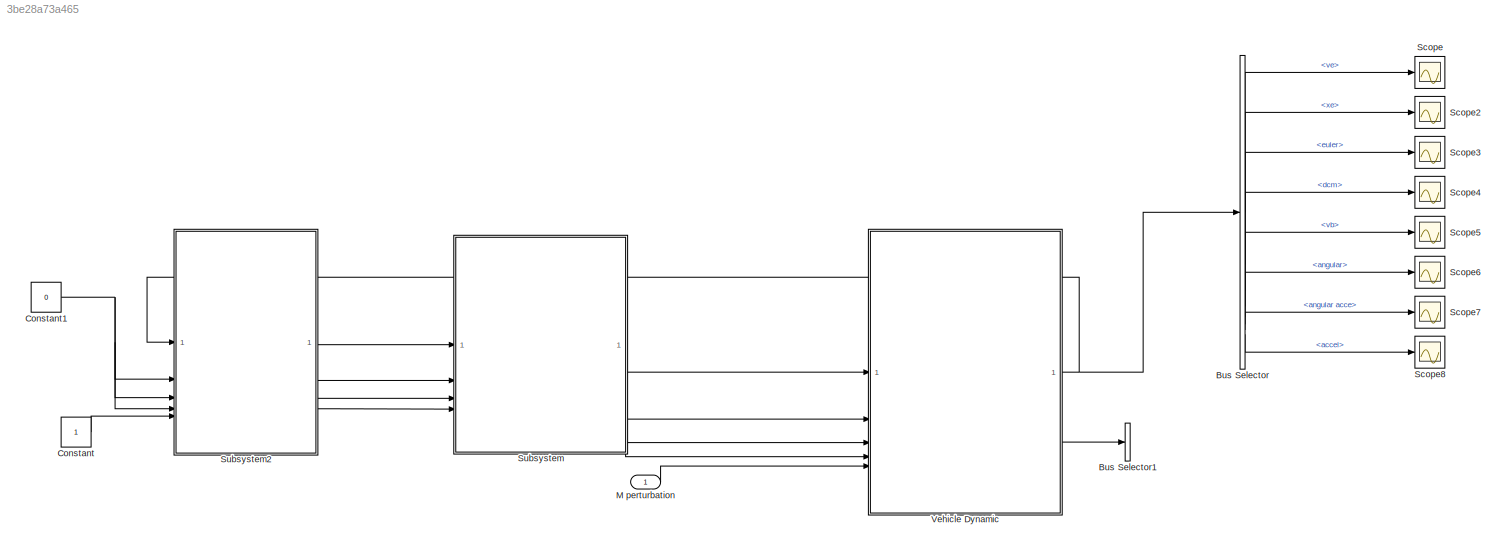
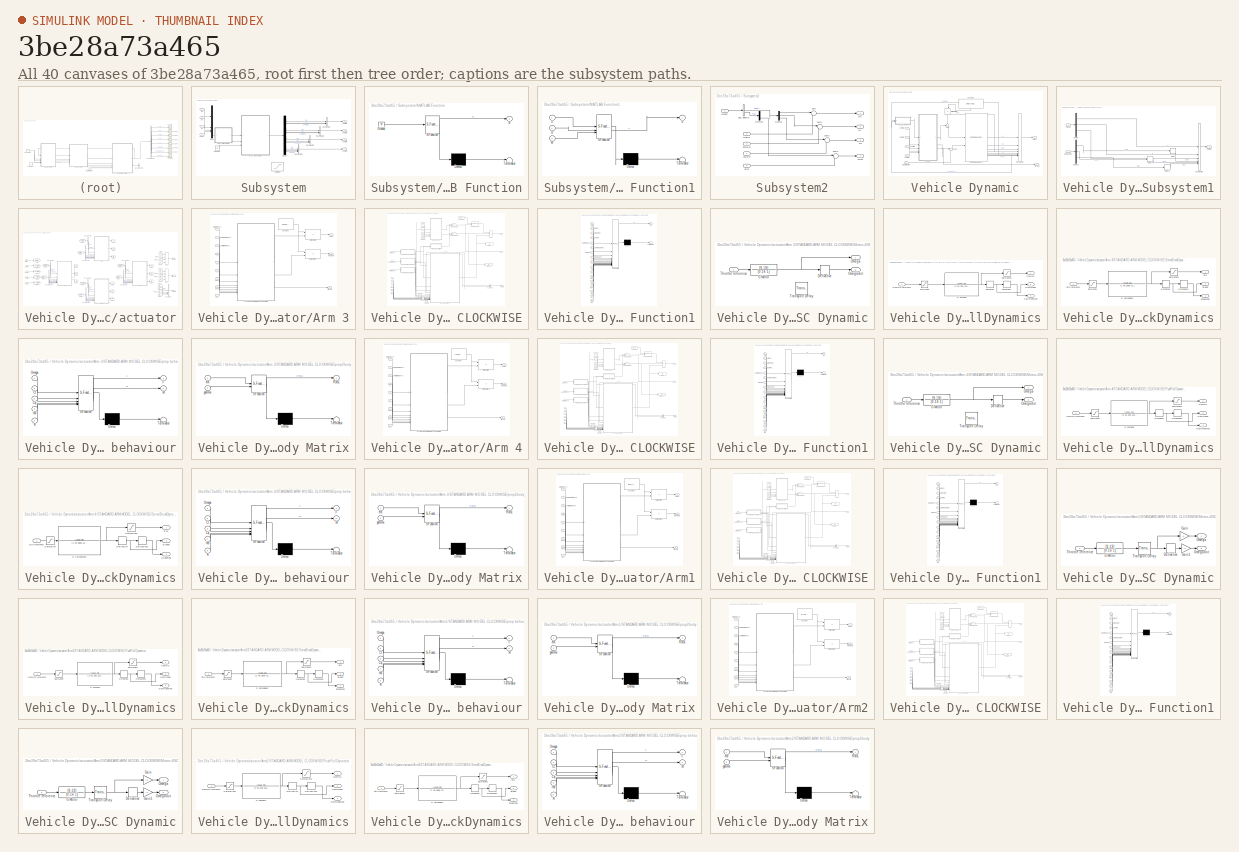
[diagram: thumbnail index - all 40 canvases of the model, root first then tree order]
MODEL slx_3be28a73a465
KIND model
CONFIG AbsTol = auto
CONFIG EnableMultiTasking = off
CONFIG FixedStep = auto
CONFIG MaxStep = auto
CONFIG MinStep = auto
CONFIG RelTol = 1e-4
CONFIG SampleTimeConstraint = Unconstrained
CONFIG SolverName = ode15s
CONFIG StartTime = 0.0
CONFIG StopTime = 10
BLOCK [BusSelector] Bus Selector
  OutputSignals = ve,xe,euler,dcm,vb,angular,angular acce,accel
BLOCK [BusSelector] Bus Selector1
  OutputSignals = signal1,signal2
BLOCK [Constant] Constant
BLOCK [Constant] Constant1
  Value = 0
BLOCK [Inport] M perturbation
BLOCK [Scope] Scope
  ActiveDisplayYMaximum = 158.14211469770717
  ActiveDisplayYMinimum = -12.600361564793616
  Floating = off
  GraphicalSettings = {"AxesScalingProperties":{"AlignXAxis":"Center","AlignYAxis":"Center","AutoScaleXAxisLimits":false,"AxesScaling":"Manual","AxesScalingNumUpdates":10,"ExpandOnly":true,"ScaleAxesLimitsAtStop":false,"XAxisDataRange":100,"YAxisDataRange":80},"DisplayProperties":{"ColorOrder":["auto","auto","auto","auto","auto","auto","auto","auto","auto","auto","auto","auto","auto","auto","auto","auto","auto","auto",...<+2136ch>
  MultipleDisplayCache = [{"MaxYLimMag":202.34980101644618,"MaxYLimReal":158.14211469770717,"MinYLimMag":0,"MinYLimReal":-12.600361564793616,"PlotAsMagnitudePhase":false,"ShowGrid":true,"ShowLegend":false,"Title":"%<SignalLabel>","YLabel":""}]
  NumInputPorts = 1
  ScopeFrameLocation = window
  WasSavedAsWebScope = on
  WindowPosition = [680.000000,330.000000,560.000000,420.000000,]
BLOCK [Scope] Scope2
  ActiveDisplayYMaximum = 2044.3378889341363
  ActiveDisplayYMinimum = -253.65470239682742
  DataLoggingVariableName = ScopeData2
  Floating = off
  GraphicalSettings = {"Style":{"BackgroundColor":[0.12941176470588237,0.12941176470588237,0.12941176470588237],"AxesColor":[0.07058823529411765,0.07058823529411765,0.07058823529411765],"LabelsColor":[0.8509803921568627,0.8509803921568627,0.8509803921568627],"PreserveColors":false,"Visible":[true,true,true],"LineStyle":["-","-","-"],"LineWidth":[1.5,1.5,1.5],"BarWidth":[0.9,0.9,0.9],"LineColor":["auto","auto","auto"],"...<+2125ch>
  MultipleDisplayCache = [{"MaxYLimMag":2044.3378889341363,"MaxYLimReal":2044.3378889341363,"MinYLimMag":0,"MinYLimReal":-253.65470239682742,"PlotAsMagnitudePhase":false,"ShowGrid":true,"ShowLegend":false,"Title":"%<SignalLabel>","YLabel":""}]
  NumInputPorts = 1
  ScopeFrameLocation = window
  WasSavedAsWebScope = on
  WindowPosition = [680.000000,330.000000,560.000000,420.000000,]
BLOCK [Scope] Scope3
  ActiveDisplayYMaximum = 3.6702175311661223
  ActiveDisplayYMinimum = -3.8093227520417652
  DataLoggingVariableName = ScopeData3
  Floating = off
  GraphicalSettings = {"Style":{"BackgroundColor":[0.12941176470588237,0.12941176470588237,0.12941176470588237],"AxesColor":[0.07058823529411765,0.07058823529411765,0.07058823529411765],"LabelsColor":[0.8509803921568627,0.8509803921568627,0.8509803921568627],"PreserveColors":false,"Visible":[true,true,true],"LineStyle":["-","-","-"],"LineWidth":[1.5,1.5,1.5],"BarWidth":[0.9,0.9,0.9],"LineColor":["auto","auto","auto"],"...<+2898ch>
  LayoutDimensionsString = [3,1]
  MultipleDisplayCache = [{"MaxYLimMag":3.9268151152617832,"MaxYLimReal":3.6702175311661223,"MinYLimMag":0,"MinYLimReal":-3.8093227520417652,"PlotAsMagnitudePhase":false,"ShowGrid":true,"ShowLegend":false,"Title":"%<SignalLabel>","YLabel":""},{"MaxYLimMag":3.9268151152617832,"MaxYLimReal":4.1551881420035155,"MinYLimMag":0,"MinYLimReal":-6.8954993664615714,"PlotAsMagnitudePhase":false,"ShowGrid":true,"ShowLegend":false,"Ti...<+252ch>
  NumInputPorts = 1
  ScopeFrameLocation = window
  WasSavedAsWebScope = on
  WindowPosition = [679.000000,368.000000,560.000000,420.000000,]
BLOCK [Scope] Scope4
  ActiveDisplayYMaximum = 1.3036985575111188
  ActiveDisplayYMinimum = -1.6887966568785009
  DataLoggingVariableName = ScopeData4
  Floating = off
  GraphicalSettings = {"AxesScalingProperties":{"AlignXAxis":"Center","AlignYAxis":"Center","AutoScaleXAxisLimits":false,"AxesScaling":"Manual","AxesScalingNumUpdates":10,"ExpandOnly":true,"ScaleAxesLimitsAtStop":false,"XAxisDataRange":100,"YAxisDataRange":80},"DisplayProperties":{"ColorOrder":["auto","auto","auto","auto","auto","auto","auto","auto","auto","auto","auto","auto","auto","auto","auto","auto","auto","auto",...<+2802ch>
  MultipleDisplayCache = [{"MaxYLimMag":1.2499994652867144,"MaxYLimReal":1.3036985575111188,"MinYLimMag":0,"MinYLimReal":-1.6887966568785009,"PlotAsMagnitudePhase":false,"ShowGrid":true,"ShowLegend":false,"Title":"%<SignalLabel>","YLabel":""}]
  NumInputPorts = 1
  ScopeFrameLocation = window
  WasSavedAsWebScope = on
  WindowPosition = [680.000000,330.000000,560.000000,420.000000,]
BLOCK [Scope] Scope5
  ActiveDisplayYMaximum = 175.32388672860668
  ActiveDisplayYMinimum = -51.9670542151825
  DataLoggingVariableName = ScopeData5
  Floating = off
  GraphicalSettings = {"AxesScalingProperties":{"AlignXAxis":"Center","AlignYAxis":"Center","AutoScaleXAxisLimits":false,"AxesScaling":"Manual","AxesScalingNumUpdates":10,"ExpandOnly":true,"ScaleAxesLimitsAtStop":false,"XAxisDataRange":100,"YAxisDataRange":80},"DisplayProperties":{"ColorOrder":["auto","auto","auto","auto","auto","auto","auto","auto","auto","auto","auto","auto","auto","auto","auto","auto","auto","auto",...<+2136ch>
  MultipleDisplayCache = [{"MaxYLimMag":201.99280584973,"MaxYLimReal":175.32388672860668,"MinYLimMag":0,"MinYLimReal":-51.9670542151825,"PlotAsMagnitudePhase":false,"ShowGrid":true,"ShowLegend":false,"Title":"%<SignalLabel>","YLabel":""}]
  NumInputPorts = 1
  ScopeFrameLocation = window
  WasSavedAsWebScope = on
  WindowPosition = [680.000000,330.000000,560.000000,420.000000,]
BLOCK [Scope] Scope6
  ActiveDisplayYMaximum = 1
  ActiveDisplayYMinimum = -1
  DataLoggingVariableName = ScopeData6
  Floating = off
  GraphicalSettings = {"Style":{"BackgroundColor":[0.12941176470588237,0.12941176470588237,0.12941176470588237],"AxesColor":[0.07058823529411765,0.07058823529411765,0.07058823529411765],"LabelsColor":[0.8509803921568627,0.8509803921568627,0.8509803921568627],"PreserveColors":false,"Visible":[true,true,true],"LineStyle":["-","-","-"],"LineWidth":[1.5,1.5,1.5],"BarWidth":[0.9,0.9,0.9],"LineColor":["auto","auto","auto"],"...<+2247ch>
  MultipleDisplayCache = [{"MaxYLimMag":1,"MaxYLimReal":1,"MinYLimMag":0,"MinYLimReal":-1,"PlotAsMagnitudePhase":false,"ShowGrid":true,"ShowLegend":false,"Title":"%<SignalLabel>","YLabel":""}]
  NumInputPorts = 1
  ScopeFrameLocation = window
  WasSavedAsWebScope = on
  WindowPosition = [680.000000,330.000000,560.000000,420.000000,]
BLOCK [Scope] Scope7
  DataLoggingVariableName = ScopeData7
  Floating = off
  GraphicalSettings = {"GraphicalSettings":{"LegacySettings":true,"Style":{"Style":{"PlotType":"Auto"}}}}
  NumInputPorts = 1
  WasSavedAsWebScope = on
BLOCK [Scope] Scope8
  DataLoggingVariableName = ScopeData8
  Floating = off
  GraphicalSettings = {"GraphicalSettings":{"LegacySettings":true,"Style":{"Style":{"PlotType":"Auto"}}}}
  NumInputPorts = 1
  WasSavedAsWebScope = on
BLOCK [SubSystem] Subsystem
BLOCK [BusCreator] Subsystem/Bus Creator
  DisplayOption = bar
  InheritFromInputs = on
  Inputs = 3
BLOCK [BusCreator] Subsystem/Bus Creator1
  DisplayOption = bar
  InheritFromInputs = on
  Inputs = 3
BLOCK [BusCreator] Subsystem/Bus Creator2
  DisplayOption = bar
  InheritFromInputs = on
  Inputs = 3
BLOCK [BusCreator] Subsystem/Bus Creator3
  DisplayOption = bar
  InheritFromInputs = on
  Inputs = 3
BLOCK [Constant] Subsystem/Constant
  Value = W
BLOCK [Demux] Subsystem/Demux
  Outputs = 12
BLOCK [SubSystem] Subsystem/MATLAB Function
  ErrorFcn = Stateflow.Translate.translate
  PermitHierarchicalResolution = ExplicitOnly
  SFBlockType = MATLAB Function
  TreatAsAtomicUnit = on
BLOCK [Demux] Subsystem/MATLAB Function/ Demux 
  Outputs = 1
BLOCK [Ground] Subsystem/MATLAB Function/ Ground 
BLOCK [S-Function] Subsystem/MATLAB Function/ SFunction 
  EnableBusSupport = off
  FunctionName = sf_sfun
  PortCounts = [1 2]
  SFcnIsStateOwnerBlock = off
  SFunctionDeploymentMode = off
  Tag = Stateflow S-Function 13
BLOCK [Terminator] Subsystem/MATLAB Function/ Terminator 
BLOCK [Outport] Subsystem/MATLAB Function/B
BLOCK [SubSystem] Subsystem/MATLAB Function1
  ErrorFcn = Stateflow.Translate.translate
  PermitHierarchicalResolution = ExplicitOnly
  SFBlockType = MATLAB Function
  TreatAsAtomicUnit = on
BLOCK [Demux] Subsystem/MATLAB Function1/ Demux 
  Outputs = 1
BLOCK [S-Function] Subsystem/MATLAB Function1/ SFunction 
  EnableBusSupport = off
  FunctionName = sf_sfun
  PortCounts = [3 2]
  SFcnIsStateOwnerBlock = off
  SFunctionDeploymentMode = off
  Tag = Stateflow S-Function 14
BLOCK [Terminator] Subsystem/MATLAB Function1/ Terminator 
BLOCK [Inport] Subsystem/MATLAB Function1/B
  Port = 2
BLOCK [Inport] Subsystem/MATLAB Function1/W
  Port = 3
BLOCK [Outport] Subsystem/MATLAB Function1/u
BLOCK [Inport] Subsystem/MATLAB Function1/v
BLOCK [Mux] Subsystem/Mux4
  DisplayOption = bar
BLOCK [Inport] Subsystem/Mx
BLOCK [Inport] Subsystem/My
  Port = 2
BLOCK [Inport] Subsystem/Mz
  Port = 3
BLOCK [Saturate] Subsystem/Saturation
  LowerLimit = [0 -30*pi/180 -0.2  0 -30*pi/180 -0.2  0 -30*pi/180 -0.2  0 -30*pi/180 -0.2]
  UpperLimit = [1  30*pi/180  0.2  1  30*pi/180  0.2  1  30*pi/180  0.2  1  30*pi/180  0.2]
BLOCK [Inport] Subsystem/Thrust
  Port = 4
BLOCK [Outport] Subsystem/control1
BLOCK [Outport] Subsystem/control2
  Port = 2
BLOCK [Outport] Subsystem/control3
  Port = 3
BLOCK [Outport] Subsystem/control4
  Port = 4
BLOCK [SubSystem] Subsystem2
BLOCK [BusSelector] Subsystem2/Bus Selector
  OutputSignals = euler,xe
BLOCK [Demux] Subsystem2/Demux
  Outputs = 3
BLOCK [Demux] Subsystem2/Demux1
  Outputs = 3
BLOCK [Inport] Subsystem2/Motion
BLOCK [Outport] Subsystem2/Mx
BLOCK [Outport] Subsystem2/My
  Port = 2
BLOCK [Outport] Subsystem2/Mz
  Port = 3
BLOCK [Inport] Subsystem2/PitchRef
  Port = 3
BLOCK [Inport] Subsystem2/RollRef
  Port = 2
BLOCK [Sum] Subsystem2/Sum
  Inputs = |-+
BLOCK [Sum] Subsystem2/Sum1
  Inputs = |-+
BLOCK [Sum] Subsystem2/Sum2
  Inputs = |-+
BLOCK [Sum] Subsystem2/Sum3
  Inputs = |-+
BLOCK [Outport] Subsystem2/Thrust
  Port = 4
BLOCK [Inport] Subsystem2/YawRef
  Port = 4
BLOCK [Inport] Subsystem2/ZRef
  Port = 5
BLOCK [SubSystem] Vehicle Dynamic
BLOCK [Reference] Vehicle Dynamic/6DOF (Euler Angles)  REF=aerolibobsolete/6DOF (Euler Angles)
  SourceBlock = aerolibobsolete/6DOF (Euler Angles)
  SourceType = 6DOF EoM (Body Axis)
BLOCK [BusCreator] Vehicle Dynamic/Bus Creator
  DisplayOption = bar
  InheritFromInputs = on
  Inputs = 8
BLOCK [Constant] Vehicle Dynamic/Constant
  NameLocation = left
  Value = [0 0 g*AUM]'
BLOCK [Inport] Vehicle Dynamic/M perturbation
  Port = 5
BLOCK [Product] Vehicle Dynamic/Matrix Multiply
  Multiplication = Matrix(*)
  NameLocation = left
BLOCK [Outport] Vehicle Dynamic/Motion
BLOCK [SubSystem] Vehicle Dynamic/Subsystem1
BLOCK [BusCreator] Vehicle Dynamic/Subsystem1/Bus Creator
  DisplayOption = bar
  InheritFromInputs = on
  Inputs = 6
BLOCK [Delay] Vehicle Dynamic/Subsystem1/Delay
  InputPortMap = u0
BLOCK [Delay] Vehicle Dynamic/Subsystem1/Delay1
  InputPortMap = u0
BLOCK [Delay] Vehicle Dynamic/Subsystem1/Delay2
  InputPortMap = u0
BLOCK [Demux] Vehicle Dynamic/Subsystem1/Demux
  Outputs = 3
BLOCK [Demux] Vehicle Dynamic/Subsystem1/Demux1
  Outputs = 3
BLOCK [Outport] Vehicle Dynamic/Subsystem1/Rotation
BLOCK [Inport] Vehicle Dynamic/Subsystem1/omega
BLOCK [Inport] Vehicle Dynamic/Subsystem1/omegadot
  Port = 2
BLOCK [Sum] Vehicle Dynamic/Sum
  Inputs = ++|
BLOCK [Sum] Vehicle Dynamic/Sum1
  Inputs = |++
BLOCK [Outport] Vehicle Dynamic/TiltAngle
  Port = 2
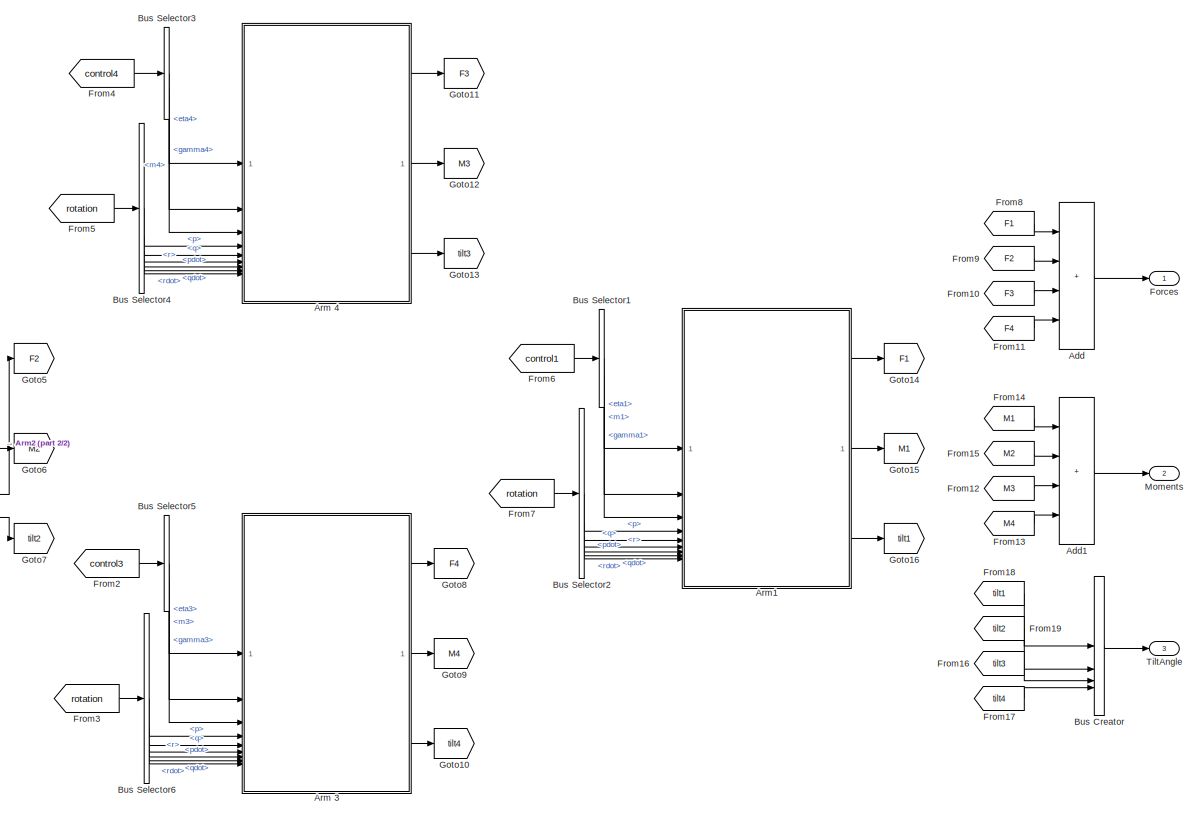
[diagram: Vehicle Dynamic/actuator - part 1/2, center side, full height]
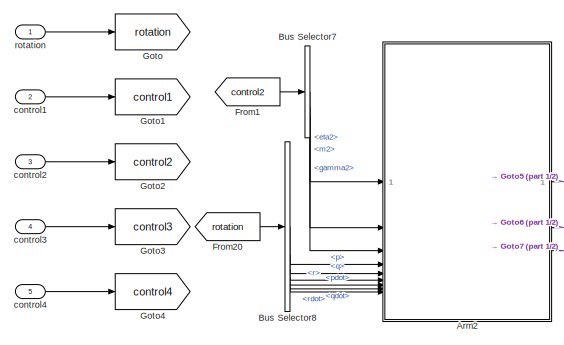
[diagram: Vehicle Dynamic/actuator - part 2/2, middle left region]
BLOCK [SubSystem] Vehicle Dynamic/actuator
BLOCK [Sum] Vehicle Dynamic/actuator/Add
  IconShape = rectangular
  Inputs = ++++
BLOCK [Sum] Vehicle Dynamic/actuator/Add1
  IconShape = rectangular
  Inputs = ++++
BLOCK [SubSystem] Vehicle Dynamic/actuator/Arm 3
BLOCK [Constant] Vehicle Dynamic/actuator/Arm 3/Constant
  Value = [1 0 0; 0 1 0; 0 0 1]
BLOCK [Inport] Vehicle Dynamic/actuator/Arm 3/Eta reference
BLOCK [Outport] Vehicle Dynamic/actuator/Arm 3/Force
BLOCK [Inport] Vehicle Dynamic/actuator/Arm 3/Gamma reference
  Port = 2
BLOCK [Product] Vehicle Dynamic/actuator/Arm 3/Matrix Multiply
  Multiplication = Matrix(*)
BLOCK [Product] Vehicle Dynamic/actuator/Arm 3/Matrix Multiply1
  Multiplication = Matrix(*)
BLOCK [Outport] Vehicle Dynamic/actuator/Arm 3/Moments
  Port = 2
BLOCK [SubSystem] Vehicle Dynamic/actuator/Arm 3/STANDARD ARM MODEL CLOCKWISE
BLOCK [Reference] Vehicle Dynamic/actuator/Arm 3/STANDARD ARM MODEL CLOCKWISE/3x3 Cross Product  REF=sharedutil/3x3 Cross Product
  LibrarySourceBlock = aerolibutil/3x3 Cross Product
  SourceBlock = sharedutil/3x3 Cross Product
  SourceType = CrossProduct
BLOCK [Sum] Vehicle Dynamic/actuator/Arm 3/STANDARD ARM MODEL CLOCKWISE/Add
  IconShape = rectangular
  Inputs = +++
BLOCK [BusCreator] Vehicle Dynamic/actuator/Arm 3/STANDARD ARM MODEL CLOCKWISE/Bus Creator
  DisplayOption = bar
  InheritFromInputs = on
  Inputs = 2
BLOCK [Constant] Vehicle Dynamic/actuator/Arm 3/STANDARD ARM MODEL CLOCKWISE/Constant
  Value = Ct
BLOCK [Constant] Vehicle Dynamic/actuator/Arm 3/STANDARD ARM MODEL CLOCKWISE/Constant1
  Value = Cq
BLOCK [Constant] Vehicle Dynamic/actuator/Arm 3/STANDARD ARM MODEL CLOCKWISE/Constant2
  Value = [0 L -H]
BLOCK [Constant] Vehicle Dynamic/actuator/Arm 3/STANDARD ARM MODEL CLOCKWISE/Constant3
  Value = Ixx
BLOCK [Constant] Vehicle Dynamic/actuator/Arm 3/STANDARD ARM MODEL CLOCKWISE/Constant4
  Value = Iyy
BLOCK [Constant] Vehicle Dynamic/actuator/Arm 3/STANDARD ARM MODEL CLOCKWISE/Constant5
  Value = Izz
BLOCK [Constant] Vehicle Dynamic/actuator/Arm 3/STANDARD ARM MODEL CLOCKWISE/Density
  Value = rho
BLOCK [Display] Vehicle Dynamic/actuator/Arm 3/STANDARD ARM MODEL CLOCKWISE/Display
  Decimation = 1
BLOCK [Display] Vehicle Dynamic/actuator/Arm 3/STANDARD ARM MODEL CLOCKWISE/Display1
  Decimation = 1
BLOCK [Inport] Vehicle Dynamic/actuator/Arm 3/STANDARD ARM MODEL CLOCKWISE/Eta reference
BLOCK [Outport] Vehicle Dynamic/actuator/Arm 3/STANDARD ARM MODEL CLOCKWISE/F
BLOCK [Product] Vehicle Dynamic/actuator/Arm 3/STANDARD ARM MODEL CLOCKWISE/Force Transform
  Multiplication = Matrix(*)
BLOCK [Inport] Vehicle Dynamic/actuator/Arm 3/STANDARD ARM MODEL CLOCKWISE/Gamma reference
  Port = 2
BLOCK [Outport] Vehicle Dynamic/actuator/Arm 3/STANDARD ARM MODEL CLOCKWISE/M
  Port = 2
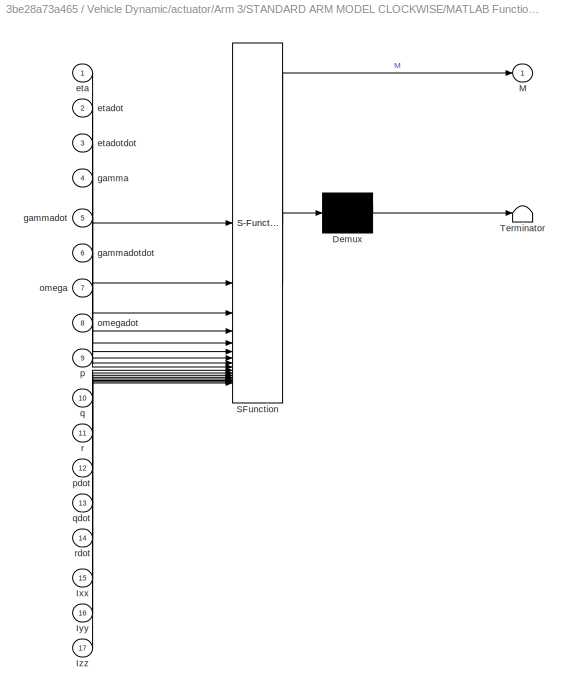
BLOCK [SubSystem] Vehicle Dynamic/actuator/Arm 3/STANDARD ARM MODEL CLOCKWISE/MATLAB Function1
  ErrorFcn = Stateflow.Translate.translate
  PermitHierarchicalResolution = ExplicitOnly
  SFBlockType = MATLAB Function
  TreatAsAtomicUnit = on
BLOCK [Demux] Vehicle Dynamic/actuator/Arm 3/STANDARD ARM MODEL CLOCKWISE/MATLAB Function1/ Demux 
  Outputs = 1
BLOCK [S-Function] Vehicle Dynamic/actuator/Arm 3/STANDARD ARM MODEL CLOCKWISE/MATLAB Function1/ SFunction 
  EnableBusSupport = off
  FunctionName = sf_sfun
  PortCounts = [17 2]
  SFcnIsStateOwnerBlock = off
  SFunctionDeploymentMode = off
  Tag = Stateflow S-Function 4
BLOCK [Terminator] Vehicle Dynamic/actuator/Arm 3/STANDARD ARM MODEL CLOCKWISE/MATLAB Function1/ Terminator 
BLOCK [Inport] Vehicle Dynamic/actuator/Arm 3/STANDARD ARM MODEL CLOCKWISE/MATLAB Function1/Ixx
  Port = 15
BLOCK [Inport] Vehicle Dynamic/actuator/Arm 3/STANDARD ARM MODEL CLOCKWISE/MATLAB Function1/Iyy
  Port = 16
BLOCK [Inport] Vehicle Dynamic/actuator/Arm 3/STANDARD ARM MODEL CLOCKWISE/MATLAB Function1/Izz
  Port = 17
BLOCK [Outport] Vehicle Dynamic/actuator/Arm 3/STANDARD ARM MODEL CLOCKWISE/MATLAB Function1/M
BLOCK [Inport] Vehicle Dynamic/actuator/Arm 3/STANDARD ARM MODEL CLOCKWISE/MATLAB Function1/eta
BLOCK [Inport] Vehicle Dynamic/actuator/Arm 3/STANDARD ARM MODEL CLOCKWISE/MATLAB Function1/etadot
  Port = 2
BLOCK [Inport] Vehicle Dynamic/actuator/Arm 3/STANDARD ARM MODEL CLOCKWISE/MATLAB Function1/etadotdot
  Port = 3
BLOCK [Inport] Vehicle Dynamic/actuator/Arm 3/STANDARD ARM MODEL CLOCKWISE/MATLAB Function1/gamma
  Port = 4
BLOCK [Inport] Vehicle Dynamic/actuator/Arm 3/STANDARD ARM MODEL CLOCKWISE/MATLAB Function1/gammadot
  Port = 5
BLOCK [Inport] Vehicle Dynamic/actuator/Arm 3/STANDARD ARM MODEL CLOCKWISE/MATLAB Function1/gammadotdot
  Port = 6
BLOCK [Inport] Vehicle Dynamic/actuator/Arm 3/STANDARD ARM MODEL CLOCKWISE/MATLAB Function1/omega
  Port = 7
BLOCK [Inport] Vehicle Dynamic/actuator/Arm 3/STANDARD ARM MODEL CLOCKWISE/MATLAB Function1/omegadot
  Port = 8
BLOCK [Inport] Vehicle Dynamic/actuator/Arm 3/STANDARD ARM MODEL CLOCKWISE/MATLAB Function1/p
  Port = 9
BLOCK [Inport] Vehicle Dynamic/actuator/Arm 3/STANDARD ARM MODEL CLOCKWISE/MATLAB Function1/pdot
  Port = 12
BLOCK [Inport] Vehicle Dynamic/actuator/Arm 3/STANDARD ARM MODEL CLOCKWISE/MATLAB Function1/q
  Port = 10
BLOCK [Inport] Vehicle Dynamic/actuator/Arm 3/STANDARD ARM MODEL CLOCKWISE/MATLAB Function1/qdot
  Port = 13
BLOCK [Inport] Vehicle Dynamic/actuator/Arm 3/STANDARD ARM MODEL CLOCKWISE/MATLAB Function1/r
  Port = 11
BLOCK [Inport] Vehicle Dynamic/actuator/Arm 3/STANDARD ARM MODEL CLOCKWISE/MATLAB Function1/rdot
  Port = 14
BLOCK [Product] Vehicle Dynamic/actuator/Arm 3/STANDARD ARM MODEL CLOCKWISE/Moment Transform
  Multiplication = Matrix(*)
BLOCK [SubSystem] Vehicle Dynamic/actuator/Arm 3/STANDARD ARM MODEL CLOCKWISE/Motor+ESC Dynamic
BLOCK [Derivative] Vehicle Dynamic/actuator/Arm 3/STANDARD ARM MODEL CLOCKWISE/Motor+ESC Dynamic/Derivative
BLOCK [TransferFcn] Vehicle Dynamic/actuator/Arm 3/STANDARD ARM MODEL CLOCKWISE/Motor+ESC Dynamic/G Motor
  Denominator = [0.16 1]
  Numerator = [9.19]
BLOCK [Outport] Vehicle Dynamic/actuator/Arm 3/STANDARD ARM MODEL CLOCKWISE/Motor+ESC Dynamic/Omega
BLOCK [Outport] Vehicle Dynamic/actuator/Arm 3/STANDARD ARM MODEL CLOCKWISE/Motor+ESC Dynamic/Omegadot
  Port = 2
BLOCK [Inport] Vehicle Dynamic/actuator/Arm 3/STANDARD ARM MODEL CLOCKWISE/Motor+ESC Dynamic/Throttle reference
BLOCK [TransportDelay] Vehicle Dynamic/actuator/Arm 3/STANDARD ARM MODEL CLOCKWISE/Motor+ESC Dynamic/Transport Delay
  DelayTime = 0.035
BLOCK [Constant] Vehicle Dynamic/actuator/Arm 3/STANDARD ARM MODEL CLOCKWISE/Prop radius
  Value = R_rad
BLOCK [SubSystem] Vehicle Dynamic/actuator/Arm 3/STANDARD ARM MODEL CLOCKWISE/PushPullDynamics
BLOCK [Derivative] Vehicle Dynamic/actuator/Arm 3/STANDARD ARM MODEL CLOCKWISE/PushPullDynamics/Derivative
BLOCK [Derivative] Vehicle Dynamic/actuator/Arm 3/STANDARD ARM MODEL CLOCKWISE/PushPullDynamics/Derivative1
BLOCK [TransferFcn] Vehicle Dynamic/actuator/Arm 3/STANDARD ARM MODEL CLOCKWISE/PushPullDynamics/G pushpull
  Denominator = [1 51.105 1212.73]
  Numerator = [1212.73]
BLOCK [Outport] Vehicle Dynamic/actuator/Arm 3/STANDARD ARM MODEL CLOCKWISE/PushPullDynamics/Gamma
BLOCK [Inport] Vehicle Dynamic/actuator/Arm 3/STANDARD ARM MODEL CLOCKWISE/PushPullDynamics/Gamma reference
BLOCK [Outport] Vehicle Dynamic/actuator/Arm 3/STANDARD ARM MODEL CLOCKWISE/PushPullDynamics/Gammadot
  Port = 2
BLOCK [Outport] Vehicle Dynamic/actuator/Arm 3/STANDARD ARM MODEL CLOCKWISE/PushPullDynamics/Gammadotdot
  Port = 3
BLOCK [Saturate] Vehicle Dynamic/actuator/Arm 3/STANDARD ARM MODEL CLOCKWISE/PushPullDynamics/Saturation
  LowerLimit = -pi/9
  UpperLimit = pi/9
BLOCK [Saturate] Vehicle Dynamic/actuator/Arm 3/STANDARD ARM MODEL CLOCKWISE/PushPullDynamics/Saturation1
  LowerLimit = -pi/9
  UpperLimit = pi/9
BLOCK [SubSystem] Vehicle Dynamic/actuator/Arm 3/STANDARD ARM MODEL CLOCKWISE/ServoBlockDynamics
BLOCK [Derivative] Vehicle Dynamic/actuator/Arm 3/STANDARD ARM MODEL CLOCKWISE/ServoBlockDynamics/Derivative
BLOCK [Derivative] Vehicle Dynamic/actuator/Arm 3/STANDARD ARM MODEL CLOCKWISE/ServoBlockDynamics/Derivative1
BLOCK [Outport] Vehicle Dynamic/actuator/Arm 3/STANDARD ARM MODEL CLOCKWISE/ServoBlockDynamics/Eta
BLOCK [Inport] Vehicle Dynamic/actuator/Arm 3/STANDARD ARM MODEL CLOCKWISE/ServoBlockDynamics/Eta reference
BLOCK [Outport] Vehicle Dynamic/actuator/Arm 3/STANDARD ARM MODEL CLOCKWISE/ServoBlockDynamics/Etadot
  Port = 2
BLOCK [Outport] Vehicle Dynamic/actuator/Arm 3/STANDARD ARM MODEL CLOCKWISE/ServoBlockDynamics/Etadotdot
  Port = 3
BLOCK [TransferFcn] Vehicle Dynamic/actuator/Arm 3/STANDARD ARM MODEL CLOCKWISE/ServoBlockDynamics/G Servoblock
  Denominator = [1 49.1806 1228.05]
  Numerator = [1228.05]
BLOCK [Saturate] Vehicle Dynamic/actuator/Arm 3/STANDARD ARM MODEL CLOCKWISE/ServoBlockDynamics/Saturation
  LowerLimit = -pi/9
  UpperLimit = pi/9
BLOCK [Saturate] Vehicle Dynamic/actuator/Arm 3/STANDARD ARM MODEL CLOCKWISE/ServoBlockDynamics/Saturation1
  LowerLimit = -pi/9
  UpperLimit = pi/9
BLOCK [Inport] Vehicle Dynamic/actuator/Arm 3/STANDARD ARM MODEL CLOCKWISE/Throttle reference
  Port = 3
BLOCK [Outport] Vehicle Dynamic/actuator/Arm 3/STANDARD ARM MODEL CLOCKWISE/TiltAngle
  Port = 3
BLOCK [Inport] Vehicle Dynamic/actuator/Arm 3/STANDARD ARM MODEL CLOCKWISE/p
  Port = 4
BLOCK [Inport] Vehicle Dynamic/actuator/Arm 3/STANDARD ARM MODEL CLOCKWISE/pdot
  Port = 7
BLOCK [SubSystem] Vehicle Dynamic/actuator/Arm 3/STANDARD ARM MODEL CLOCKWISE/prop behaviour
  ErrorFcn = Stateflow.Translate.translate
  PermitHierarchicalResolution = ExplicitOnly
  SFBlockType = MATLAB Function
  TreatAsAtomicUnit = on
BLOCK [Demux] Vehicle Dynamic/actuator/Arm 3/STANDARD ARM MODEL CLOCKWISE/prop behaviour/ Demux 
  Outputs = 1
BLOCK [S-Function] Vehicle Dynamic/actuator/Arm 3/STANDARD ARM MODEL CLOCKWISE/prop behaviour/ SFunction 
  EnableBusSupport = off
  FunctionName = sf_sfun
  PortCounts = [5 3]
  SFcnIsStateOwnerBlock = off
  SFunctionDeploymentMode = off
  Tag = Stateflow S-Function 5
BLOCK [Terminator] Vehicle Dynamic/actuator/Arm 3/STANDARD ARM MODEL CLOCKWISE/prop behaviour/ Terminator 
BLOCK [Inport] Vehicle Dynamic/actuator/Arm 3/STANDARD ARM MODEL CLOCKWISE/prop behaviour/Cq
  Port = 3
BLOCK [Inport] Vehicle Dynamic/actuator/Arm 3/STANDARD ARM MODEL CLOCKWISE/prop behaviour/Ct
  Port = 2
BLOCK [Outport] Vehicle Dynamic/actuator/Arm 3/STANDARD ARM MODEL CLOCKWISE/prop behaviour/F
BLOCK [Outport] Vehicle Dynamic/actuator/Arm 3/STANDARD ARM MODEL CLOCKWISE/prop behaviour/M
  Port = 2
BLOCK [Inport] Vehicle Dynamic/actuator/Arm 3/STANDARD ARM MODEL CLOCKWISE/prop behaviour/Omega
BLOCK [Inport] Vehicle Dynamic/actuator/Arm 3/STANDARD ARM MODEL CLOCKWISE/prop behaviour/R
  Port = 5
BLOCK [Inport] Vehicle Dynamic/actuator/Arm 3/STANDARD ARM MODEL CLOCKWISE/prop behaviour/rho
  Port = 4
BLOCK [SubSystem] Vehicle Dynamic/actuator/Arm 3/STANDARD ARM MODEL CLOCKWISE/prop2body Matrix
  ErrorFcn = Stateflow.Translate.translate
  PermitHierarchicalResolution = ExplicitOnly
  SFBlockType = MATLAB Function
  TreatAsAtomicUnit = on
BLOCK [Demux] Vehicle Dynamic/actuator/Arm 3/STANDARD ARM MODEL CLOCKWISE/prop2body Matrix/ Demux 
  Outputs = 1
BLOCK [S-Function] Vehicle Dynamic/actuator/Arm 3/STANDARD ARM MODEL CLOCKWISE/prop2body Matrix/ SFunction 
  EnableBusSupport = off
  FunctionName = sf_sfun
  PortCounts = [2 2]
  SFcnIsStateOwnerBlock = off
  SFunctionDeploymentMode = off
  Tag = Stateflow S-Function 6
BLOCK [Terminator] Vehicle Dynamic/actuator/Arm 3/STANDARD ARM MODEL CLOCKWISE/prop2body Matrix/ Terminator 
BLOCK [Outport] Vehicle Dynamic/actuator/Arm 3/STANDARD ARM MODEL CLOCKWISE/prop2body Matrix/R3to1
BLOCK [Inport] Vehicle Dynamic/actuator/Arm 3/STANDARD ARM MODEL CLOCKWISE/prop2body Matrix/eta
BLOCK [Inport] Vehicle Dynamic/actuator/Arm 3/STANDARD ARM MODEL CLOCKWISE/prop2body Matrix/gamma
  Port = 2
BLOCK [Inport] Vehicle Dynamic/actuator/Arm 3/STANDARD ARM MODEL CLOCKWISE/q
  Port = 5
BLOCK [Inport] Vehicle Dynamic/actuator/Arm 3/STANDARD ARM MODEL CLOCKWISE/qdot
  Port = 8
BLOCK [Inport] Vehicle Dynamic/actuator/Arm 3/STANDARD ARM MODEL CLOCKWISE/r
  Port = 6
BLOCK [Inport] Vehicle Dynamic/actuator/Arm 3/STANDARD ARM MODEL CLOCKWISE/rdot
  Port = 9
BLOCK [Inport] Vehicle Dynamic/actuator/Arm 3/Throttle reference
  Port = 3
BLOCK [Outport] Vehicle Dynamic/actuator/Arm 3/TiltAngle
  Port = 3
BLOCK [Inport] Vehicle Dynamic/actuator/Arm 3/p
  Port = 4
BLOCK [Inport] Vehicle Dynamic/actuator/Arm 3/pdot
  Port = 7
BLOCK [Inport] Vehicle Dynamic/actuator/Arm 3/q
  Port = 5
BLOCK [Inport] Vehicle Dynamic/actuator/Arm 3/qdot
  Port = 8
BLOCK [Inport] Vehicle Dynamic/actuator/Arm 3/r
  Port = 6
BLOCK [Inport] Vehicle Dynamic/actuator/Arm 3/rdot
  Port = 9
BLOCK [SubSystem] Vehicle Dynamic/actuator/Arm 4
BLOCK [Constant] Vehicle Dynamic/actuator/Arm 4/Constant
  Value = [-1 0 0;0 -1 0; 0 0 1]
BLOCK [Inport] Vehicle Dynamic/actuator/Arm 4/Eta reference
BLOCK [Outport] Vehicle Dynamic/actuator/Arm 4/Force
BLOCK [Inport] Vehicle Dynamic/actuator/Arm 4/Gamma reference
  Port = 2
BLOCK [Product] Vehicle Dynamic/actuator/Arm 4/Matrix Multiply
  Multiplication = Matrix(*)
BLOCK [Product] Vehicle Dynamic/actuator/Arm 4/Matrix Multiply1
  Multiplication = Matrix(*)
BLOCK [Outport] Vehicle Dynamic/actuator/Arm 4/Moments
  Port = 2
BLOCK [SubSystem] Vehicle Dynamic/actuator/Arm 4/STANDARD ARM MODEL CLOCKWISE
BLOCK [Reference] Vehicle Dynamic/actuator/Arm 4/STANDARD ARM MODEL CLOCKWISE/3x3 Cross Product  REF=sharedutil/3x3 Cross Product
  LibrarySourceBlock = aerolibutil/3x3 Cross Product
  SourceBlock = sharedutil/3x3 Cross Product
  SourceType = CrossProduct
BLOCK [Sum] Vehicle Dynamic/actuator/Arm 4/STANDARD ARM MODEL CLOCKWISE/Add
  IconShape = rectangular
  Inputs = +++
BLOCK [BusCreator] Vehicle Dynamic/actuator/Arm 4/STANDARD ARM MODEL CLOCKWISE/Bus Creator
  DisplayOption = bar
  InheritFromInputs = on
  Inputs = 2
BLOCK [Constant] Vehicle Dynamic/actuator/Arm 4/STANDARD ARM MODEL CLOCKWISE/Constant
  Value = Ct
BLOCK [Constant] Vehicle Dynamic/actuator/Arm 4/STANDARD ARM MODEL CLOCKWISE/Constant1
  Value = Cq
BLOCK [Constant] Vehicle Dynamic/actuator/Arm 4/STANDARD ARM MODEL CLOCKWISE/Constant2
  Value = [0 L -H]'
BLOCK [Constant] Vehicle Dynamic/actuator/Arm 4/STANDARD ARM MODEL CLOCKWISE/Constant3
  Value = Ixx
BLOCK [Constant] Vehicle Dynamic/actuator/Arm 4/STANDARD ARM MODEL CLOCKWISE/Constant4
  Value = Iyy
BLOCK [Constant] Vehicle Dynamic/actuator/Arm 4/STANDARD ARM MODEL CLOCKWISE/Constant5
  Value = Izz
BLOCK [Constant] Vehicle Dynamic/actuator/Arm 4/STANDARD ARM MODEL CLOCKWISE/Density
  Value = rho
BLOCK [Display] Vehicle Dynamic/actuator/Arm 4/STANDARD ARM MODEL CLOCKWISE/Display
  Decimation = 1
BLOCK [Display] Vehicle Dynamic/actuator/Arm 4/STANDARD ARM MODEL CLOCKWISE/Display1
  Decimation = 1
BLOCK [Inport] Vehicle Dynamic/actuator/Arm 4/STANDARD ARM MODEL CLOCKWISE/Eta reference
BLOCK [Outport] Vehicle Dynamic/actuator/Arm 4/STANDARD ARM MODEL CLOCKWISE/F
BLOCK [Product] Vehicle Dynamic/actuator/Arm 4/STANDARD ARM MODEL CLOCKWISE/Force Transform
  Multiplication = Matrix(*)
BLOCK [Inport] Vehicle Dynamic/actuator/Arm 4/STANDARD ARM MODEL CLOCKWISE/Gamma reference
  Port = 2
BLOCK [Outport] Vehicle Dynamic/actuator/Arm 4/STANDARD ARM MODEL CLOCKWISE/M
  Port = 2
BLOCK [SubSystem] Vehicle Dynamic/actuator/Arm 4/STANDARD ARM MODEL CLOCKWISE/MATLAB Function1
  ErrorFcn = Stateflow.Translate.translate
  PermitHierarchicalResolution = ExplicitOnly
  SFBlockType = MATLAB Function
  TreatAsAtomicUnit = on
BLOCK [Demux] Vehicle Dynamic/actuator/Arm 4/STANDARD ARM MODEL CLOCKWISE/MATLAB Function1/ Demux 
  Outputs = 1
BLOCK [S-Function] Vehicle Dynamic/actuator/Arm 4/STANDARD ARM MODEL CLOCKWISE/MATLAB Function1/ SFunction 
  EnableBusSupport = off
  FunctionName = sf_sfun
  PortCounts = [17 2]
  SFcnIsStateOwnerBlock = off
  SFunctionDeploymentMode = off
  Tag = Stateflow S-Function 7
BLOCK [Terminator] Vehicle Dynamic/actuator/Arm 4/STANDARD ARM MODEL CLOCKWISE/MATLAB Function1/ Terminator 
BLOCK [Inport] Vehicle Dynamic/actuator/Arm 4/STANDARD ARM MODEL CLOCKWISE/MATLAB Function1/Ixx
  Port = 15
BLOCK [Inport] Vehicle Dynamic/actuator/Arm 4/STANDARD ARM MODEL CLOCKWISE/MATLAB Function1/Iyy
  Port = 16
BLOCK [Inport] Vehicle Dynamic/actuator/Arm 4/STANDARD ARM MODEL CLOCKWISE/MATLAB Function1/Izz
  Port = 17
BLOCK [Outport] Vehicle Dynamic/actuator/Arm 4/STANDARD ARM MODEL CLOCKWISE/MATLAB Function1/M
BLOCK [Inport] Vehicle Dynamic/actuator/Arm 4/STANDARD ARM MODEL CLOCKWISE/MATLAB Function1/eta
BLOCK [Inport] Vehicle Dynamic/actuator/Arm 4/STANDARD ARM MODEL CLOCKWISE/MATLAB Function1/etadot
  Port = 2
BLOCK [Inport] Vehicle Dynamic/actuator/Arm 4/STANDARD ARM MODEL CLOCKWISE/MATLAB Function1/etadotdot
  Port = 3
BLOCK [Inport] Vehicle Dynamic/actuator/Arm 4/STANDARD ARM MODEL CLOCKWISE/MATLAB Function1/gamma
  Port = 4
BLOCK [Inport] Vehicle Dynamic/actuator/Arm 4/STANDARD ARM MODEL CLOCKWISE/MATLAB Function1/gammadot
  Port = 5
BLOCK [Inport] Vehicle Dynamic/actuator/Arm 4/STANDARD ARM MODEL CLOCKWISE/MATLAB Function1/gammadotdot
  Port = 6
BLOCK [Inport] Vehicle Dynamic/actuator/Arm 4/STANDARD ARM MODEL CLOCKWISE/MATLAB Function1/omega
  Port = 7
BLOCK [Inport] Vehicle Dynamic/actuator/Arm 4/STANDARD ARM MODEL CLOCKWISE/MATLAB Function1/omegadot
  Port = 8
BLOCK [Inport] Vehicle Dynamic/actuator/Arm 4/STANDARD ARM MODEL CLOCKWISE/MATLAB Function1/p
  Port = 9
BLOCK [Inport] Vehicle Dynamic/actuator/Arm 4/STANDARD ARM MODEL CLOCKWISE/MATLAB Function1/pdot
  Port = 12
BLOCK [Inport] Vehicle Dynamic/actuator/Arm 4/STANDARD ARM MODEL CLOCKWISE/MATLAB Function1/q
  Port = 10
BLOCK [Inport] Vehicle Dynamic/actuator/Arm 4/STANDARD ARM MODEL CLOCKWISE/MATLAB Function1/qdot
  Port = 13
BLOCK [Inport] Vehicle Dynamic/actuator/Arm 4/STANDARD ARM MODEL CLOCKWISE/MATLAB Function1/r
  Port = 11
BLOCK [Inport] Vehicle Dynamic/actuator/Arm 4/STANDARD ARM MODEL CLOCKWISE/MATLAB Function1/rdot
  Port = 14
BLOCK [Product] Vehicle Dynamic/actuator/Arm 4/STANDARD ARM MODEL CLOCKWISE/Moment Transform
  Multiplication = Matrix(*)
BLOCK [SubSystem] Vehicle Dynamic/actuator/Arm 4/STANDARD ARM MODEL CLOCKWISE/Motor+ESC Dynamic
BLOCK [Derivative] Vehicle Dynamic/actuator/Arm 4/STANDARD ARM MODEL CLOCKWISE/Motor+ESC Dynamic/Derivative
BLOCK [TransferFcn] Vehicle Dynamic/actuator/Arm 4/STANDARD ARM MODEL CLOCKWISE/Motor+ESC Dynamic/G Motor
  Denominator = [0.16 1]
  Numerator = [9.19]
BLOCK [Outport] Vehicle Dynamic/actuator/Arm 4/STANDARD ARM MODEL CLOCKWISE/Motor+ESC Dynamic/Omega
BLOCK [Outport] Vehicle Dynamic/actuator/Arm 4/STANDARD ARM MODEL CLOCKWISE/Motor+ESC Dynamic/Omegadot
  Port = 2
BLOCK [Inport] Vehicle Dynamic/actuator/Arm 4/STANDARD ARM MODEL CLOCKWISE/Motor+ESC Dynamic/Throttle reference
BLOCK [TransportDelay] Vehicle Dynamic/actuator/Arm 4/STANDARD ARM MODEL CLOCKWISE/Motor+ESC Dynamic/Transport Delay
  DelayTime = 0.035
BLOCK [Constant] Vehicle Dynamic/actuator/Arm 4/STANDARD ARM MODEL CLOCKWISE/Prop radius
  Value = R_rad
BLOCK [SubSystem] Vehicle Dynamic/actuator/Arm 4/STANDARD ARM MODEL CLOCKWISE/PushPullDynamics
BLOCK [Derivative] Vehicle Dynamic/actuator/Arm 4/STANDARD ARM MODEL CLOCKWISE/PushPullDynamics/Derivative
BLOCK [Derivative] Vehicle Dynamic/actuator/Arm 4/STANDARD ARM MODEL CLOCKWISE/PushPullDynamics/Derivative1
BLOCK [TransferFcn] Vehicle Dynamic/actuator/Arm 4/STANDARD ARM MODEL CLOCKWISE/PushPullDynamics/G pushpull
  Denominator = [1 51.105 1212.73]
  Numerator = [1212.73]
BLOCK [Outport] Vehicle Dynamic/actuator/Arm 4/STANDARD ARM MODEL CLOCKWISE/PushPullDynamics/Gamma
BLOCK [Inport] Vehicle Dynamic/actuator/Arm 4/STANDARD ARM MODEL CLOCKWISE/PushPullDynamics/Gamma reference
BLOCK [Outport] Vehicle Dynamic/actuator/Arm 4/STANDARD ARM MODEL CLOCKWISE/PushPullDynamics/Gammadot
  Port = 2
BLOCK [Outport] Vehicle Dynamic/actuator/Arm 4/STANDARD ARM MODEL CLOCKWISE/PushPullDynamics/Gammadotdot
  Port = 3
BLOCK [Saturate] Vehicle Dynamic/actuator/Arm 4/STANDARD ARM MODEL CLOCKWISE/PushPullDynamics/Saturation
  LowerLimit = -pi/9
  UpperLimit = pi/9
BLOCK [Saturate] Vehicle Dynamic/actuator/Arm 4/STANDARD ARM MODEL CLOCKWISE/PushPullDynamics/Saturation1
  LowerLimit = -pi/9
  UpperLimit = pi/9
BLOCK [SubSystem] Vehicle Dynamic/actuator/Arm 4/STANDARD ARM MODEL CLOCKWISE/ServoBlockDynamics
BLOCK [Derivative] Vehicle Dynamic/actuator/Arm 4/STANDARD ARM MODEL CLOCKWISE/ServoBlockDynamics/Derivative
BLOCK [Derivative] Vehicle Dynamic/actuator/Arm 4/STANDARD ARM MODEL CLOCKWISE/ServoBlockDynamics/Derivative1
BLOCK [Outport] Vehicle Dynamic/actuator/Arm 4/STANDARD ARM MODEL CLOCKWISE/ServoBlockDynamics/Eta
BLOCK [Inport] Vehicle Dynamic/actuator/Arm 4/STANDARD ARM MODEL CLOCKWISE/ServoBlockDynamics/Eta reference
BLOCK [Outport] Vehicle Dynamic/actuator/Arm 4/STANDARD ARM MODEL CLOCKWISE/ServoBlockDynamics/Etadot
  Port = 2
BLOCK [Outport] Vehicle Dynamic/actuator/Arm 4/STANDARD ARM MODEL CLOCKWISE/ServoBlockDynamics/Etadotdot
  Port = 3
BLOCK [TransferFcn] Vehicle Dynamic/actuator/Arm 4/STANDARD ARM MODEL CLOCKWISE/ServoBlockDynamics/G Servoblock
  Denominator = [1 49.1806 1228.05]
  Numerator = [1228.05]
BLOCK [Saturate] Vehicle Dynamic/actuator/Arm 4/STANDARD ARM MODEL CLOCKWISE/ServoBlockDynamics/Saturation
  LowerLimit = -pi/9
  UpperLimit = pi/9
BLOCK [Saturate] Vehicle Dynamic/actuator/Arm 4/STANDARD ARM MODEL CLOCKWISE/ServoBlockDynamics/Saturation1
  LowerLimit = -pi/9
  UpperLimit = pi/9
BLOCK [Inport] Vehicle Dynamic/actuator/Arm 4/STANDARD ARM MODEL CLOCKWISE/Throttle reference
  Port = 3
BLOCK [Outport] Vehicle Dynamic/actuator/Arm 4/STANDARD ARM MODEL CLOCKWISE/TiltAngle
  Port = 3
BLOCK [Inport] Vehicle Dynamic/actuator/Arm 4/STANDARD ARM MODEL CLOCKWISE/p
  Port = 4
BLOCK [Inport] Vehicle Dynamic/actuator/Arm 4/STANDARD ARM MODEL CLOCKWISE/pdot
  Port = 7
BLOCK [SubSystem] Vehicle Dynamic/actuator/Arm 4/STANDARD ARM MODEL CLOCKWISE/prop behaviour
  ErrorFcn = Stateflow.Translate.translate
  PermitHierarchicalResolution = ExplicitOnly
  SFBlockType = MATLAB Function
  TreatAsAtomicUnit = on
BLOCK [Demux] Vehicle Dynamic/actuator/Arm 4/STANDARD ARM MODEL CLOCKWISE/prop behaviour/ Demux 
  Outputs = 1
BLOCK [S-Function] Vehicle Dynamic/actuator/Arm 4/STANDARD ARM MODEL CLOCKWISE/prop behaviour/ SFunction 
  EnableBusSupport = off
  FunctionName = sf_sfun
  PortCounts = [5 3]
  SFcnIsStateOwnerBlock = off
  SFunctionDeploymentMode = off
  Tag = Stateflow S-Function 8
BLOCK [Terminator] Vehicle Dynamic/actuator/Arm 4/STANDARD ARM MODEL CLOCKWISE/prop behaviour/ Terminator 
BLOCK [Inport] Vehicle Dynamic/actuator/Arm 4/STANDARD ARM MODEL CLOCKWISE/prop behaviour/Cq
  Port = 3
BLOCK [Inport] Vehicle Dynamic/actuator/Arm 4/STANDARD ARM MODEL CLOCKWISE/prop behaviour/Ct
  Port = 2
BLOCK [Outport] Vehicle Dynamic/actuator/Arm 4/STANDARD ARM MODEL CLOCKWISE/prop behaviour/F
BLOCK [Outport] Vehicle Dynamic/actuator/Arm 4/STANDARD ARM MODEL CLOCKWISE/prop behaviour/M
  Port = 2
BLOCK [Inport] Vehicle Dynamic/actuator/Arm 4/STANDARD ARM MODEL CLOCKWISE/prop behaviour/Omega
BLOCK [Inport] Vehicle Dynamic/actuator/Arm 4/STANDARD ARM MODEL CLOCKWISE/prop behaviour/R
  Port = 5
BLOCK [Inport] Vehicle Dynamic/actuator/Arm 4/STANDARD ARM MODEL CLOCKWISE/prop behaviour/rho
  Port = 4
BLOCK [SubSystem] Vehicle Dynamic/actuator/Arm 4/STANDARD ARM MODEL CLOCKWISE/prop2body Matrix
  ErrorFcn = Stateflow.Translate.translate
  PermitHierarchicalResolution = ExplicitOnly
  SFBlockType = MATLAB Function
  TreatAsAtomicUnit = on
BLOCK [Demux] Vehicle Dynamic/actuator/Arm 4/STANDARD ARM MODEL CLOCKWISE/prop2body Matrix/ Demux 
  Outputs = 1
BLOCK [S-Function] Vehicle Dynamic/actuator/Arm 4/STANDARD ARM MODEL CLOCKWISE/prop2body Matrix/ SFunction 
  EnableBusSupport = off
  FunctionName = sf_sfun
  PortCounts = [2 2]
  SFcnIsStateOwnerBlock = off
  SFunctionDeploymentMode = off
  Tag = Stateflow S-Function 9
BLOCK [Terminator] Vehicle Dynamic/actuator/Arm 4/STANDARD ARM MODEL CLOCKWISE/prop2body Matrix/ Terminator 
BLOCK [Outport] Vehicle Dynamic/actuator/Arm 4/STANDARD ARM MODEL CLOCKWISE/prop2body Matrix/R3to1
BLOCK [Inport] Vehicle Dynamic/actuator/Arm 4/STANDARD ARM MODEL CLOCKWISE/prop2body Matrix/eta
BLOCK [Inport] Vehicle Dynamic/actuator/Arm 4/STANDARD ARM MODEL CLOCKWISE/prop2body Matrix/gamma
  Port = 2
BLOCK [Inport] Vehicle Dynamic/actuator/Arm 4/STANDARD ARM MODEL CLOCKWISE/q
  Port = 5
BLOCK [Inport] Vehicle Dynamic/actuator/Arm 4/STANDARD ARM MODEL CLOCKWISE/qdot
  Port = 8
BLOCK [Inport] Vehicle Dynamic/actuator/Arm 4/STANDARD ARM MODEL CLOCKWISE/r
  Port = 6
BLOCK [Inport] Vehicle Dynamic/actuator/Arm 4/STANDARD ARM MODEL CLOCKWISE/rdot
  Port = 9
BLOCK [Inport] Vehicle Dynamic/actuator/Arm 4/Throttle reference
  Port = 3
BLOCK [Outport] Vehicle Dynamic/actuator/Arm 4/TiltAngle
  Port = 3
BLOCK [Inport] Vehicle Dynamic/actuator/Arm 4/p
  Port = 4
BLOCK [Inport] Vehicle Dynamic/actuator/Arm 4/pdot
  Port = 7
BLOCK [Inport] Vehicle Dynamic/actuator/Arm 4/q
  Port = 5
BLOCK [Inport] Vehicle Dynamic/actuator/Arm 4/qdot
  Port = 8
BLOCK [Inport] Vehicle Dynamic/actuator/Arm 4/r
  Port = 6
BLOCK [Inport] Vehicle Dynamic/actuator/Arm 4/rdot
  Port = 9
BLOCK [SubSystem] Vehicle Dynamic/actuator/Arm1
BLOCK [Constant] Vehicle Dynamic/actuator/Arm1/Constant
  Value = [0 1 0; -1 0 0; 0 0 1]
BLOCK [Inport] Vehicle Dynamic/actuator/Arm1/Eta reference
BLOCK [Outport] Vehicle Dynamic/actuator/Arm1/Force
BLOCK [Inport] Vehicle Dynamic/actuator/Arm1/Gamma reference
  Port = 2
BLOCK [Product] Vehicle Dynamic/actuator/Arm1/Matrix Multiply
  Multiplication = Matrix(*)
BLOCK [Product] Vehicle Dynamic/actuator/Arm1/Matrix Multiply1
  Multiplication = Matrix(*)
BLOCK [Outport] Vehicle Dynamic/actuator/Arm1/Moments
  Port = 2
BLOCK [SubSystem] Vehicle Dynamic/actuator/Arm1/STANDARD ARM MODEL CLOCKWISE
BLOCK [Reference] Vehicle Dynamic/actuator/Arm1/STANDARD ARM MODEL CLOCKWISE/3x3 Cross Product  REF=sharedutil/3x3 Cross Product
  LibrarySourceBlock = aerolibutil/3x3 Cross Product
  SourceBlock = sharedutil/3x3 Cross Product
  SourceType = CrossProduct
BLOCK [Sum] Vehicle Dynamic/actuator/Arm1/STANDARD ARM MODEL CLOCKWISE/Add
  IconShape = rectangular
  Inputs = +++
BLOCK [BusCreator] Vehicle Dynamic/actuator/Arm1/STANDARD ARM MODEL CLOCKWISE/Bus Creator
  DisplayOption = bar
  InheritFromInputs = on
  Inputs = 2
BLOCK [Constant] Vehicle Dynamic/actuator/Arm1/STANDARD ARM MODEL CLOCKWISE/Constant
  Value = Ct
BLOCK [Constant] Vehicle Dynamic/actuator/Arm1/STANDARD ARM MODEL CLOCKWISE/Constant1
  Value = Cq
BLOCK [Constant] Vehicle Dynamic/actuator/Arm1/STANDARD ARM MODEL CLOCKWISE/Constant2
  Value = [0 L -H]
BLOCK [Constant] Vehicle Dynamic/actuator/Arm1/STANDARD ARM MODEL CLOCKWISE/Constant3
  Value = Ixx
BLOCK [Constant] Vehicle Dynamic/actuator/Arm1/STANDARD ARM MODEL CLOCKWISE/Constant4
  Value = Iyy
BLOCK [Constant] Vehicle Dynamic/actuator/Arm1/STANDARD ARM MODEL CLOCKWISE/Constant5
  Value = Izz
BLOCK [Constant] Vehicle Dynamic/actuator/Arm1/STANDARD ARM MODEL CLOCKWISE/Density
  Value = rho
BLOCK [Display] Vehicle Dynamic/actuator/Arm1/STANDARD ARM MODEL CLOCKWISE/Display
  Decimation = 1
BLOCK [Display] Vehicle Dynamic/actuator/Arm1/STANDARD ARM MODEL CLOCKWISE/Display1
  Decimation = 1
BLOCK [Inport] Vehicle Dynamic/actuator/Arm1/STANDARD ARM MODEL CLOCKWISE/Eta reference
BLOCK [Outport] Vehicle Dynamic/actuator/Arm1/STANDARD ARM MODEL CLOCKWISE/F
BLOCK [Product] Vehicle Dynamic/actuator/Arm1/STANDARD ARM MODEL CLOCKWISE/Force Transform
  Multiplication = Matrix(*)
BLOCK [Inport] Vehicle Dynamic/actuator/Arm1/STANDARD ARM MODEL CLOCKWISE/Gamma reference
  Port = 2
BLOCK [Outport] Vehicle Dynamic/actuator/Arm1/STANDARD ARM MODEL CLOCKWISE/M
  Port = 2
BLOCK [SubSystem] Vehicle Dynamic/actuator/Arm1/STANDARD ARM MODEL CLOCKWISE/MATLAB Function1
  ErrorFcn = Stateflow.Translate.translate
  PermitHierarchicalResolution = ExplicitOnly
  SFBlockType = MATLAB Function
  TreatAsAtomicUnit = on
BLOCK [Demux] Vehicle Dynamic/actuator/Arm1/STANDARD ARM MODEL CLOCKWISE/MATLAB Function1/ Demux 
  Outputs = 1
BLOCK [S-Function] Vehicle Dynamic/actuator/Arm1/STANDARD ARM MODEL CLOCKWISE/MATLAB Function1/ SFunction 
  EnableBusSupport = off
  FunctionName = sf_sfun
  PortCounts = [17 2]
  SFcnIsStateOwnerBlock = off
  SFunctionDeploymentMode = off
  Tag = Stateflow S-Function 10
BLOCK [Terminator] Vehicle Dynamic/actuator/Arm1/STANDARD ARM MODEL CLOCKWISE/MATLAB Function1/ Terminator 
BLOCK [Inport] Vehicle Dynamic/actuator/Arm1/STANDARD ARM MODEL CLOCKWISE/MATLAB Function1/Ixx
  Port = 15
BLOCK [Inport] Vehicle Dynamic/actuator/Arm1/STANDARD ARM MODEL CLOCKWISE/MATLAB Function1/Iyy
  Port = 16
BLOCK [Inport] Vehicle Dynamic/actuator/Arm1/STANDARD ARM MODEL CLOCKWISE/MATLAB Function1/Izz
  Port = 17
BLOCK [Outport] Vehicle Dynamic/actuator/Arm1/STANDARD ARM MODEL CLOCKWISE/MATLAB Function1/M
BLOCK [Inport] Vehicle Dynamic/actuator/Arm1/STANDARD ARM MODEL CLOCKWISE/MATLAB Function1/eta
BLOCK [Inport] Vehicle Dynamic/actuator/Arm1/STANDARD ARM MODEL CLOCKWISE/MATLAB Function1/etadot
  Port = 2
BLOCK [Inport] Vehicle Dynamic/actuator/Arm1/STANDARD ARM MODEL CLOCKWISE/MATLAB Function1/etadotdot
  Port = 3
BLOCK [Inport] Vehicle Dynamic/actuator/Arm1/STANDARD ARM MODEL CLOCKWISE/MATLAB Function1/gamma
  Port = 4
BLOCK [Inport] Vehicle Dynamic/actuator/Arm1/STANDARD ARM MODEL CLOCKWISE/MATLAB Function1/gammadot
  Port = 5
BLOCK [Inport] Vehicle Dynamic/actuator/Arm1/STANDARD ARM MODEL CLOCKWISE/MATLAB Function1/gammadotdot
  Port = 6
BLOCK [Inport] Vehicle Dynamic/actuator/Arm1/STANDARD ARM MODEL CLOCKWISE/MATLAB Function1/omega
  Port = 7
BLOCK [Inport] Vehicle Dynamic/actuator/Arm1/STANDARD ARM MODEL CLOCKWISE/MATLAB Function1/omegadot
  Port = 8
BLOCK [Inport] Vehicle Dynamic/actuator/Arm1/STANDARD ARM MODEL CLOCKWISE/MATLAB Function1/p
  Port = 9
BLOCK [Inport] Vehicle Dynamic/actuator/Arm1/STANDARD ARM MODEL CLOCKWISE/MATLAB Function1/pdot
  Port = 12
BLOCK [Inport] Vehicle Dynamic/actuator/Arm1/STANDARD ARM MODEL CLOCKWISE/MATLAB Function1/q
  Port = 10
BLOCK [Inport] Vehicle Dynamic/actuator/Arm1/STANDARD ARM MODEL CLOCKWISE/MATLAB Function1/qdot
  Port = 13
BLOCK [Inport] Vehicle Dynamic/actuator/Arm1/STANDARD ARM MODEL CLOCKWISE/MATLAB Function1/r
  Port = 11
BLOCK [Inport] Vehicle Dynamic/actuator/Arm1/STANDARD ARM MODEL CLOCKWISE/MATLAB Function1/rdot
  Port = 14
BLOCK [Product] Vehicle Dynamic/actuator/Arm1/STANDARD ARM MODEL CLOCKWISE/Moment Transform
  Multiplication = Matrix(*)
BLOCK [SubSystem] Vehicle Dynamic/actuator/Arm1/STANDARD ARM MODEL CLOCKWISE/Motor+ESC Dynamic
BLOCK [Derivative] Vehicle Dynamic/actuator/Arm1/STANDARD ARM MODEL CLOCKWISE/Motor+ESC Dynamic/Derivative
BLOCK [TransferFcn] Vehicle Dynamic/actuator/Arm1/STANDARD ARM MODEL CLOCKWISE/Motor+ESC Dynamic/G Motor
  Denominator = [0.16 1]
  Numerator = [9.19]
BLOCK [Gain] Vehicle Dynamic/actuator/Arm1/STANDARD ARM MODEL CLOCKWISE/Motor+ESC Dynamic/Gain
  Gain = -1
BLOCK [Gain] Vehicle Dynamic/actuator/Arm1/STANDARD ARM MODEL CLOCKWISE/Motor+ESC Dynamic/Gain1
  Gain = -1
BLOCK [Outport] Vehicle Dynamic/actuator/Arm1/STANDARD ARM MODEL CLOCKWISE/Motor+ESC Dynamic/Omega
BLOCK [Outport] Vehicle Dynamic/actuator/Arm1/STANDARD ARM MODEL CLOCKWISE/Motor+ESC Dynamic/Omegadot
  Port = 2
BLOCK [Inport] Vehicle Dynamic/actuator/Arm1/STANDARD ARM MODEL CLOCKWISE/Motor+ESC Dynamic/Throttle reference
BLOCK [TransportDelay] Vehicle Dynamic/actuator/Arm1/STANDARD ARM MODEL CLOCKWISE/Motor+ESC Dynamic/Transport Delay
  DelayTime = 0.035
BLOCK [Constant] Vehicle Dynamic/actuator/Arm1/STANDARD ARM MODEL CLOCKWISE/Prop radius
  Value = R_rad
BLOCK [SubSystem] Vehicle Dynamic/actuator/Arm1/STANDARD ARM MODEL CLOCKWISE/PushPullDynamics
BLOCK [Derivative] Vehicle Dynamic/actuator/Arm1/STANDARD ARM MODEL CLOCKWISE/PushPullDynamics/Derivative
BLOCK [Derivative] Vehicle Dynamic/actuator/Arm1/STANDARD ARM MODEL CLOCKWISE/PushPullDynamics/Derivative1
BLOCK [TransferFcn] Vehicle Dynamic/actuator/Arm1/STANDARD ARM MODEL CLOCKWISE/PushPullDynamics/G pushpull
  Denominator = [1 51.105 1212.73]
  Numerator = [1212.73]
BLOCK [Outport] Vehicle Dynamic/actuator/Arm1/STANDARD ARM MODEL CLOCKWISE/PushPullDynamics/Gamma
BLOCK [Inport] Vehicle Dynamic/actuator/Arm1/STANDARD ARM MODEL CLOCKWISE/PushPullDynamics/Gamma reference
BLOCK [Outport] Vehicle Dynamic/actuator/Arm1/STANDARD ARM MODEL CLOCKWISE/PushPullDynamics/Gammadot
  Port = 2
BLOCK [Outport] Vehicle Dynamic/actuator/Arm1/STANDARD ARM MODEL CLOCKWISE/PushPullDynamics/Gammadotdot
  Port = 3
BLOCK [Saturate] Vehicle Dynamic/actuator/Arm1/STANDARD ARM MODEL CLOCKWISE/PushPullDynamics/Saturation
  LowerLimit = -pi/9
  UpperLimit = pi/9
BLOCK [Saturate] Vehicle Dynamic/actuator/Arm1/STANDARD ARM MODEL CLOCKWISE/PushPullDynamics/Saturation1
  LowerLimit = -pi/9
  UpperLimit = pi/9
BLOCK [SubSystem] Vehicle Dynamic/actuator/Arm1/STANDARD ARM MODEL CLOCKWISE/ServoBlockDynamics
BLOCK [Derivative] Vehicle Dynamic/actuator/Arm1/STANDARD ARM MODEL CLOCKWISE/ServoBlockDynamics/Derivative
BLOCK [Derivative] Vehicle Dynamic/actuator/Arm1/STANDARD ARM MODEL CLOCKWISE/ServoBlockDynamics/Derivative1
BLOCK [Outport] Vehicle Dynamic/actuator/Arm1/STANDARD ARM MODEL CLOCKWISE/ServoBlockDynamics/Eta
BLOCK [Inport] Vehicle Dynamic/actuator/Arm1/STANDARD ARM MODEL CLOCKWISE/ServoBlockDynamics/Eta reference
BLOCK [Outport] Vehicle Dynamic/actuator/Arm1/STANDARD ARM MODEL CLOCKWISE/ServoBlockDynamics/Etadot
  Port = 2
BLOCK [Outport] Vehicle Dynamic/actuator/Arm1/STANDARD ARM MODEL CLOCKWISE/ServoBlockDynamics/Etadotdot
  Port = 3
BLOCK [TransferFcn] Vehicle Dynamic/actuator/Arm1/STANDARD ARM MODEL CLOCKWISE/ServoBlockDynamics/G Servoblock
  Denominator = [1 49.1806 1228.05]
  Numerator = [1228.05]
BLOCK [Saturate] Vehicle Dynamic/actuator/Arm1/STANDARD ARM MODEL CLOCKWISE/ServoBlockDynamics/Saturation
  LowerLimit = -pi/9
  UpperLimit = pi/9
BLOCK [Saturate] Vehicle Dynamic/actuator/Arm1/STANDARD ARM MODEL CLOCKWISE/ServoBlockDynamics/Saturation1
  LowerLimit = -pi/9
  UpperLimit = pi/9
BLOCK [Inport] Vehicle Dynamic/actuator/Arm1/STANDARD ARM MODEL CLOCKWISE/Throttle reference
  Port = 3
BLOCK [Outport] Vehicle Dynamic/actuator/Arm1/STANDARD ARM MODEL CLOCKWISE/TiltAngle
  Port = 3
BLOCK [Inport] Vehicle Dynamic/actuator/Arm1/STANDARD ARM MODEL CLOCKWISE/p
  Port = 4
BLOCK [Inport] Vehicle Dynamic/actuator/Arm1/STANDARD ARM MODEL CLOCKWISE/pdot
  Port = 7
BLOCK [SubSystem] Vehicle Dynamic/actuator/Arm1/STANDARD ARM MODEL CLOCKWISE/prop behaviour
  ErrorFcn = Stateflow.Translate.translate
  PermitHierarchicalResolution = ExplicitOnly
  SFBlockType = MATLAB Function
  TreatAsAtomicUnit = on
BLOCK [Demux] Vehicle Dynamic/actuator/Arm1/STANDARD ARM MODEL CLOCKWISE/prop behaviour/ Demux 
  Outputs = 1
BLOCK [S-Function] Vehicle Dynamic/actuator/Arm1/STANDARD ARM MODEL CLOCKWISE/prop behaviour/ SFunction 
  EnableBusSupport = off
  FunctionName = sf_sfun
  PortCounts = [5 3]
  SFcnIsStateOwnerBlock = off
  SFunctionDeploymentMode = off
  Tag = Stateflow S-Function 11
BLOCK [Terminator] Vehicle Dynamic/actuator/Arm1/STANDARD ARM MODEL CLOCKWISE/prop behaviour/ Terminator 
BLOCK [Inport] Vehicle Dynamic/actuator/Arm1/STANDARD ARM MODEL CLOCKWISE/prop behaviour/Cq
  Port = 3
BLOCK [Inport] Vehicle Dynamic/actuator/Arm1/STANDARD ARM MODEL CLOCKWISE/prop behaviour/Ct
  Port = 2
BLOCK [Outport] Vehicle Dynamic/actuator/Arm1/STANDARD ARM MODEL CLOCKWISE/prop behaviour/F
BLOCK [Outport] Vehicle Dynamic/actuator/Arm1/STANDARD ARM MODEL CLOCKWISE/prop behaviour/M
  Port = 2
BLOCK [Inport] Vehicle Dynamic/actuator/Arm1/STANDARD ARM MODEL CLOCKWISE/prop behaviour/Omega
BLOCK [Inport] Vehicle Dynamic/actuator/Arm1/STANDARD ARM MODEL CLOCKWISE/prop behaviour/R
  Port = 5
BLOCK [Inport] Vehicle Dynamic/actuator/Arm1/STANDARD ARM MODEL CLOCKWISE/prop behaviour/rho
  Port = 4
BLOCK [SubSystem] Vehicle Dynamic/actuator/Arm1/STANDARD ARM MODEL CLOCKWISE/prop2body Matrix
  ErrorFcn = Stateflow.Translate.translate
  PermitHierarchicalResolution = ExplicitOnly
  SFBlockType = MATLAB Function
  TreatAsAtomicUnit = on
BLOCK [Demux] Vehicle Dynamic/actuator/Arm1/STANDARD ARM MODEL CLOCKWISE/prop2body Matrix/ Demux 
  Outputs = 1
BLOCK [S-Function] Vehicle Dynamic/actuator/Arm1/STANDARD ARM MODEL CLOCKWISE/prop2body Matrix/ SFunction 
  EnableBusSupport = off
  FunctionName = sf_sfun
  PortCounts = [2 2]
  SFcnIsStateOwnerBlock = off
  SFunctionDeploymentMode = off
  Tag = Stateflow S-Function 12
BLOCK [Terminator] Vehicle Dynamic/actuator/Arm1/STANDARD ARM MODEL CLOCKWISE/prop2body Matrix/ Terminator 
BLOCK [Outport] Vehicle Dynamic/actuator/Arm1/STANDARD ARM MODEL CLOCKWISE/prop2body Matrix/R3to1
BLOCK [Inport] Vehicle Dynamic/actuator/Arm1/STANDARD ARM MODEL CLOCKWISE/prop2body Matrix/eta
BLOCK [Inport] Vehicle Dynamic/actuator/Arm1/STANDARD ARM MODEL CLOCKWISE/prop2body Matrix/gamma
  Port = 2
BLOCK [Inport] Vehicle Dynamic/actuator/Arm1/STANDARD ARM MODEL CLOCKWISE/q
  Port = 5
BLOCK [Inport] Vehicle Dynamic/actuator/Arm1/STANDARD ARM MODEL CLOCKWISE/qdot
  Port = 8
BLOCK [Inport] Vehicle Dynamic/actuator/Arm1/STANDARD ARM MODEL CLOCKWISE/r
  Port = 6
BLOCK [Inport] Vehicle Dynamic/actuator/Arm1/STANDARD ARM MODEL CLOCKWISE/rdot
  Port = 9
BLOCK [Inport] Vehicle Dynamic/actuator/Arm1/Throttle reference
  Port = 3
BLOCK [Outport] Vehicle Dynamic/actuator/Arm1/TiltAngle
  Port = 3
BLOCK [Inport] Vehicle Dynamic/actuator/Arm1/p
  Port = 4
BLOCK [Inport] Vehicle Dynamic/actuator/Arm1/pdot
  Port = 7
BLOCK [Inport] Vehicle Dynamic/actuator/Arm1/q
  Port = 5
BLOCK [Inport] Vehicle Dynamic/actuator/Arm1/qdot
  Port = 8
BLOCK [Inport] Vehicle Dynamic/actuator/Arm1/r
  Port = 6
BLOCK [Inport] Vehicle Dynamic/actuator/Arm1/rdot
  Port = 9
BLOCK [SubSystem] Vehicle Dynamic/actuator/Arm2
BLOCK [Constant] Vehicle Dynamic/actuator/Arm2/Constant
  Value = [0 -1 0; 1 0 0; 0 0 1]
BLOCK [Inport] Vehicle Dynamic/actuator/Arm2/Eta reference
BLOCK [Outport] Vehicle Dynamic/actuator/Arm2/Force
BLOCK [Inport] Vehicle Dynamic/actuator/Arm2/Gamma reference
  Port = 2
BLOCK [Product] Vehicle Dynamic/actuator/Arm2/Matrix Multiply
  Multiplication = Matrix(*)
BLOCK [Product] Vehicle Dynamic/actuator/Arm2/Matrix Multiply1
  Multiplication = Matrix(*)
BLOCK [Outport] Vehicle Dynamic/actuator/Arm2/Moments
  Port = 2
BLOCK [SubSystem] Vehicle Dynamic/actuator/Arm2/STANDARD ARM MODEL CLOCKWISE
BLOCK [Reference] Vehicle Dynamic/actuator/Arm2/STANDARD ARM MODEL CLOCKWISE/3x3 Cross Product  REF=sharedutil/3x3 Cross Product
  LibrarySourceBlock = aerolibutil/3x3 Cross Product
  SourceBlock = sharedutil/3x3 Cross Product
  SourceType = CrossProduct
BLOCK [Sum] Vehicle Dynamic/actuator/Arm2/STANDARD ARM MODEL CLOCKWISE/Add
  IconShape = rectangular
  Inputs = +++
BLOCK [BusCreator] Vehicle Dynamic/actuator/Arm2/STANDARD ARM MODEL CLOCKWISE/Bus Creator
  DisplayOption = bar
  InheritFromInputs = on
  Inputs = 2
BLOCK [Constant] Vehicle Dynamic/actuator/Arm2/STANDARD ARM MODEL CLOCKWISE/Constant
  Value = Ct
BLOCK [Constant] Vehicle Dynamic/actuator/Arm2/STANDARD ARM MODEL CLOCKWISE/Constant1
  Value = Cq
BLOCK [Constant] Vehicle Dynamic/actuator/Arm2/STANDARD ARM MODEL CLOCKWISE/Constant2
  Value = [0 L -H]
BLOCK [Constant] Vehicle Dynamic/actuator/Arm2/STANDARD ARM MODEL CLOCKWISE/Constant3
  Value = Ixx
BLOCK [Constant] Vehicle Dynamic/actuator/Arm2/STANDARD ARM MODEL CLOCKWISE/Constant4
  Value = Iyy
BLOCK [Constant] Vehicle Dynamic/actuator/Arm2/STANDARD ARM MODEL CLOCKWISE/Constant5
  Value = Izz
BLOCK [Constant] Vehicle Dynamic/actuator/Arm2/STANDARD ARM MODEL CLOCKWISE/Density
  Value = rho
BLOCK [Display] Vehicle Dynamic/actuator/Arm2/STANDARD ARM MODEL CLOCKWISE/Display
  Decimation = 1
BLOCK [Display] Vehicle Dynamic/actuator/Arm2/STANDARD ARM MODEL CLOCKWISE/Display1
  Decimation = 1
BLOCK [Inport] Vehicle Dynamic/actuator/Arm2/STANDARD ARM MODEL CLOCKWISE/Eta reference
BLOCK [Outport] Vehicle Dynamic/actuator/Arm2/STANDARD ARM MODEL CLOCKWISE/F
BLOCK [Product] Vehicle Dynamic/actuator/Arm2/STANDARD ARM MODEL CLOCKWISE/Force Transform
  Multiplication = Matrix(*)
BLOCK [Inport] Vehicle Dynamic/actuator/Arm2/STANDARD ARM MODEL CLOCKWISE/Gamma reference
  Port = 2
BLOCK [Outport] Vehicle Dynamic/actuator/Arm2/STANDARD ARM MODEL CLOCKWISE/M
  Port = 2
BLOCK [SubSystem] Vehicle Dynamic/actuator/Arm2/STANDARD ARM MODEL CLOCKWISE/MATLAB Function1
  ErrorFcn = Stateflow.Translate.translate
  PermitHierarchicalResolution = ExplicitOnly
  SFBlockType = MATLAB Function
  TreatAsAtomicUnit = on
BLOCK [Demux] Vehicle Dynamic/actuator/Arm2/STANDARD ARM MODEL CLOCKWISE/MATLAB Function1/ Demux 
  Outputs = 1
BLOCK [S-Function] Vehicle Dynamic/actuator/Arm2/STANDARD ARM MODEL CLOCKWISE/MATLAB Function1/ SFunction 
  EnableBusSupport = off
  FunctionName = sf_sfun
  PortCounts = [17 2]
  SFcnIsStateOwnerBlock = off
  SFunctionDeploymentMode = off
  Tag = Stateflow S-Function 3
BLOCK [Terminator] Vehicle Dynamic/actuator/Arm2/STANDARD ARM MODEL CLOCKWISE/MATLAB Function1/ Terminator 
BLOCK [Inport] Vehicle Dynamic/actuator/Arm2/STANDARD ARM MODEL CLOCKWISE/MATLAB Function1/Ixx
  Port = 15
BLOCK [Inport] Vehicle Dynamic/actuator/Arm2/STANDARD ARM MODEL CLOCKWISE/MATLAB Function1/Iyy
  Port = 16
BLOCK [Inport] Vehicle Dynamic/actuator/Arm2/STANDARD ARM MODEL CLOCKWISE/MATLAB Function1/Izz
  Port = 17
BLOCK [Outport] Vehicle Dynamic/actuator/Arm2/STANDARD ARM MODEL CLOCKWISE/MATLAB Function1/M
BLOCK [Inport] Vehicle Dynamic/actuator/Arm2/STANDARD ARM MODEL CLOCKWISE/MATLAB Function1/eta
BLOCK [Inport] Vehicle Dynamic/actuator/Arm2/STANDARD ARM MODEL CLOCKWISE/MATLAB Function1/etadot
  Port = 2
BLOCK [Inport] Vehicle Dynamic/actuator/Arm2/STANDARD ARM MODEL CLOCKWISE/MATLAB Function1/etadotdot
  Port = 3
BLOCK [Inport] Vehicle Dynamic/actuator/Arm2/STANDARD ARM MODEL CLOCKWISE/MATLAB Function1/gamma
  Port = 4
BLOCK [Inport] Vehicle Dynamic/actuator/Arm2/STANDARD ARM MODEL CLOCKWISE/MATLAB Function1/gammadot
  Port = 5
BLOCK [Inport] Vehicle Dynamic/actuator/Arm2/STANDARD ARM MODEL CLOCKWISE/MATLAB Function1/gammadotdot
  Port = 6
BLOCK [Inport] Vehicle Dynamic/actuator/Arm2/STANDARD ARM MODEL CLOCKWISE/MATLAB Function1/omega
  Port = 7
BLOCK [Inport] Vehicle Dynamic/actuator/Arm2/STANDARD ARM MODEL CLOCKWISE/MATLAB Function1/omegadot
  Port = 8
BLOCK [Inport] Vehicle Dynamic/actuator/Arm2/STANDARD ARM MODEL CLOCKWISE/MATLAB Function1/p
  Port = 9
BLOCK [Inport] Vehicle Dynamic/actuator/Arm2/STANDARD ARM MODEL CLOCKWISE/MATLAB Function1/pdot
  Port = 12
BLOCK [Inport] Vehicle Dynamic/actuator/Arm2/STANDARD ARM MODEL CLOCKWISE/MATLAB Function1/q
  Port = 10
BLOCK [Inport] Vehicle Dynamic/actuator/Arm2/STANDARD ARM MODEL CLOCKWISE/MATLAB Function1/qdot
  Port = 13
BLOCK [Inport] Vehicle Dynamic/actuator/Arm2/STANDARD ARM MODEL CLOCKWISE/MATLAB Function1/r
  Port = 11
BLOCK [Inport] Vehicle Dynamic/actuator/Arm2/STANDARD ARM MODEL CLOCKWISE/MATLAB Function1/rdot
  Port = 14
BLOCK [Product] Vehicle Dynamic/actuator/Arm2/STANDARD ARM MODEL CLOCKWISE/Moment Transform
  Multiplication = Matrix(*)
BLOCK [SubSystem] Vehicle Dynamic/actuator/Arm2/STANDARD ARM MODEL CLOCKWISE/Motor+ESC Dynamic
BLOCK [Derivative] Vehicle Dynamic/actuator/Arm2/STANDARD ARM MODEL CLOCKWISE/Motor+ESC Dynamic/Derivative
BLOCK [TransferFcn] Vehicle Dynamic/actuator/Arm2/STANDARD ARM MODEL CLOCKWISE/Motor+ESC Dynamic/G Motor
  Denominator = [0.16 1]
  Numerator = [9.19]
BLOCK [Gain] Vehicle Dynamic/actuator/Arm2/STANDARD ARM MODEL CLOCKWISE/Motor+ESC Dynamic/Gain
  Gain = -1
BLOCK [Gain] Vehicle Dynamic/actuator/Arm2/STANDARD ARM MODEL CLOCKWISE/Motor+ESC Dynamic/Gain1
  Gain = -1
BLOCK [Outport] Vehicle Dynamic/actuator/Arm2/STANDARD ARM MODEL CLOCKWISE/Motor+ESC Dynamic/Omega
BLOCK [Outport] Vehicle Dynamic/actuator/Arm2/STANDARD ARM MODEL CLOCKWISE/Motor+ESC Dynamic/Omegadot
  Port = 2
BLOCK [Inport] Vehicle Dynamic/actuator/Arm2/STANDARD ARM MODEL CLOCKWISE/Motor+ESC Dynamic/Throttle reference
BLOCK [TransportDelay] Vehicle Dynamic/actuator/Arm2/STANDARD ARM MODEL CLOCKWISE/Motor+ESC Dynamic/Transport Delay
  DelayTime = 0.035
BLOCK [Constant] Vehicle Dynamic/actuator/Arm2/STANDARD ARM MODEL CLOCKWISE/Prop radius
  Value = R_rad
BLOCK [SubSystem] Vehicle Dynamic/actuator/Arm2/STANDARD ARM MODEL CLOCKWISE/PushPullDynamics
BLOCK [Derivative] Vehicle Dynamic/actuator/Arm2/STANDARD ARM MODEL CLOCKWISE/PushPullDynamics/Derivative
BLOCK [Derivative] Vehicle Dynamic/actuator/Arm2/STANDARD ARM MODEL CLOCKWISE/PushPullDynamics/Derivative1
BLOCK [TransferFcn] Vehicle Dynamic/actuator/Arm2/STANDARD ARM MODEL CLOCKWISE/PushPullDynamics/G pushpull
  Denominator = [1 51.105 1212.73]
  Numerator = [1212.73]
BLOCK [Outport] Vehicle Dynamic/actuator/Arm2/STANDARD ARM MODEL CLOCKWISE/PushPullDynamics/Gamma
BLOCK [Inport] Vehicle Dynamic/actuator/Arm2/STANDARD ARM MODEL CLOCKWISE/PushPullDynamics/Gamma reference
BLOCK [Outport] Vehicle Dynamic/actuator/Arm2/STANDARD ARM MODEL CLOCKWISE/PushPullDynamics/Gammadot
  Port = 2
BLOCK [Outport] Vehicle Dynamic/actuator/Arm2/STANDARD ARM MODEL CLOCKWISE/PushPullDynamics/Gammadotdot
  Port = 3
BLOCK [Saturate] Vehicle Dynamic/actuator/Arm2/STANDARD ARM MODEL CLOCKWISE/PushPullDynamics/Saturation1
  LowerLimit = -pi/9
  UpperLimit = pi/9
BLOCK [Saturate] Vehicle Dynamic/actuator/Arm2/STANDARD ARM MODEL CLOCKWISE/PushPullDynamics/Saturation2
  LowerLimit = -pi/9
  UpperLimit = pi/9
BLOCK [SubSystem] Vehicle Dynamic/actuator/Arm2/STANDARD ARM MODEL CLOCKWISE/ServoBlockDynamics
BLOCK [Derivative] Vehicle Dynamic/actuator/Arm2/STANDARD ARM MODEL CLOCKWISE/ServoBlockDynamics/Derivative
BLOCK [Derivative] Vehicle Dynamic/actuator/Arm2/STANDARD ARM MODEL CLOCKWISE/ServoBlockDynamics/Derivative1
BLOCK [Outport] Vehicle Dynamic/actuator/Arm2/STANDARD ARM MODEL CLOCKWISE/ServoBlockDynamics/Eta
BLOCK [Inport] Vehicle Dynamic/actuator/Arm2/STANDARD ARM MODEL CLOCKWISE/ServoBlockDynamics/Eta reference
BLOCK [Outport] Vehicle Dynamic/actuator/Arm2/STANDARD ARM MODEL CLOCKWISE/ServoBlockDynamics/Etadot
  Port = 2
BLOCK [Outport] Vehicle Dynamic/actuator/Arm2/STANDARD ARM MODEL CLOCKWISE/ServoBlockDynamics/Etadotdot
  Port = 3
BLOCK [TransferFcn] Vehicle Dynamic/actuator/Arm2/STANDARD ARM MODEL CLOCKWISE/ServoBlockDynamics/G Servoblock
  Denominator = [1 49.1806 1228.05]
  Numerator = [1228.05]
BLOCK [Saturate] Vehicle Dynamic/actuator/Arm2/STANDARD ARM MODEL CLOCKWISE/ServoBlockDynamics/Saturation1
  LowerLimit = -pi/9
  UpperLimit = pi/9
BLOCK [Saturate] Vehicle Dynamic/actuator/Arm2/STANDARD ARM MODEL CLOCKWISE/ServoBlockDynamics/Saturation2
  LowerLimit = -pi/9
  UpperLimit = pi/9
BLOCK [Inport] Vehicle Dynamic/actuator/Arm2/STANDARD ARM MODEL CLOCKWISE/Throttle reference
  Port = 3
BLOCK [Outport] Vehicle Dynamic/actuator/Arm2/STANDARD ARM MODEL CLOCKWISE/TiltAngle
  Port = 3
BLOCK [Inport] Vehicle Dynamic/actuator/Arm2/STANDARD ARM MODEL CLOCKWISE/p
  Port = 4
BLOCK [Inport] Vehicle Dynamic/actuator/Arm2/STANDARD ARM MODEL CLOCKWISE/pdot
  Port = 7
BLOCK [SubSystem] Vehicle Dynamic/actuator/Arm2/STANDARD ARM MODEL CLOCKWISE/prop behaviour
  ErrorFcn = Stateflow.Translate.translate
  PermitHierarchicalResolution = ExplicitOnly
  SFBlockType = MATLAB Function
  TreatAsAtomicUnit = on
BLOCK [Demux] Vehicle Dynamic/actuator/Arm2/STANDARD ARM MODEL CLOCKWISE/prop behaviour/ Demux 
  Outputs = 1
BLOCK [S-Function] Vehicle Dynamic/actuator/Arm2/STANDARD ARM MODEL CLOCKWISE/prop behaviour/ SFunction 
  EnableBusSupport = off
  FunctionName = sf_sfun
  PortCounts = [5 3]
  SFcnIsStateOwnerBlock = off
  SFunctionDeploymentMode = off
  Tag = Stateflow S-Function 1
BLOCK [Terminator] Vehicle Dynamic/actuator/Arm2/STANDARD ARM MODEL CLOCKWISE/prop behaviour/ Terminator 
BLOCK [Inport] Vehicle Dynamic/actuator/Arm2/STANDARD ARM MODEL CLOCKWISE/prop behaviour/Cq
  Port = 3
BLOCK [Inport] Vehicle Dynamic/actuator/Arm2/STANDARD ARM MODEL CLOCKWISE/prop behaviour/Ct
  Port = 2
BLOCK [Outport] Vehicle Dynamic/actuator/Arm2/STANDARD ARM MODEL CLOCKWISE/prop behaviour/F
BLOCK [Outport] Vehicle Dynamic/actuator/Arm2/STANDARD ARM MODEL CLOCKWISE/prop behaviour/M
  Port = 2
BLOCK [Inport] Vehicle Dynamic/actuator/Arm2/STANDARD ARM MODEL CLOCKWISE/prop behaviour/Omega
BLOCK [Inport] Vehicle Dynamic/actuator/Arm2/STANDARD ARM MODEL CLOCKWISE/prop behaviour/R
  Port = 5
BLOCK [Inport] Vehicle Dynamic/actuator/Arm2/STANDARD ARM MODEL CLOCKWISE/prop behaviour/rho
  Port = 4
BLOCK [SubSystem] Vehicle Dynamic/actuator/Arm2/STANDARD ARM MODEL CLOCKWISE/prop2body Matrix
  ErrorFcn = Stateflow.Translate.translate
  PermitHierarchicalResolution = ExplicitOnly
  SFBlockType = MATLAB Function
  TreatAsAtomicUnit = on
BLOCK [Demux] Vehicle Dynamic/actuator/Arm2/STANDARD ARM MODEL CLOCKWISE/prop2body Matrix/ Demux 
  Outputs = 1
BLOCK [S-Function] Vehicle Dynamic/actuator/Arm2/STANDARD ARM MODEL CLOCKWISE/prop2body Matrix/ SFunction 
  EnableBusSupport = off
  FunctionName = sf_sfun
  PortCounts = [2 2]
  SFcnIsStateOwnerBlock = off
  SFunctionDeploymentMode = off
  Tag = Stateflow S-Function 2
BLOCK [Terminator] Vehicle Dynamic/actuator/Arm2/STANDARD ARM MODEL CLOCKWISE/prop2body Matrix/ Terminator 
BLOCK [Outport] Vehicle Dynamic/actuator/Arm2/STANDARD ARM MODEL CLOCKWISE/prop2body Matrix/R3to1
BLOCK [Inport] Vehicle Dynamic/actuator/Arm2/STANDARD ARM MODEL CLOCKWISE/prop2body Matrix/eta
BLOCK [Inport] Vehicle Dynamic/actuator/Arm2/STANDARD ARM MODEL CLOCKWISE/prop2body Matrix/gamma
  Port = 2
BLOCK [Inport] Vehicle Dynamic/actuator/Arm2/STANDARD ARM MODEL CLOCKWISE/q
  Port = 5
BLOCK [Inport] Vehicle Dynamic/actuator/Arm2/STANDARD ARM MODEL CLOCKWISE/qdot
  Port = 8
BLOCK [Inport] Vehicle Dynamic/actuator/Arm2/STANDARD ARM MODEL CLOCKWISE/r
  Port = 6
BLOCK [Inport] Vehicle Dynamic/actuator/Arm2/STANDARD ARM MODEL CLOCKWISE/rdot
  Port = 9
BLOCK [Inport] Vehicle Dynamic/actuator/Arm2/Throttle reference
  Port = 3
BLOCK [Outport] Vehicle Dynamic/actuator/Arm2/TiltAngle
  Port = 3
BLOCK [Inport] Vehicle Dynamic/actuator/Arm2/p
  Port = 4
BLOCK [Inport] Vehicle Dynamic/actuator/Arm2/pdot
  Port = 7
BLOCK [Inport] Vehicle Dynamic/actuator/Arm2/q
  Port = 5
BLOCK [Inport] Vehicle Dynamic/actuator/Arm2/qdot
  Port = 8
BLOCK [Inport] Vehicle Dynamic/actuator/Arm2/r
  Port = 6
BLOCK [Inport] Vehicle Dynamic/actuator/Arm2/rdot
  Port = 9
BLOCK [BusCreator] Vehicle Dynamic/actuator/Bus Creator
  DisplayOption = bar
  InheritFromInputs = on
  Inputs = 4
BLOCK [BusSelector] Vehicle Dynamic/actuator/Bus Selector1
  OutputSignals = eta1,gamma1,m1
BLOCK [BusSelector] Vehicle Dynamic/actuator/Bus Selector2
  OutputSignals = p,q,r,pdot,qdot,rdot
BLOCK [BusSelector] Vehicle Dynamic/actuator/Bus Selector3
  OutputSignals = eta4,gamma4,m4
BLOCK [BusSelector] Vehicle Dynamic/actuator/Bus Selector4
  OutputSignals = p,q,r,pdot,qdot,rdot
BLOCK [BusSelector] Vehicle Dynamic/actuator/Bus Selector5
  OutputSignals = eta3,gamma3,m3
BLOCK [BusSelector] Vehicle Dynamic/actuator/Bus Selector6
  OutputSignals = p,q,r,pdot,qdot,rdot
BLOCK [BusSelector] Vehicle Dynamic/actuator/Bus Selector7
  OutputSignals = eta2,gamma2,m2
BLOCK [BusSelector] Vehicle Dynamic/actuator/Bus Selector8
  OutputSignals = p,q,r,pdot,qdot,rdot
BLOCK [Outport] Vehicle Dynamic/actuator/Forces
BLOCK [From] Vehicle Dynamic/actuator/From1
  GotoTag = control2
BLOCK [From] Vehicle Dynamic/actuator/From10
  GotoTag = F3
BLOCK [From] Vehicle Dynamic/actuator/From11
  GotoTag = F4
BLOCK [From] Vehicle Dynamic/actuator/From12
  GotoTag = M3
BLOCK [From] Vehicle Dynamic/actuator/From13
  GotoTag = M4
BLOCK [From] Vehicle Dynamic/actuator/From14
  GotoTag = M1
BLOCK [From] Vehicle Dynamic/actuator/From15
  GotoTag = M2
BLOCK [From] Vehicle Dynamic/actuator/From16
  GotoTag = tilt3
BLOCK [From] Vehicle Dynamic/actuator/From17
  GotoTag = tilt4
BLOCK [From] Vehicle Dynamic/actuator/From18
  GotoTag = tilt1
BLOCK [From] Vehicle Dynamic/actuator/From19
  GotoTag = tilt2
BLOCK [From] Vehicle Dynamic/actuator/From2
  GotoTag = control3
BLOCK [From] Vehicle Dynamic/actuator/From20
  GotoTag = rotation
BLOCK [From] Vehicle Dynamic/actuator/From3
  GotoTag = rotation
BLOCK [From] Vehicle Dynamic/actuator/From4
  GotoTag = control4
BLOCK [From] Vehicle Dynamic/actuator/From5
  GotoTag = rotation
BLOCK [From] Vehicle Dynamic/actuator/From6
  GotoTag = control1
BLOCK [From] Vehicle Dynamic/actuator/From7
  GotoTag = rotation
BLOCK [From] Vehicle Dynamic/actuator/From8
  GotoTag = F1
BLOCK [From] Vehicle Dynamic/actuator/From9
  GotoTag = F2
BLOCK [Goto] Vehicle Dynamic/actuator/Goto
  GotoTag = rotation
BLOCK [Goto] Vehicle Dynamic/actuator/Goto1
  GotoTag = control1
BLOCK [Goto] Vehicle Dynamic/actuator/Goto10
  GotoTag = tilt4
BLOCK [Goto] Vehicle Dynamic/actuator/Goto11
  GotoTag = F3
BLOCK [Goto] Vehicle Dynamic/actuator/Goto12
  GotoTag = M3
BLOCK [Goto] Vehicle Dynamic/actuator/Goto13
  GotoTag = tilt3
BLOCK [Goto] Vehicle Dynamic/actuator/Goto14
  GotoTag = F1
BLOCK [Goto] Vehicle Dynamic/actuator/Goto15
  GotoTag = M1
BLOCK [Goto] Vehicle Dynamic/actuator/Goto16
  GotoTag = tilt1
BLOCK [Goto] Vehicle Dynamic/actuator/Goto2
  GotoTag = control2
  IconDisplay = Tag and signal name
BLOCK [Goto] Vehicle Dynamic/actuator/Goto3
  GotoTag = control3
BLOCK [Goto] Vehicle Dynamic/actuator/Goto4
  GotoTag = control4
BLOCK [Goto] Vehicle Dynamic/actuator/Goto5
  GotoTag = F2
BLOCK [Goto] Vehicle Dynamic/actuator/Goto6
  GotoTag = M2
BLOCK [Goto] Vehicle Dynamic/actuator/Goto7
  GotoTag = tilt2
BLOCK [Goto] Vehicle Dynamic/actuator/Goto8
  GotoTag = F4
BLOCK [Goto] Vehicle Dynamic/actuator/Goto9
  GotoTag = M4
BLOCK [Outport] Vehicle Dynamic/actuator/Moments
  Port = 2
BLOCK [Outport] Vehicle Dynamic/actuator/TiltAngle
  Port = 3
BLOCK [Inport] Vehicle Dynamic/actuator/control1
  Port = 2
BLOCK [Inport] Vehicle Dynamic/actuator/control2
  Port = 3
BLOCK [Inport] Vehicle Dynamic/actuator/control3
  Port = 4
BLOCK [Inport] Vehicle Dynamic/actuator/control4
  Port = 5
BLOCK [Inport] Vehicle Dynamic/actuator/rotation
BLOCK [Inport] Vehicle Dynamic/control1
BLOCK [Inport] Vehicle Dynamic/control2
  Port = 2
BLOCK [Inport] Vehicle Dynamic/control3
  Port = 3
BLOCK [Inport] Vehicle Dynamic/control4
  Port = 4
LINE Bus Selector:1 -> Scope:1
LINE Bus Selector:2 -> Scope2:1
LINE Bus Selector:3 -> Scope3:1
LINE Bus Selector:4 -> Scope4:1
LINE Bus Selector:5 -> Scope5:1
LINE Bus Selector:6 -> Scope6:1
LINE Bus Selector:7 -> Scope7:1
LINE Bus Selector:8 -> Scope8:1
NET Constant1:1 -> Subsystem2:2, Subsystem2:3, Subsystem2:4
LINE Constant:1 -> Subsystem2:5
LINE M perturbation:1 -> Vehicle Dynamic:5
LINE Subsystem/Bus Creator1:1 -> Subsystem/control2:1
LINE Subsystem/Bus Creator2:1 -> Subsystem/control3:1
LINE Subsystem/Bus Creator3:1 -> Subsystem/control4:1
LINE Subsystem/Bus Creator:1 -> Subsystem/control1:1
LINE Subsystem/Constant:1 -> Subsystem/MATLAB Function1:3
LINE Subsystem/Demux:1 -> Subsystem/Bus Creator:1
LINE Subsystem/Demux:10 -> Subsystem/Bus Creator3:1
LINE Subsystem/Demux:11 -> Subsystem/Bus Creator3:2
LINE Subsystem/Demux:12 -> Subsystem/Bus Creator3:3
LINE Subsystem/Demux:2 -> Subsystem/Bus Creator:2
LINE Subsystem/Demux:3 -> Subsystem/Bus Creator:3
LINE Subsystem/Demux:4 -> Subsystem/Bus Creator1:1
LINE Subsystem/Demux:5 -> Subsystem/Bus Creator1:2
LINE Subsystem/Demux:6 -> Subsystem/Bus Creator1:3
LINE Subsystem/Demux:7 -> Subsystem/Bus Creator2:1
LINE Subsystem/Demux:8 -> Subsystem/Bus Creator2:2
LINE Subsystem/Demux:9 -> Subsystem/Bus Creator2:3
LINE Subsystem/MATLAB Function1:1 -> Subsystem/Demux:1
LINE Subsystem/MATLAB Function:1 -> Subsystem/MATLAB Function1:2
LINE Subsystem/Mux4:1 -> Subsystem/MATLAB Function1:1
LINE Subsystem/Mx:1 -> Subsystem/Mux4:1
LINE Subsystem/My:1 -> Subsystem/Mux4:2
LINE Subsystem/Mz:1 -> Subsystem/Mux4:3
LINE Subsystem/Thrust:1 -> Subsystem/Mux4:4
LINE Subsystem2/Bus Selector:1 -> Subsystem2/Demux:1
LINE Subsystem2/Bus Selector:2 -> Subsystem2/Demux1:1
LINE Subsystem2/Demux1:3 -> Subsystem2/Sum3:1
LINE Subsystem2/Demux:1 -> Subsystem2/Sum:1
LINE Subsystem2/Demux:2 -> Subsystem2/Sum1:1
LINE Subsystem2/Demux:3 -> Subsystem2/Sum2:1
LINE Subsystem2/Motion:1 -> Subsystem2/Bus Selector:1
LINE Subsystem2/PitchRef:1 -> Subsystem2/Sum1:2
LINE Subsystem2/RollRef:1 -> Subsystem2/Sum:2
LINE Subsystem2/Sum1:1 -> Subsystem2/My:1
LINE Subsystem2/Sum2:1 -> Subsystem2/Mz:1
LINE Subsystem2/Sum3:1 -> Subsystem2/Thrust:1
LINE Subsystem2/Sum:1 -> Subsystem2/Mx:1
LINE Subsystem2/YawRef:1 -> Subsystem2/Sum2:2
LINE Subsystem2/ZRef:1 -> Subsystem2/Sum3:2
LINE Subsystem2:1 -> Subsystem:1
LINE Subsystem2:2 -> Subsystem:2
LINE Subsystem2:3 -> Subsystem:3
LINE Subsystem2:4 -> Subsystem:4
LINE Subsystem:1 -> Vehicle Dynamic:1
LINE Subsystem:2 -> Vehicle Dynamic:2
LINE Subsystem:3 -> Vehicle Dynamic:3
LINE Subsystem:4 -> Vehicle Dynamic:4
LINE Vehicle Dynamic/6DOF (Euler Angles):1 -> Vehicle Dynamic/Bus Creator:1
LINE Vehicle Dynamic/6DOF (Euler Angles):2 -> Vehicle Dynamic/Bus Creator:2
LINE Vehicle Dynamic/6DOF (Euler Angles):3 -> Vehicle Dynamic/Bus Creator:3
NET Vehicle Dynamic/6DOF (Euler Angles):4 -> Vehicle Dynamic/Bus Creator:4, Vehicle Dynamic/Matrix Multiply:1
LINE Vehicle Dynamic/6DOF (Euler Angles):5 -> Vehicle Dynamic/Bus Creator:5
NET Vehicle Dynamic/6DOF (Euler Angles):6 -> Vehicle Dynamic/Bus Creator:6, Vehicle Dynamic/Subsystem1:1
NET Vehicle Dynamic/6DOF (Euler Angles):7 -> Vehicle Dynamic/Bus Creator:7, Vehicle Dynamic/Subsystem1:2
LINE Vehicle Dynamic/6DOF (Euler Angles):8 -> Vehicle Dynamic/Bus Creator:8
LINE Vehicle Dynamic/Bus Creator:1 -> Vehicle Dynamic/Motion:1
LINE Vehicle Dynamic/Constant:1 -> Vehicle Dynamic/Matrix Multiply:2
LINE Vehicle Dynamic/M perturbation:1 -> Vehicle Dynamic/Sum1:2
LINE Vehicle Dynamic/Matrix Multiply:1 -> Vehicle Dynamic/Sum:1
LINE Vehicle Dynamic/Subsystem1/Bus Creator:1 -> Vehicle Dynamic/Subsystem1/Rotation:1
LINE Vehicle Dynamic/Subsystem1/Delay1:1 -> Vehicle Dynamic/Subsystem1/Bus Creator:5
LINE Vehicle Dynamic/Subsystem1/Delay2:1 -> Vehicle Dynamic/Subsystem1/Bus Creator:6
LINE Vehicle Dynamic/Subsystem1/Delay:1 -> Vehicle Dynamic/Subsystem1/Bus Creator:4
LINE Vehicle Dynamic/Subsystem1/Demux1:1 -> Vehicle Dynamic/Subsystem1/Delay:1
LINE Vehicle Dynamic/Subsystem1/Demux1:2 -> Vehicle Dynamic/Subsystem1/Delay1:1
LINE Vehicle Dynamic/Subsystem1/Demux1:3 -> Vehicle Dynamic/Subsystem1/Delay2:1
LINE Vehicle Dynamic/Subsystem1/Demux:1 -> Vehicle Dynamic/Subsystem1/Bus Creator:1
LINE Vehicle Dynamic/Subsystem1/Demux:2 -> Vehicle Dynamic/Subsystem1/Bus Creator:2
LINE Vehicle Dynamic/Subsystem1/Demux:3 -> Vehicle Dynamic/Subsystem1/Bus Creator:3
LINE Vehicle Dynamic/Subsystem1/omega:1 -> Vehicle Dynamic/Subsystem1/Demux:1
LINE Vehicle Dynamic/Subsystem1/omegadot:1 -> Vehicle Dynamic/Subsystem1/Demux1:1
LINE Vehicle Dynamic/Subsystem1:1 -> Vehicle Dynamic/actuator:1
LINE Vehicle Dynamic/Sum1:1 -> Vehicle Dynamic/6DOF (Euler Angles):2
LINE Vehicle Dynamic/Sum:1 -> Vehicle Dynamic/6DOF (Euler Angles):1
LINE Vehicle Dynamic/actuator/Add1:1 -> Vehicle Dynamic/actuator/Moments:1
LINE Vehicle Dynamic/actuator/Add:1 -> Vehicle Dynamic/actuator/Forces:1
NET Vehicle Dynamic/actuator/Arm 3/Constant:1 -> Vehicle Dynamic/actuator/Arm 3/Matrix Multiply1:1, Vehicle Dynamic/actuator/Arm 3/Matrix Multiply:1
LINE Vehicle Dynamic/actuator/Arm 3/Eta reference:1 -> Vehicle Dynamic/actuator/Arm 3/STANDARD ARM MODEL CLOCKWISE:1
LINE Vehicle Dynamic/actuator/Arm 3/Gamma reference:1 -> Vehicle Dynamic/actuator/Arm 3/STANDARD ARM MODEL CLOCKWISE:2
LINE Vehicle Dynamic/actuator/Arm 3/Matrix Multiply1:1 -> Vehicle Dynamic/actuator/Arm 3/Moments:1
LINE Vehicle Dynamic/actuator/Arm 3/Matrix Multiply:1 -> Vehicle Dynamic/actuator/Arm 3/Force:1
LINE Vehicle Dynamic/actuator/Arm 3/STANDARD ARM MODEL CLOCKWISE/3x3 Cross Product:1 -> Vehicle Dynamic/actuator/Arm 3/STANDARD ARM MODEL CLOCKWISE/Add:1
LINE Vehicle Dynamic/actuator/Arm 3/STANDARD ARM MODEL CLOCKWISE/Add:1 -> Vehicle Dynamic/actuator/Arm 3/STANDARD ARM MODEL CLOCKWISE/M:1
LINE Vehicle Dynamic/actuator/Arm 3/STANDARD ARM MODEL CLOCKWISE/Bus Creator:1 -> Vehicle Dynamic/actuator/Arm 3/STANDARD ARM MODEL CLOCKWISE/TiltAngle:1
LINE Vehicle Dynamic/actuator/Arm 3/STANDARD ARM MODEL CLOCKWISE/Constant1:1 -> Vehicle Dynamic/actuator/Arm 3/STANDARD ARM MODEL CLOCKWISE/prop behaviour:3
LINE Vehicle Dynamic/actuator/Arm 3/STANDARD ARM MODEL CLOCKWISE/Constant2:1 -> Vehicle Dynamic/actuator/Arm 3/STANDARD ARM MODEL CLOCKWISE/3x3 Cross Product:1
LINE Vehicle Dynamic/actuator/Arm 3/STANDARD ARM MODEL CLOCKWISE/Constant3:1 -> Vehicle Dynamic/actuator/Arm 3/STANDARD ARM MODEL CLOCKWISE/MATLAB Function1:15
LINE Vehicle Dynamic/actuator/Arm 3/STANDARD ARM MODEL CLOCKWISE/Constant4:1 -> Vehicle Dynamic/actuator/Arm 3/STANDARD ARM MODEL CLOCKWISE/MATLAB Function1:16
LINE Vehicle Dynamic/actuator/Arm 3/STANDARD ARM MODEL CLOCKWISE/Constant5:1 -> Vehicle Dynamic/actuator/Arm 3/STANDARD ARM MODEL CLOCKWISE/MATLAB Function1:17
LINE Vehicle Dynamic/actuator/Arm 3/STANDARD ARM MODEL CLOCKWISE/Constant:1 -> Vehicle Dynamic/actuator/Arm 3/STANDARD ARM MODEL CLOCKWISE/prop behaviour:2
LINE Vehicle Dynamic/actuator/Arm 3/STANDARD ARM MODEL CLOCKWISE/Density:1 -> Vehicle Dynamic/actuator/Arm 3/STANDARD ARM MODEL CLOCKWISE/prop behaviour:4
LINE Vehicle Dynamic/actuator/Arm 3/STANDARD ARM MODEL CLOCKWISE/Eta reference:1 -> Vehicle Dynamic/actuator/Arm 3/STANDARD ARM MODEL CLOCKWISE/ServoBlockDynamics:1
NET Vehicle Dynamic/actuator/Arm 3/STANDARD ARM MODEL CLOCKWISE/Force Transform:1 -> Vehicle Dynamic/actuator/Arm 3/STANDARD ARM MODEL CLOCKWISE/3x3 Cross Product:2, Vehicle Dynamic/actuator/Arm 3/STANDARD ARM MODEL CLOCKWISE/F:1
LINE Vehicle Dynamic/actuator/Arm 3/STANDARD ARM MODEL CLOCKWISE/Gamma reference:1 -> Vehicle Dynamic/actuator/Arm 3/STANDARD ARM MODEL CLOCKWISE/PushPullDynamics:1
NET Vehicle Dynamic/actuator/Arm 3/STANDARD ARM MODEL CLOCKWISE/MATLAB Function1:1 -> Vehicle Dynamic/actuator/Arm 3/STANDARD ARM MODEL CLOCKWISE/Add:3, Vehicle Dynamic/actuator/Arm 3/STANDARD ARM MODEL CLOCKWISE/Display:1
NET Vehicle Dynamic/actuator/Arm 3/STANDARD ARM MODEL CLOCKWISE/Moment Transform:1 -> Vehicle Dynamic/actuator/Arm 3/STANDARD ARM MODEL CLOCKWISE/Add:2, Vehicle Dynamic/actuator/Arm 3/STANDARD ARM MODEL CLOCKWISE/Display1:1
LINE Vehicle Dynamic/actuator/Arm 3/STANDARD ARM MODEL CLOCKWISE/Motor+ESC Dynamic/Derivative:1 -> Vehicle Dynamic/actuator/Arm 3/STANDARD ARM MODEL CLOCKWISE/Motor+ESC Dynamic/Omegadot:1
NET Vehicle Dynamic/actuator/Arm 3/STANDARD ARM MODEL CLOCKWISE/Motor+ESC Dynamic/G Motor:1 -> Vehicle Dynamic/actuator/Arm 3/STANDARD ARM MODEL CLOCKWISE/Motor+ESC Dynamic/Derivative:1, Vehicle Dynamic/actuator/Arm 3/STANDARD ARM MODEL CLOCKWISE/Motor+ESC Dynamic/Omega:1
LINE Vehicle Dynamic/actuator/Arm 3/STANDARD ARM MODEL CLOCKWISE/Motor+ESC Dynamic/Throttle reference:1 -> Vehicle Dynamic/actuator/Arm 3/STANDARD ARM MODEL CLOCKWISE/Motor+ESC Dynamic/G Motor:1
NET Vehicle Dynamic/actuator/Arm 3/STANDARD ARM MODEL CLOCKWISE/Motor+ESC Dynamic:1 -> Vehicle Dynamic/actuator/Arm 3/STANDARD ARM MODEL CLOCKWISE/MATLAB Function1:7, Vehicle Dynamic/actuator/Arm 3/STANDARD ARM MODEL CLOCKWISE/prop behaviour:1
LINE Vehicle Dynamic/actuator/Arm 3/STANDARD ARM MODEL CLOCKWISE/Motor+ESC Dynamic:2 -> Vehicle Dynamic/actuator/Arm 3/STANDARD ARM MODEL CLOCKWISE/MATLAB Function1:8
LINE Vehicle Dynamic/actuator/Arm 3/STANDARD ARM MODEL CLOCKWISE/Prop radius:1 -> Vehicle Dynamic/actuator/Arm 3/STANDARD ARM MODEL CLOCKWISE/prop behaviour:5
LINE Vehicle Dynamic/actuator/Arm 3/STANDARD ARM MODEL CLOCKWISE/PushPullDynamics/Derivative1:1 -> Vehicle Dynamic/actuator/Arm 3/STANDARD ARM MODEL CLOCKWISE/PushPullDynamics/Gammadotdot:1
NET Vehicle Dynamic/actuator/Arm 3/STANDARD ARM MODEL CLOCKWISE/PushPullDynamics/Derivative:1 -> Vehicle Dynamic/actuator/Arm 3/STANDARD ARM MODEL CLOCKWISE/PushPullDynamics/Derivative1:1, Vehicle Dynamic/actuator/Arm 3/STANDARD ARM MODEL CLOCKWISE/PushPullDynamics/Gammadot:1
NET Vehicle Dynamic/actuator/Arm 3/STANDARD ARM MODEL CLOCKWISE/PushPullDynamics/G pushpull:1 -> Vehicle Dynamic/actuator/Arm 3/STANDARD ARM MODEL CLOCKWISE/PushPullDynamics/Derivative:1, Vehicle Dynamic/actuator/Arm 3/STANDARD ARM MODEL CLOCKWISE/PushPullDynamics/Saturation1:1
LINE Vehicle Dynamic/actuator/Arm 3/STANDARD ARM MODEL CLOCKWISE/PushPullDynamics/Gamma reference:1 -> Vehicle Dynamic/actuator/Arm 3/STANDARD ARM MODEL CLOCKWISE/PushPullDynamics/Saturation:1
LINE Vehicle Dynamic/actuator/Arm 3/STANDARD ARM MODEL CLOCKWISE/PushPullDynamics/Saturation1:1 -> Vehicle Dynamic/actuator/Arm 3/STANDARD ARM MODEL CLOCKWISE/PushPullDynamics/Gamma:1
LINE Vehicle Dynamic/actuator/Arm 3/STANDARD ARM MODEL CLOCKWISE/PushPullDynamics/Saturation:1 -> Vehicle Dynamic/actuator/Arm 3/STANDARD ARM MODEL CLOCKWISE/PushPullDynamics/G pushpull:1
NET Vehicle Dynamic/actuator/Arm 3/STANDARD ARM MODEL CLOCKWISE/PushPullDynamics:1 -> Vehicle Dynamic/actuator/Arm 3/STANDARD ARM MODEL CLOCKWISE/Bus Creator:2, Vehicle Dynamic/actuator/Arm 3/STANDARD ARM MODEL CLOCKWISE/MATLAB Function1:4, Vehicle Dynamic/actuator/Arm 3/STANDARD ARM MODEL CLOCKWISE/prop2body Matrix:2
LINE Vehicle Dynamic/actuator/Arm 3/STANDARD ARM MODEL CLOCKWISE/PushPullDynamics:2 -> Vehicle Dynamic/actuator/Arm 3/STANDARD ARM MODEL CLOCKWISE/MATLAB Function1:5
LINE Vehicle Dynamic/actuator/Arm 3/STANDARD ARM MODEL CLOCKWISE/PushPullDynamics:3 -> Vehicle Dynamic/actuator/Arm 3/STANDARD ARM MODEL CLOCKWISE/MATLAB Function1:6
LINE Vehicle Dynamic/actuator/Arm 3/STANDARD ARM MODEL CLOCKWISE/ServoBlockDynamics/Derivative1:1 -> Vehicle Dynamic/actuator/Arm 3/STANDARD ARM MODEL CLOCKWISE/ServoBlockDynamics/Etadotdot:1
NET Vehicle Dynamic/actuator/Arm 3/STANDARD ARM MODEL CLOCKWISE/ServoBlockDynamics/Derivative:1 -> Vehicle Dynamic/actuator/Arm 3/STANDARD ARM MODEL CLOCKWISE/ServoBlockDynamics/Derivative1:1, Vehicle Dynamic/actuator/Arm 3/STANDARD ARM MODEL CLOCKWISE/ServoBlockDynamics/Etadot:1
LINE Vehicle Dynamic/actuator/Arm 3/STANDARD ARM MODEL CLOCKWISE/ServoBlockDynamics/Eta reference:1 -> Vehicle Dynamic/actuator/Arm 3/STANDARD ARM MODEL CLOCKWISE/ServoBlockDynamics/Saturation:1
NET Vehicle Dynamic/actuator/Arm 3/STANDARD ARM MODEL CLOCKWISE/ServoBlockDynamics/G Servoblock:1 -> Vehicle Dynamic/actuator/Arm 3/STANDARD ARM MODEL CLOCKWISE/ServoBlockDynamics/Derivative:1, Vehicle Dynamic/actuator/Arm 3/STANDARD ARM MODEL CLOCKWISE/ServoBlockDynamics/Saturation1:1
LINE Vehicle Dynamic/actuator/Arm 3/STANDARD ARM MODEL CLOCKWISE/ServoBlockDynamics/Saturation1:1 -> Vehicle Dynamic/actuator/Arm 3/STANDARD ARM MODEL CLOCKWISE/ServoBlockDynamics/Eta:1
LINE Vehicle Dynamic/actuator/Arm 3/STANDARD ARM MODEL CLOCKWISE/ServoBlockDynamics/Saturation:1 -> Vehicle Dynamic/actuator/Arm 3/STANDARD ARM MODEL CLOCKWISE/ServoBlockDynamics/G Servoblock:1
NET Vehicle Dynamic/actuator/Arm 3/STANDARD ARM MODEL CLOCKWISE/ServoBlockDynamics:1 -> Vehicle Dynamic/actuator/Arm 3/STANDARD ARM MODEL CLOCKWISE/Bus Creator:1, Vehicle Dynamic/actuator/Arm 3/STANDARD ARM MODEL CLOCKWISE/MATLAB Function1:1, Vehicle Dynamic/actuator/Arm 3/STANDARD ARM MODEL CLOCKWISE/prop2body Matrix:1
LINE Vehicle Dynamic/actuator/Arm 3/STANDARD ARM MODEL CLOCKWISE/ServoBlockDynamics:2 -> Vehicle Dynamic/actuator/Arm 3/STANDARD ARM MODEL CLOCKWISE/MATLAB Function1:2
LINE Vehicle Dynamic/actuator/Arm 3/STANDARD ARM MODEL CLOCKWISE/ServoBlockDynamics:3 -> Vehicle Dynamic/actuator/Arm 3/STANDARD ARM MODEL CLOCKWISE/MATLAB Function1:3
LINE Vehicle Dynamic/actuator/Arm 3/STANDARD ARM MODEL CLOCKWISE/Throttle reference:1 -> Vehicle Dynamic/actuator/Arm 3/STANDARD ARM MODEL CLOCKWISE/Motor+ESC Dynamic:1
LINE Vehicle Dynamic/actuator/Arm 3/STANDARD ARM MODEL CLOCKWISE/p:1 -> Vehicle Dynamic/actuator/Arm 3/STANDARD ARM MODEL CLOCKWISE/MATLAB Function1:9
LINE Vehicle Dynamic/actuator/Arm 3/STANDARD ARM MODEL CLOCKWISE/pdot:1 -> Vehicle Dynamic/actuator/Arm 3/STANDARD ARM MODEL CLOCKWISE/MATLAB Function1:12
LINE Vehicle Dynamic/actuator/Arm 3/STANDARD ARM MODEL CLOCKWISE/prop behaviour:1 -> Vehicle Dynamic/actuator/Arm 3/STANDARD ARM MODEL CLOCKWISE/Force Transform:2
LINE Vehicle Dynamic/actuator/Arm 3/STANDARD ARM MODEL CLOCKWISE/prop behaviour:2 -> Vehicle Dynamic/actuator/Arm 3/STANDARD ARM MODEL CLOCKWISE/Moment Transform:2
NET Vehicle Dynamic/actuator/Arm 3/STANDARD ARM MODEL CLOCKWISE/prop2body Matrix:1 -> Vehicle Dynamic/actuator/Arm 3/STANDARD ARM MODEL CLOCKWISE/Force Transform:1, Vehicle Dynamic/actuator/Arm 3/STANDARD ARM MODEL CLOCKWISE/Moment Transform:1
LINE Vehicle Dynamic/actuator/Arm 3/STANDARD ARM MODEL CLOCKWISE/q:1 -> Vehicle Dynamic/actuator/Arm 3/STANDARD ARM MODEL CLOCKWISE/MATLAB Function1:10
LINE Vehicle Dynamic/actuator/Arm 3/STANDARD ARM MODEL CLOCKWISE/qdot:1 -> Vehicle Dynamic/actuator/Arm 3/STANDARD ARM MODEL CLOCKWISE/MATLAB Function1:13
LINE Vehicle Dynamic/actuator/Arm 3/STANDARD ARM MODEL CLOCKWISE/r:1 -> Vehicle Dynamic/actuator/Arm 3/STANDARD ARM MODEL CLOCKWISE/MATLAB Function1:11
LINE Vehicle Dynamic/actuator/Arm 3/STANDARD ARM MODEL CLOCKWISE/rdot:1 -> Vehicle Dynamic/actuator/Arm 3/STANDARD ARM MODEL CLOCKWISE/MATLAB Function1:14
LINE Vehicle Dynamic/actuator/Arm 3/STANDARD ARM MODEL CLOCKWISE:1 -> Vehicle Dynamic/actuator/Arm 3/Matrix Multiply:2
LINE Vehicle Dynamic/actuator/Arm 3/STANDARD ARM MODEL CLOCKWISE:2 -> Vehicle Dynamic/actuator/Arm 3/Matrix Multiply1:2
LINE Vehicle Dynamic/actuator/Arm 3/STANDARD ARM MODEL CLOCKWISE:3 -> Vehicle Dynamic/actuator/Arm 3/TiltAngle:1
LINE Vehicle Dynamic/actuator/Arm 3/Throttle reference:1 -> Vehicle Dynamic/actuator/Arm 3/STANDARD ARM MODEL CLOCKWISE:3
LINE Vehicle Dynamic/actuator/Arm 3/p:1 -> Vehicle Dynamic/actuator/Arm 3/STANDARD ARM MODEL CLOCKWISE:4
LINE Vehicle Dynamic/actuator/Arm 3/pdot:1 -> Vehicle Dynamic/actuator/Arm 3/STANDARD ARM MODEL CLOCKWISE:7
LINE Vehicle Dynamic/actuator/Arm 3/q:1 -> Vehicle Dynamic/actuator/Arm 3/STANDARD ARM MODEL CLOCKWISE:5
LINE Vehicle Dynamic/actuator/Arm 3/qdot:1 -> Vehicle Dynamic/actuator/Arm 3/STANDARD ARM MODEL CLOCKWISE:8
LINE Vehicle Dynamic/actuator/Arm 3/r:1 -> Vehicle Dynamic/actuator/Arm 3/STANDARD ARM MODEL CLOCKWISE:6
LINE Vehicle Dynamic/actuator/Arm 3/rdot:1 -> Vehicle Dynamic/actuator/Arm 3/STANDARD ARM MODEL CLOCKWISE:9
LINE Vehicle Dynamic/actuator/Arm 3:1 -> Vehicle Dynamic/actuator/Goto8:1
LINE Vehicle Dynamic/actuator/Arm 3:2 -> Vehicle Dynamic/actuator/Goto9:1
LINE Vehicle Dynamic/actuator/Arm 3:3 -> Vehicle Dynamic/actuator/Goto10:1
NET Vehicle Dynamic/actuator/Arm 4/Constant:1 -> Vehicle Dynamic/actuator/Arm 4/Matrix Multiply1:1, Vehicle Dynamic/actuator/Arm 4/Matrix Multiply:1
LINE Vehicle Dynamic/actuator/Arm 4/Eta reference:1 -> Vehicle Dynamic/actuator/Arm 4/STANDARD ARM MODEL CLOCKWISE:1
LINE Vehicle Dynamic/actuator/Arm 4/Gamma reference:1 -> Vehicle Dynamic/actuator/Arm 4/STANDARD ARM MODEL CLOCKWISE:2
LINE Vehicle Dynamic/actuator/Arm 4/Matrix Multiply1:1 -> Vehicle Dynamic/actuator/Arm 4/Moments:1
LINE Vehicle Dynamic/actuator/Arm 4/Matrix Multiply:1 -> Vehicle Dynamic/actuator/Arm 4/Force:1
LINE Vehicle Dynamic/actuator/Arm 4/STANDARD ARM MODEL CLOCKWISE/3x3 Cross Product:1 -> Vehicle Dynamic/actuator/Arm 4/STANDARD ARM MODEL CLOCKWISE/Add:1
LINE Vehicle Dynamic/actuator/Arm 4/STANDARD ARM MODEL CLOCKWISE/Add:1 -> Vehicle Dynamic/actuator/Arm 4/STANDARD ARM MODEL CLOCKWISE/M:1
LINE Vehicle Dynamic/actuator/Arm 4/STANDARD ARM MODEL CLOCKWISE/Bus Creator:1 -> Vehicle Dynamic/actuator/Arm 4/STANDARD ARM MODEL CLOCKWISE/TiltAngle:1
LINE Vehicle Dynamic/actuator/Arm 4/STANDARD ARM MODEL CLOCKWISE/Constant1:1 -> Vehicle Dynamic/actuator/Arm 4/STANDARD ARM MODEL CLOCKWISE/prop behaviour:3
LINE Vehicle Dynamic/actuator/Arm 4/STANDARD ARM MODEL CLOCKWISE/Constant2:1 -> Vehicle Dynamic/actuator/Arm 4/STANDARD ARM MODEL CLOCKWISE/3x3 Cross Product:1
LINE Vehicle Dynamic/actuator/Arm 4/STANDARD ARM MODEL CLOCKWISE/Constant3:1 -> Vehicle Dynamic/actuator/Arm 4/STANDARD ARM MODEL CLOCKWISE/MATLAB Function1:15
LINE Vehicle Dynamic/actuator/Arm 4/STANDARD ARM MODEL CLOCKWISE/Constant4:1 -> Vehicle Dynamic/actuator/Arm 4/STANDARD ARM MODEL CLOCKWISE/MATLAB Function1:16
LINE Vehicle Dynamic/actuator/Arm 4/STANDARD ARM MODEL CLOCKWISE/Constant5:1 -> Vehicle Dynamic/actuator/Arm 4/STANDARD ARM MODEL CLOCKWISE/MATLAB Function1:17
LINE Vehicle Dynamic/actuator/Arm 4/STANDARD ARM MODEL CLOCKWISE/Constant:1 -> Vehicle Dynamic/actuator/Arm 4/STANDARD ARM MODEL CLOCKWISE/prop behaviour:2
LINE Vehicle Dynamic/actuator/Arm 4/STANDARD ARM MODEL CLOCKWISE/Density:1 -> Vehicle Dynamic/actuator/Arm 4/STANDARD ARM MODEL CLOCKWISE/prop behaviour:4
LINE Vehicle Dynamic/actuator/Arm 4/STANDARD ARM MODEL CLOCKWISE/Eta reference:1 -> Vehicle Dynamic/actuator/Arm 4/STANDARD ARM MODEL CLOCKWISE/ServoBlockDynamics:1
NET Vehicle Dynamic/actuator/Arm 4/STANDARD ARM MODEL CLOCKWISE/Force Transform:1 -> Vehicle Dynamic/actuator/Arm 4/STANDARD ARM MODEL CLOCKWISE/3x3 Cross Product:2, Vehicle Dynamic/actuator/Arm 4/STANDARD ARM MODEL CLOCKWISE/F:1
LINE Vehicle Dynamic/actuator/Arm 4/STANDARD ARM MODEL CLOCKWISE/Gamma reference:1 -> Vehicle Dynamic/actuator/Arm 4/STANDARD ARM MODEL CLOCKWISE/PushPullDynamics:1
NET Vehicle Dynamic/actuator/Arm 4/STANDARD ARM MODEL CLOCKWISE/MATLAB Function1:1 -> Vehicle Dynamic/actuator/Arm 4/STANDARD ARM MODEL CLOCKWISE/Add:3, Vehicle Dynamic/actuator/Arm 4/STANDARD ARM MODEL CLOCKWISE/Display:1
NET Vehicle Dynamic/actuator/Arm 4/STANDARD ARM MODEL CLOCKWISE/Moment Transform:1 -> Vehicle Dynamic/actuator/Arm 4/STANDARD ARM MODEL CLOCKWISE/Add:2, Vehicle Dynamic/actuator/Arm 4/STANDARD ARM MODEL CLOCKWISE/Display1:1
LINE Vehicle Dynamic/actuator/Arm 4/STANDARD ARM MODEL CLOCKWISE/Motor+ESC Dynamic/Derivative:1 -> Vehicle Dynamic/actuator/Arm 4/STANDARD ARM MODEL CLOCKWISE/Motor+ESC Dynamic/Omegadot:1
NET Vehicle Dynamic/actuator/Arm 4/STANDARD ARM MODEL CLOCKWISE/Motor+ESC Dynamic/G Motor:1 -> Vehicle Dynamic/actuator/Arm 4/STANDARD ARM MODEL CLOCKWISE/Motor+ESC Dynamic/Derivative:1, Vehicle Dynamic/actuator/Arm 4/STANDARD ARM MODEL CLOCKWISE/Motor+ESC Dynamic/Omega:1
LINE Vehicle Dynamic/actuator/Arm 4/STANDARD ARM MODEL CLOCKWISE/Motor+ESC Dynamic/Throttle reference:1 -> Vehicle Dynamic/actuator/Arm 4/STANDARD ARM MODEL CLOCKWISE/Motor+ESC Dynamic/G Motor:1
NET Vehicle Dynamic/actuator/Arm 4/STANDARD ARM MODEL CLOCKWISE/Motor+ESC Dynamic:1 -> Vehicle Dynamic/actuator/Arm 4/STANDARD ARM MODEL CLOCKWISE/MATLAB Function1:7, Vehicle Dynamic/actuator/Arm 4/STANDARD ARM MODEL CLOCKWISE/prop behaviour:1
LINE Vehicle Dynamic/actuator/Arm 4/STANDARD ARM MODEL CLOCKWISE/Motor+ESC Dynamic:2 -> Vehicle Dynamic/actuator/Arm 4/STANDARD ARM MODEL CLOCKWISE/MATLAB Function1:8
LINE Vehicle Dynamic/actuator/Arm 4/STANDARD ARM MODEL CLOCKWISE/Prop radius:1 -> Vehicle Dynamic/actuator/Arm 4/STANDARD ARM MODEL CLOCKWISE/prop behaviour:5
LINE Vehicle Dynamic/actuator/Arm 4/STANDARD ARM MODEL CLOCKWISE/PushPullDynamics/Derivative1:1 -> Vehicle Dynamic/actuator/Arm 4/STANDARD ARM MODEL CLOCKWISE/PushPullDynamics/Gammadotdot:1
NET Vehicle Dynamic/actuator/Arm 4/STANDARD ARM MODEL CLOCKWISE/PushPullDynamics/Derivative:1 -> Vehicle Dynamic/actuator/Arm 4/STANDARD ARM MODEL CLOCKWISE/PushPullDynamics/Derivative1:1, Vehicle Dynamic/actuator/Arm 4/STANDARD ARM MODEL CLOCKWISE/PushPullDynamics/Gammadot:1
NET Vehicle Dynamic/actuator/Arm 4/STANDARD ARM MODEL CLOCKWISE/PushPullDynamics/G pushpull:1 -> Vehicle Dynamic/actuator/Arm 4/STANDARD ARM MODEL CLOCKWISE/PushPullDynamics/Derivative:1, Vehicle Dynamic/actuator/Arm 4/STANDARD ARM MODEL CLOCKWISE/PushPullDynamics/Saturation1:1
LINE Vehicle Dynamic/actuator/Arm 4/STANDARD ARM MODEL CLOCKWISE/PushPullDynamics/Gamma reference:1 -> Vehicle Dynamic/actuator/Arm 4/STANDARD ARM MODEL CLOCKWISE/PushPullDynamics/Saturation:1
LINE Vehicle Dynamic/actuator/Arm 4/STANDARD ARM MODEL CLOCKWISE/PushPullDynamics/Saturation1:1 -> Vehicle Dynamic/actuator/Arm 4/STANDARD ARM MODEL CLOCKWISE/PushPullDynamics/Gamma:1
LINE Vehicle Dynamic/actuator/Arm 4/STANDARD ARM MODEL CLOCKWISE/PushPullDynamics/Saturation:1 -> Vehicle Dynamic/actuator/Arm 4/STANDARD ARM MODEL CLOCKWISE/PushPullDynamics/G pushpull:1
NET Vehicle Dynamic/actuator/Arm 4/STANDARD ARM MODEL CLOCKWISE/PushPullDynamics:1 -> Vehicle Dynamic/actuator/Arm 4/STANDARD ARM MODEL CLOCKWISE/Bus Creator:2, Vehicle Dynamic/actuator/Arm 4/STANDARD ARM MODEL CLOCKWISE/MATLAB Function1:4, Vehicle Dynamic/actuator/Arm 4/STANDARD ARM MODEL CLOCKWISE/prop2body Matrix:2
LINE Vehicle Dynamic/actuator/Arm 4/STANDARD ARM MODEL CLOCKWISE/PushPullDynamics:2 -> Vehicle Dynamic/actuator/Arm 4/STANDARD ARM MODEL CLOCKWISE/MATLAB Function1:5
LINE Vehicle Dynamic/actuator/Arm 4/STANDARD ARM MODEL CLOCKWISE/PushPullDynamics:3 -> Vehicle Dynamic/actuator/Arm 4/STANDARD ARM MODEL CLOCKWISE/MATLAB Function1:6
LINE Vehicle Dynamic/actuator/Arm 4/STANDARD ARM MODEL CLOCKWISE/ServoBlockDynamics/Derivative1:1 -> Vehicle Dynamic/actuator/Arm 4/STANDARD ARM MODEL CLOCKWISE/ServoBlockDynamics/Etadotdot:1
NET Vehicle Dynamic/actuator/Arm 4/STANDARD ARM MODEL CLOCKWISE/ServoBlockDynamics/Derivative:1 -> Vehicle Dynamic/actuator/Arm 4/STANDARD ARM MODEL CLOCKWISE/ServoBlockDynamics/Derivative1:1, Vehicle Dynamic/actuator/Arm 4/STANDARD ARM MODEL CLOCKWISE/ServoBlockDynamics/Etadot:1
LINE Vehicle Dynamic/actuator/Arm 4/STANDARD ARM MODEL CLOCKWISE/ServoBlockDynamics/Eta reference:1 -> Vehicle Dynamic/actuator/Arm 4/STANDARD ARM MODEL CLOCKWISE/ServoBlockDynamics/G Servoblock:1
NET Vehicle Dynamic/actuator/Arm 4/STANDARD ARM MODEL CLOCKWISE/ServoBlockDynamics/G Servoblock:1 -> Vehicle Dynamic/actuator/Arm 4/STANDARD ARM MODEL CLOCKWISE/ServoBlockDynamics/Derivative:1, Vehicle Dynamic/actuator/Arm 4/STANDARD ARM MODEL CLOCKWISE/ServoBlockDynamics/Saturation1:1
LINE Vehicle Dynamic/actuator/Arm 4/STANDARD ARM MODEL CLOCKWISE/ServoBlockDynamics/Saturation1:1 -> Vehicle Dynamic/actuator/Arm 4/STANDARD ARM MODEL CLOCKWISE/ServoBlockDynamics/Eta:1
NET Vehicle Dynamic/actuator/Arm 4/STANDARD ARM MODEL CLOCKWISE/ServoBlockDynamics:1 -> Vehicle Dynamic/actuator/Arm 4/STANDARD ARM MODEL CLOCKWISE/Bus Creator:1, Vehicle Dynamic/actuator/Arm 4/STANDARD ARM MODEL CLOCKWISE/MATLAB Function1:1, Vehicle Dynamic/actuator/Arm 4/STANDARD ARM MODEL CLOCKWISE/prop2body Matrix:1
LINE Vehicle Dynamic/actuator/Arm 4/STANDARD ARM MODEL CLOCKWISE/ServoBlockDynamics:2 -> Vehicle Dynamic/actuator/Arm 4/STANDARD ARM MODEL CLOCKWISE/MATLAB Function1:2
LINE Vehicle Dynamic/actuator/Arm 4/STANDARD ARM MODEL CLOCKWISE/ServoBlockDynamics:3 -> Vehicle Dynamic/actuator/Arm 4/STANDARD ARM MODEL CLOCKWISE/MATLAB Function1:3
LINE Vehicle Dynamic/actuator/Arm 4/STANDARD ARM MODEL CLOCKWISE/Throttle reference:1 -> Vehicle Dynamic/actuator/Arm 4/STANDARD ARM MODEL CLOCKWISE/Motor+ESC Dynamic:1
LINE Vehicle Dynamic/actuator/Arm 4/STANDARD ARM MODEL CLOCKWISE/p:1 -> Vehicle Dynamic/actuator/Arm 4/STANDARD ARM MODEL CLOCKWISE/MATLAB Function1:9
LINE Vehicle Dynamic/actuator/Arm 4/STANDARD ARM MODEL CLOCKWISE/pdot:1 -> Vehicle Dynamic/actuator/Arm 4/STANDARD ARM MODEL CLOCKWISE/MATLAB Function1:12
LINE Vehicle Dynamic/actuator/Arm 4/STANDARD ARM MODEL CLOCKWISE/prop behaviour:1 -> Vehicle Dynamic/actuator/Arm 4/STANDARD ARM MODEL CLOCKWISE/Force Transform:2
LINE Vehicle Dynamic/actuator/Arm 4/STANDARD ARM MODEL CLOCKWISE/prop behaviour:2 -> Vehicle Dynamic/actuator/Arm 4/STANDARD ARM MODEL CLOCKWISE/Moment Transform:2
NET Vehicle Dynamic/actuator/Arm 4/STANDARD ARM MODEL CLOCKWISE/prop2body Matrix:1 -> Vehicle Dynamic/actuator/Arm 4/STANDARD ARM MODEL CLOCKWISE/Force Transform:1, Vehicle Dynamic/actuator/Arm 4/STANDARD ARM MODEL CLOCKWISE/Moment Transform:1
LINE Vehicle Dynamic/actuator/Arm 4/STANDARD ARM MODEL CLOCKWISE/q:1 -> Vehicle Dynamic/actuator/Arm 4/STANDARD ARM MODEL CLOCKWISE/MATLAB Function1:10
LINE Vehicle Dynamic/actuator/Arm 4/STANDARD ARM MODEL CLOCKWISE/qdot:1 -> Vehicle Dynamic/actuator/Arm 4/STANDARD ARM MODEL CLOCKWISE/MATLAB Function1:13
LINE Vehicle Dynamic/actuator/Arm 4/STANDARD ARM MODEL CLOCKWISE/r:1 -> Vehicle Dynamic/actuator/Arm 4/STANDARD ARM MODEL CLOCKWISE/MATLAB Function1:11
LINE Vehicle Dynamic/actuator/Arm 4/STANDARD ARM MODEL CLOCKWISE/rdot:1 -> Vehicle Dynamic/actuator/Arm 4/STANDARD ARM MODEL CLOCKWISE/MATLAB Function1:14
LINE Vehicle Dynamic/actuator/Arm 4/STANDARD ARM MODEL CLOCKWISE:1 -> Vehicle Dynamic/actuator/Arm 4/Matrix Multiply:2
LINE Vehicle Dynamic/actuator/Arm 4/STANDARD ARM MODEL CLOCKWISE:2 -> Vehicle Dynamic/actuator/Arm 4/Matrix Multiply1:2
LINE Vehicle Dynamic/actuator/Arm 4/STANDARD ARM MODEL CLOCKWISE:3 -> Vehicle Dynamic/actuator/Arm 4/TiltAngle:1
LINE Vehicle Dynamic/actuator/Arm 4/Throttle reference:1 -> Vehicle Dynamic/actuator/Arm 4/STANDARD ARM MODEL CLOCKWISE:3
LINE Vehicle Dynamic/actuator/Arm 4/p:1 -> Vehicle Dynamic/actuator/Arm 4/STANDARD ARM MODEL CLOCKWISE:4
LINE Vehicle Dynamic/actuator/Arm 4/pdot:1 -> Vehicle Dynamic/actuator/Arm 4/STANDARD ARM MODEL CLOCKWISE:7
LINE Vehicle Dynamic/actuator/Arm 4/q:1 -> Vehicle Dynamic/actuator/Arm 4/STANDARD ARM MODEL CLOCKWISE:5
LINE Vehicle Dynamic/actuator/Arm 4/qdot:1 -> Vehicle Dynamic/actuator/Arm 4/STANDARD ARM MODEL CLOCKWISE:8
LINE Vehicle Dynamic/actuator/Arm 4/r:1 -> Vehicle Dynamic/actuator/Arm 4/STANDARD ARM MODEL CLOCKWISE:6
LINE Vehicle Dynamic/actuator/Arm 4/rdot:1 -> Vehicle Dynamic/actuator/Arm 4/STANDARD ARM MODEL CLOCKWISE:9
LINE Vehicle Dynamic/actuator/Arm 4:1 -> Vehicle Dynamic/actuator/Goto11:1
LINE Vehicle Dynamic/actuator/Arm 4:2 -> Vehicle Dynamic/actuator/Goto12:1
LINE Vehicle Dynamic/actuator/Arm 4:3 -> Vehicle Dynamic/actuator/Goto13:1
NET Vehicle Dynamic/actuator/Arm1/Constant:1 -> Vehicle Dynamic/actuator/Arm1/Matrix Multiply1:1, Vehicle Dynamic/actuator/Arm1/Matrix Multiply:1
LINE Vehicle Dynamic/actuator/Arm1/Eta reference:1 -> Vehicle Dynamic/actuator/Arm1/STANDARD ARM MODEL CLOCKWISE:1
LINE Vehicle Dynamic/actuator/Arm1/Gamma reference:1 -> Vehicle Dynamic/actuator/Arm1/STANDARD ARM MODEL CLOCKWISE:2
LINE Vehicle Dynamic/actuator/Arm1/Matrix Multiply1:1 -> Vehicle Dynamic/actuator/Arm1/Moments:1
LINE Vehicle Dynamic/actuator/Arm1/Matrix Multiply:1 -> Vehicle Dynamic/actuator/Arm1/Force:1
LINE Vehicle Dynamic/actuator/Arm1/STANDARD ARM MODEL CLOCKWISE/3x3 Cross Product:1 -> Vehicle Dynamic/actuator/Arm1/STANDARD ARM MODEL CLOCKWISE/Add:1
LINE Vehicle Dynamic/actuator/Arm1/STANDARD ARM MODEL CLOCKWISE/Add:1 -> Vehicle Dynamic/actuator/Arm1/STANDARD ARM MODEL CLOCKWISE/M:1
LINE Vehicle Dynamic/actuator/Arm1/STANDARD ARM MODEL CLOCKWISE/Bus Creator:1 -> Vehicle Dynamic/actuator/Arm1/STANDARD ARM MODEL CLOCKWISE/TiltAngle:1
LINE Vehicle Dynamic/actuator/Arm1/STANDARD ARM MODEL CLOCKWISE/Constant1:1 -> Vehicle Dynamic/actuator/Arm1/STANDARD ARM MODEL CLOCKWISE/prop behaviour:3
LINE Vehicle Dynamic/actuator/Arm1/STANDARD ARM MODEL CLOCKWISE/Constant2:1 -> Vehicle Dynamic/actuator/Arm1/STANDARD ARM MODEL CLOCKWISE/3x3 Cross Product:1
LINE Vehicle Dynamic/actuator/Arm1/STANDARD ARM MODEL CLOCKWISE/Constant3:1 -> Vehicle Dynamic/actuator/Arm1/STANDARD ARM MODEL CLOCKWISE/MATLAB Function1:15
LINE Vehicle Dynamic/actuator/Arm1/STANDARD ARM MODEL CLOCKWISE/Constant4:1 -> Vehicle Dynamic/actuator/Arm1/STANDARD ARM MODEL CLOCKWISE/MATLAB Function1:16
LINE Vehicle Dynamic/actuator/Arm1/STANDARD ARM MODEL CLOCKWISE/Constant5:1 -> Vehicle Dynamic/actuator/Arm1/STANDARD ARM MODEL CLOCKWISE/MATLAB Function1:17
LINE Vehicle Dynamic/actuator/Arm1/STANDARD ARM MODEL CLOCKWISE/Constant:1 -> Vehicle Dynamic/actuator/Arm1/STANDARD ARM MODEL CLOCKWISE/prop behaviour:2
LINE Vehicle Dynamic/actuator/Arm1/STANDARD ARM MODEL CLOCKWISE/Density:1 -> Vehicle Dynamic/actuator/Arm1/STANDARD ARM MODEL CLOCKWISE/prop behaviour:4
LINE Vehicle Dynamic/actuator/Arm1/STANDARD ARM MODEL CLOCKWISE/Eta reference:1 -> Vehicle Dynamic/actuator/Arm1/STANDARD ARM MODEL CLOCKWISE/ServoBlockDynamics:1
NET Vehicle Dynamic/actuator/Arm1/STANDARD ARM MODEL CLOCKWISE/Force Transform:1 -> Vehicle Dynamic/actuator/Arm1/STANDARD ARM MODEL CLOCKWISE/3x3 Cross Product:2, Vehicle Dynamic/actuator/Arm1/STANDARD ARM MODEL CLOCKWISE/F:1
LINE Vehicle Dynamic/actuator/Arm1/STANDARD ARM MODEL CLOCKWISE/Gamma reference:1 -> Vehicle Dynamic/actuator/Arm1/STANDARD ARM MODEL CLOCKWISE/PushPullDynamics:1
NET Vehicle Dynamic/actuator/Arm1/STANDARD ARM MODEL CLOCKWISE/MATLAB Function1:1 -> Vehicle Dynamic/actuator/Arm1/STANDARD ARM MODEL CLOCKWISE/Add:3, Vehicle Dynamic/actuator/Arm1/STANDARD ARM MODEL CLOCKWISE/Display:1
NET Vehicle Dynamic/actuator/Arm1/STANDARD ARM MODEL CLOCKWISE/Moment Transform:1 -> Vehicle Dynamic/actuator/Arm1/STANDARD ARM MODEL CLOCKWISE/Add:2, Vehicle Dynamic/actuator/Arm1/STANDARD ARM MODEL CLOCKWISE/Display1:1
LINE Vehicle Dynamic/actuator/Arm1/STANDARD ARM MODEL CLOCKWISE/Motor+ESC Dynamic/Derivative:1 -> Vehicle Dynamic/actuator/Arm1/STANDARD ARM MODEL CLOCKWISE/Motor+ESC Dynamic/Gain1:1
LINE Vehicle Dynamic/actuator/Arm1/STANDARD ARM MODEL CLOCKWISE/Motor+ESC Dynamic/G Motor:1 -> Vehicle Dynamic/actuator/Arm1/STANDARD ARM MODEL CLOCKWISE/Motor+ESC Dynamic/Transport Delay:1
LINE Vehicle Dynamic/actuator/Arm1/STANDARD ARM MODEL CLOCKWISE/Motor+ESC Dynamic/Gain1:1 -> Vehicle Dynamic/actuator/Arm1/STANDARD ARM MODEL CLOCKWISE/Motor+ESC Dynamic/Omegadot:1
LINE Vehicle Dynamic/actuator/Arm1/STANDARD ARM MODEL CLOCKWISE/Motor+ESC Dynamic/Gain:1 -> Vehicle Dynamic/actuator/Arm1/STANDARD ARM MODEL CLOCKWISE/Motor+ESC Dynamic/Omega:1
LINE Vehicle Dynamic/actuator/Arm1/STANDARD ARM MODEL CLOCKWISE/Motor+ESC Dynamic/Throttle reference:1 -> Vehicle Dynamic/actuator/Arm1/STANDARD ARM MODEL CLOCKWISE/Motor+ESC Dynamic/G Motor:1
NET Vehicle Dynamic/actuator/Arm1/STANDARD ARM MODEL CLOCKWISE/Motor+ESC Dynamic/Transport Delay:1 -> Vehicle Dynamic/actuator/Arm1/STANDARD ARM MODEL CLOCKWISE/Motor+ESC Dynamic/Derivative:1, Vehicle Dynamic/actuator/Arm1/STANDARD ARM MODEL CLOCKWISE/Motor+ESC Dynamic/Gain:1
NET Vehicle Dynamic/actuator/Arm1/STANDARD ARM MODEL CLOCKWISE/Motor+ESC Dynamic:1 -> Vehicle Dynamic/actuator/Arm1/STANDARD ARM MODEL CLOCKWISE/MATLAB Function1:7, Vehicle Dynamic/actuator/Arm1/STANDARD ARM MODEL CLOCKWISE/prop behaviour:1
LINE Vehicle Dynamic/actuator/Arm1/STANDARD ARM MODEL CLOCKWISE/Motor+ESC Dynamic:2 -> Vehicle Dynamic/actuator/Arm1/STANDARD ARM MODEL CLOCKWISE/MATLAB Function1:8
LINE Vehicle Dynamic/actuator/Arm1/STANDARD ARM MODEL CLOCKWISE/Prop radius:1 -> Vehicle Dynamic/actuator/Arm1/STANDARD ARM MODEL CLOCKWISE/prop behaviour:5
LINE Vehicle Dynamic/actuator/Arm1/STANDARD ARM MODEL CLOCKWISE/PushPullDynamics/Derivative1:1 -> Vehicle Dynamic/actuator/Arm1/STANDARD ARM MODEL CLOCKWISE/PushPullDynamics/Gammadotdot:1
NET Vehicle Dynamic/actuator/Arm1/STANDARD ARM MODEL CLOCKWISE/PushPullDynamics/Derivative:1 -> Vehicle Dynamic/actuator/Arm1/STANDARD ARM MODEL CLOCKWISE/PushPullDynamics/Derivative1:1, Vehicle Dynamic/actuator/Arm1/STANDARD ARM MODEL CLOCKWISE/PushPullDynamics/Gammadot:1
NET Vehicle Dynamic/actuator/Arm1/STANDARD ARM MODEL CLOCKWISE/PushPullDynamics/G pushpull:1 -> Vehicle Dynamic/actuator/Arm1/STANDARD ARM MODEL CLOCKWISE/PushPullDynamics/Derivative:1, Vehicle Dynamic/actuator/Arm1/STANDARD ARM MODEL CLOCKWISE/PushPullDynamics/Saturation1:1
LINE Vehicle Dynamic/actuator/Arm1/STANDARD ARM MODEL CLOCKWISE/PushPullDynamics/Gamma reference:1 -> Vehicle Dynamic/actuator/Arm1/STANDARD ARM MODEL CLOCKWISE/PushPullDynamics/Saturation:1
LINE Vehicle Dynamic/actuator/Arm1/STANDARD ARM MODEL CLOCKWISE/PushPullDynamics/Saturation1:1 -> Vehicle Dynamic/actuator/Arm1/STANDARD ARM MODEL CLOCKWISE/PushPullDynamics/Gamma:1
LINE Vehicle Dynamic/actuator/Arm1/STANDARD ARM MODEL CLOCKWISE/PushPullDynamics/Saturation:1 -> Vehicle Dynamic/actuator/Arm1/STANDARD ARM MODEL CLOCKWISE/PushPullDynamics/G pushpull:1
NET Vehicle Dynamic/actuator/Arm1/STANDARD ARM MODEL CLOCKWISE/PushPullDynamics:1 -> Vehicle Dynamic/actuator/Arm1/STANDARD ARM MODEL CLOCKWISE/Bus Creator:2, Vehicle Dynamic/actuator/Arm1/STANDARD ARM MODEL CLOCKWISE/MATLAB Function1:4, Vehicle Dynamic/actuator/Arm1/STANDARD ARM MODEL CLOCKWISE/prop2body Matrix:2
LINE Vehicle Dynamic/actuator/Arm1/STANDARD ARM MODEL CLOCKWISE/PushPullDynamics:2 -> Vehicle Dynamic/actuator/Arm1/STANDARD ARM MODEL CLOCKWISE/MATLAB Function1:5
LINE Vehicle Dynamic/actuator/Arm1/STANDARD ARM MODEL CLOCKWISE/PushPullDynamics:3 -> Vehicle Dynamic/actuator/Arm1/STANDARD ARM MODEL CLOCKWISE/MATLAB Function1:6
LINE Vehicle Dynamic/actuator/Arm1/STANDARD ARM MODEL CLOCKWISE/ServoBlockDynamics/Derivative1:1 -> Vehicle Dynamic/actuator/Arm1/STANDARD ARM MODEL CLOCKWISE/ServoBlockDynamics/Etadotdot:1
NET Vehicle Dynamic/actuator/Arm1/STANDARD ARM MODEL CLOCKWISE/ServoBlockDynamics/Derivative:1 -> Vehicle Dynamic/actuator/Arm1/STANDARD ARM MODEL CLOCKWISE/ServoBlockDynamics/Derivative1:1, Vehicle Dynamic/actuator/Arm1/STANDARD ARM MODEL CLOCKWISE/ServoBlockDynamics/Etadot:1
LINE Vehicle Dynamic/actuator/Arm1/STANDARD ARM MODEL CLOCKWISE/ServoBlockDynamics/Eta reference:1 -> Vehicle Dynamic/actuator/Arm1/STANDARD ARM MODEL CLOCKWISE/ServoBlockDynamics/Saturation:1
NET Vehicle Dynamic/actuator/Arm1/STANDARD ARM MODEL CLOCKWISE/ServoBlockDynamics/G Servoblock:1 -> Vehicle Dynamic/actuator/Arm1/STANDARD ARM MODEL CLOCKWISE/ServoBlockDynamics/Derivative:1, Vehicle Dynamic/actuator/Arm1/STANDARD ARM MODEL CLOCKWISE/ServoBlockDynamics/Saturation1:1
LINE Vehicle Dynamic/actuator/Arm1/STANDARD ARM MODEL CLOCKWISE/ServoBlockDynamics/Saturation1:1 -> Vehicle Dynamic/actuator/Arm1/STANDARD ARM MODEL CLOCKWISE/ServoBlockDynamics/Eta:1
LINE Vehicle Dynamic/actuator/Arm1/STANDARD ARM MODEL CLOCKWISE/ServoBlockDynamics/Saturation:1 -> Vehicle Dynamic/actuator/Arm1/STANDARD ARM MODEL CLOCKWISE/ServoBlockDynamics/G Servoblock:1
NET Vehicle Dynamic/actuator/Arm1/STANDARD ARM MODEL CLOCKWISE/ServoBlockDynamics:1 -> Vehicle Dynamic/actuator/Arm1/STANDARD ARM MODEL CLOCKWISE/Bus Creator:1, Vehicle Dynamic/actuator/Arm1/STANDARD ARM MODEL CLOCKWISE/MATLAB Function1:1, Vehicle Dynamic/actuator/Arm1/STANDARD ARM MODEL CLOCKWISE/prop2body Matrix:1
LINE Vehicle Dynamic/actuator/Arm1/STANDARD ARM MODEL CLOCKWISE/ServoBlockDynamics:2 -> Vehicle Dynamic/actuator/Arm1/STANDARD ARM MODEL CLOCKWISE/MATLAB Function1:2
LINE Vehicle Dynamic/actuator/Arm1/STANDARD ARM MODEL CLOCKWISE/ServoBlockDynamics:3 -> Vehicle Dynamic/actuator/Arm1/STANDARD ARM MODEL CLOCKWISE/MATLAB Function1:3
LINE Vehicle Dynamic/actuator/Arm1/STANDARD ARM MODEL CLOCKWISE/Throttle reference:1 -> Vehicle Dynamic/actuator/Arm1/STANDARD ARM MODEL CLOCKWISE/Motor+ESC Dynamic:1
LINE Vehicle Dynamic/actuator/Arm1/STANDARD ARM MODEL CLOCKWISE/p:1 -> Vehicle Dynamic/actuator/Arm1/STANDARD ARM MODEL CLOCKWISE/MATLAB Function1:9
LINE Vehicle Dynamic/actuator/Arm1/STANDARD ARM MODEL CLOCKWISE/pdot:1 -> Vehicle Dynamic/actuator/Arm1/STANDARD ARM MODEL CLOCKWISE/MATLAB Function1:12
LINE Vehicle Dynamic/actuator/Arm1/STANDARD ARM MODEL CLOCKWISE/prop behaviour:1 -> Vehicle Dynamic/actuator/Arm1/STANDARD ARM MODEL CLOCKWISE/Force Transform:2
LINE Vehicle Dynamic/actuator/Arm1/STANDARD ARM MODEL CLOCKWISE/prop behaviour:2 -> Vehicle Dynamic/actuator/Arm1/STANDARD ARM MODEL CLOCKWISE/Moment Transform:2
NET Vehicle Dynamic/actuator/Arm1/STANDARD ARM MODEL CLOCKWISE/prop2body Matrix:1 -> Vehicle Dynamic/actuator/Arm1/STANDARD ARM MODEL CLOCKWISE/Force Transform:1, Vehicle Dynamic/actuator/Arm1/STANDARD ARM MODEL CLOCKWISE/Moment Transform:1
LINE Vehicle Dynamic/actuator/Arm1/STANDARD ARM MODEL CLOCKWISE/q:1 -> Vehicle Dynamic/actuator/Arm1/STANDARD ARM MODEL CLOCKWISE/MATLAB Function1:10
LINE Vehicle Dynamic/actuator/Arm1/STANDARD ARM MODEL CLOCKWISE/qdot:1 -> Vehicle Dynamic/actuator/Arm1/STANDARD ARM MODEL CLOCKWISE/MATLAB Function1:13
LINE Vehicle Dynamic/actuator/Arm1/STANDARD ARM MODEL CLOCKWISE/r:1 -> Vehicle Dynamic/actuator/Arm1/STANDARD ARM MODEL CLOCKWISE/MATLAB Function1:11
LINE Vehicle Dynamic/actuator/Arm1/STANDARD ARM MODEL CLOCKWISE/rdot:1 -> Vehicle Dynamic/actuator/Arm1/STANDARD ARM MODEL CLOCKWISE/MATLAB Function1:14
LINE Vehicle Dynamic/actuator/Arm1/STANDARD ARM MODEL CLOCKWISE:1 -> Vehicle Dynamic/actuator/Arm1/Matrix Multiply:2
LINE Vehicle Dynamic/actuator/Arm1/STANDARD ARM MODEL CLOCKWISE:2 -> Vehicle Dynamic/actuator/Arm1/Matrix Multiply1:2
LINE Vehicle Dynamic/actuator/Arm1/STANDARD ARM MODEL CLOCKWISE:3 -> Vehicle Dynamic/actuator/Arm1/TiltAngle:1
LINE Vehicle Dynamic/actuator/Arm1/Throttle reference:1 -> Vehicle Dynamic/actuator/Arm1/STANDARD ARM MODEL CLOCKWISE:3
LINE Vehicle Dynamic/actuator/Arm1/p:1 -> Vehicle Dynamic/actuator/Arm1/STANDARD ARM MODEL CLOCKWISE:4
LINE Vehicle Dynamic/actuator/Arm1/pdot:1 -> Vehicle Dynamic/actuator/Arm1/STANDARD ARM MODEL CLOCKWISE:7
LINE Vehicle Dynamic/actuator/Arm1/q:1 -> Vehicle Dynamic/actuator/Arm1/STANDARD ARM MODEL CLOCKWISE:5
LINE Vehicle Dynamic/actuator/Arm1/qdot:1 -> Vehicle Dynamic/actuator/Arm1/STANDARD ARM MODEL CLOCKWISE:8
LINE Vehicle Dynamic/actuator/Arm1/r:1 -> Vehicle Dynamic/actuator/Arm1/STANDARD ARM MODEL CLOCKWISE:6
LINE Vehicle Dynamic/actuator/Arm1/rdot:1 -> Vehicle Dynamic/actuator/Arm1/STANDARD ARM MODEL CLOCKWISE:9
LINE Vehicle Dynamic/actuator/Arm1:1 -> Vehicle Dynamic/actuator/Goto14:1
LINE Vehicle Dynamic/actuator/Arm1:2 -> Vehicle Dynamic/actuator/Goto15:1
LINE Vehicle Dynamic/actuator/Arm1:3 -> Vehicle Dynamic/actuator/Goto16:1
NET Vehicle Dynamic/actuator/Arm2/Constant:1 -> Vehicle Dynamic/actuator/Arm2/Matrix Multiply1:1, Vehicle Dynamic/actuator/Arm2/Matrix Multiply:1
LINE Vehicle Dynamic/actuator/Arm2/Eta reference:1 -> Vehicle Dynamic/actuator/Arm2/STANDARD ARM MODEL CLOCKWISE:1
LINE Vehicle Dynamic/actuator/Arm2/Gamma reference:1 -> Vehicle Dynamic/actuator/Arm2/STANDARD ARM MODEL CLOCKWISE:2
LINE Vehicle Dynamic/actuator/Arm2/Matrix Multiply1:1 -> Vehicle Dynamic/actuator/Arm2/Moments:1
LINE Vehicle Dynamic/actuator/Arm2/Matrix Multiply:1 -> Vehicle Dynamic/actuator/Arm2/Force:1
LINE Vehicle Dynamic/actuator/Arm2/STANDARD ARM MODEL CLOCKWISE/3x3 Cross Product:1 -> Vehicle Dynamic/actuator/Arm2/STANDARD ARM MODEL CLOCKWISE/Add:1
LINE Vehicle Dynamic/actuator/Arm2/STANDARD ARM MODEL CLOCKWISE/Add:1 -> Vehicle Dynamic/actuator/Arm2/STANDARD ARM MODEL CLOCKWISE/M:1
LINE Vehicle Dynamic/actuator/Arm2/STANDARD ARM MODEL CLOCKWISE/Bus Creator:1 -> Vehicle Dynamic/actuator/Arm2/STANDARD ARM MODEL CLOCKWISE/TiltAngle:1
LINE Vehicle Dynamic/actuator/Arm2/STANDARD ARM MODEL CLOCKWISE/Constant1:1 -> Vehicle Dynamic/actuator/Arm2/STANDARD ARM MODEL CLOCKWISE/prop behaviour:3
LINE Vehicle Dynamic/actuator/Arm2/STANDARD ARM MODEL CLOCKWISE/Constant2:1 -> Vehicle Dynamic/actuator/Arm2/STANDARD ARM MODEL CLOCKWISE/3x3 Cross Product:1
LINE Vehicle Dynamic/actuator/Arm2/STANDARD ARM MODEL CLOCKWISE/Constant3:1 -> Vehicle Dynamic/actuator/Arm2/STANDARD ARM MODEL CLOCKWISE/MATLAB Function1:15
LINE Vehicle Dynamic/actuator/Arm2/STANDARD ARM MODEL CLOCKWISE/Constant4:1 -> Vehicle Dynamic/actuator/Arm2/STANDARD ARM MODEL CLOCKWISE/MATLAB Function1:16
LINE Vehicle Dynamic/actuator/Arm2/STANDARD ARM MODEL CLOCKWISE/Constant5:1 -> Vehicle Dynamic/actuator/Arm2/STANDARD ARM MODEL CLOCKWISE/MATLAB Function1:17
LINE Vehicle Dynamic/actuator/Arm2/STANDARD ARM MODEL CLOCKWISE/Constant:1 -> Vehicle Dynamic/actuator/Arm2/STANDARD ARM MODEL CLOCKWISE/prop behaviour:2
LINE Vehicle Dynamic/actuator/Arm2/STANDARD ARM MODEL CLOCKWISE/Density:1 -> Vehicle Dynamic/actuator/Arm2/STANDARD ARM MODEL CLOCKWISE/prop behaviour:4
LINE Vehicle Dynamic/actuator/Arm2/STANDARD ARM MODEL CLOCKWISE/Eta reference:1 -> Vehicle Dynamic/actuator/Arm2/STANDARD ARM MODEL CLOCKWISE/ServoBlockDynamics:1
NET Vehicle Dynamic/actuator/Arm2/STANDARD ARM MODEL CLOCKWISE/Force Transform:1 -> Vehicle Dynamic/actuator/Arm2/STANDARD ARM MODEL CLOCKWISE/3x3 Cross Product:2, Vehicle Dynamic/actuator/Arm2/STANDARD ARM MODEL CLOCKWISE/F:1
LINE Vehicle Dynamic/actuator/Arm2/STANDARD ARM MODEL CLOCKWISE/Gamma reference:1 -> Vehicle Dynamic/actuator/Arm2/STANDARD ARM MODEL CLOCKWISE/PushPullDynamics:1
NET Vehicle Dynamic/actuator/Arm2/STANDARD ARM MODEL CLOCKWISE/MATLAB Function1:1 -> Vehicle Dynamic/actuator/Arm2/STANDARD ARM MODEL CLOCKWISE/Add:3, Vehicle Dynamic/actuator/Arm2/STANDARD ARM MODEL CLOCKWISE/Display:1
NET Vehicle Dynamic/actuator/Arm2/STANDARD ARM MODEL CLOCKWISE/Moment Transform:1 -> Vehicle Dynamic/actuator/Arm2/STANDARD ARM MODEL CLOCKWISE/Add:2, Vehicle Dynamic/actuator/Arm2/STANDARD ARM MODEL CLOCKWISE/Display1:1
LINE Vehicle Dynamic/actuator/Arm2/STANDARD ARM MODEL CLOCKWISE/Motor+ESC Dynamic/Derivative:1 -> Vehicle Dynamic/actuator/Arm2/STANDARD ARM MODEL CLOCKWISE/Motor+ESC Dynamic/Gain1:1
LINE Vehicle Dynamic/actuator/Arm2/STANDARD ARM MODEL CLOCKWISE/Motor+ESC Dynamic/G Motor:1 -> Vehicle Dynamic/actuator/Arm2/STANDARD ARM MODEL CLOCKWISE/Motor+ESC Dynamic/Transport Delay:1
LINE Vehicle Dynamic/actuator/Arm2/STANDARD ARM MODEL CLOCKWISE/Motor+ESC Dynamic/Gain1:1 -> Vehicle Dynamic/actuator/Arm2/STANDARD ARM MODEL CLOCKWISE/Motor+ESC Dynamic/Omegadot:1
LINE Vehicle Dynamic/actuator/Arm2/STANDARD ARM MODEL CLOCKWISE/Motor+ESC Dynamic/Gain:1 -> Vehicle Dynamic/actuator/Arm2/STANDARD ARM MODEL CLOCKWISE/Motor+ESC Dynamic/Omega:1
LINE Vehicle Dynamic/actuator/Arm2/STANDARD ARM MODEL CLOCKWISE/Motor+ESC Dynamic/Throttle reference:1 -> Vehicle Dynamic/actuator/Arm2/STANDARD ARM MODEL CLOCKWISE/Motor+ESC Dynamic/G Motor:1
NET Vehicle Dynamic/actuator/Arm2/STANDARD ARM MODEL CLOCKWISE/Motor+ESC Dynamic/Transport Delay:1 -> Vehicle Dynamic/actuator/Arm2/STANDARD ARM MODEL CLOCKWISE/Motor+ESC Dynamic/Derivative:1, Vehicle Dynamic/actuator/Arm2/STANDARD ARM MODEL CLOCKWISE/Motor+ESC Dynamic/Gain:1
NET Vehicle Dynamic/actuator/Arm2/STANDARD ARM MODEL CLOCKWISE/Motor+ESC Dynamic:1 -> Vehicle Dynamic/actuator/Arm2/STANDARD ARM MODEL CLOCKWISE/MATLAB Function1:7, Vehicle Dynamic/actuator/Arm2/STANDARD ARM MODEL CLOCKWISE/prop behaviour:1
LINE Vehicle Dynamic/actuator/Arm2/STANDARD ARM MODEL CLOCKWISE/Motor+ESC Dynamic:2 -> Vehicle Dynamic/actuator/Arm2/STANDARD ARM MODEL CLOCKWISE/MATLAB Function1:8
LINE Vehicle Dynamic/actuator/Arm2/STANDARD ARM MODEL CLOCKWISE/Prop radius:1 -> Vehicle Dynamic/actuator/Arm2/STANDARD ARM MODEL CLOCKWISE/prop behaviour:5
LINE Vehicle Dynamic/actuator/Arm2/STANDARD ARM MODEL CLOCKWISE/PushPullDynamics/Derivative1:1 -> Vehicle Dynamic/actuator/Arm2/STANDARD ARM MODEL CLOCKWISE/PushPullDynamics/Gammadotdot:1
NET Vehicle Dynamic/actuator/Arm2/STANDARD ARM MODEL CLOCKWISE/PushPullDynamics/Derivative:1 -> Vehicle Dynamic/actuator/Arm2/STANDARD ARM MODEL CLOCKWISE/PushPullDynamics/Derivative1:1, Vehicle Dynamic/actuator/Arm2/STANDARD ARM MODEL CLOCKWISE/PushPullDynamics/Gammadot:1
NET Vehicle Dynamic/actuator/Arm2/STANDARD ARM MODEL CLOCKWISE/PushPullDynamics/G pushpull:1 -> Vehicle Dynamic/actuator/Arm2/STANDARD ARM MODEL CLOCKWISE/PushPullDynamics/Derivative:1, Vehicle Dynamic/actuator/Arm2/STANDARD ARM MODEL CLOCKWISE/PushPullDynamics/Saturation1:1
LINE Vehicle Dynamic/actuator/Arm2/STANDARD ARM MODEL CLOCKWISE/PushPullDynamics/Gamma reference:1 -> Vehicle Dynamic/actuator/Arm2/STANDARD ARM MODEL CLOCKWISE/PushPullDynamics/Saturation2:1
LINE Vehicle Dynamic/actuator/Arm2/STANDARD ARM MODEL CLOCKWISE/PushPullDynamics/Saturation1:1 -> Vehicle Dynamic/actuator/Arm2/STANDARD ARM MODEL CLOCKWISE/PushPullDynamics/Gamma:1
LINE Vehicle Dynamic/actuator/Arm2/STANDARD ARM MODEL CLOCKWISE/PushPullDynamics/Saturation2:1 -> Vehicle Dynamic/actuator/Arm2/STANDARD ARM MODEL CLOCKWISE/PushPullDynamics/G pushpull:1
NET Vehicle Dynamic/actuator/Arm2/STANDARD ARM MODEL CLOCKWISE/PushPullDynamics:1 -> Vehicle Dynamic/actuator/Arm2/STANDARD ARM MODEL CLOCKWISE/Bus Creator:2, Vehicle Dynamic/actuator/Arm2/STANDARD ARM MODEL CLOCKWISE/MATLAB Function1:4, Vehicle Dynamic/actuator/Arm2/STANDARD ARM MODEL CLOCKWISE/prop2body Matrix:2
LINE Vehicle Dynamic/actuator/Arm2/STANDARD ARM MODEL CLOCKWISE/PushPullDynamics:2 -> Vehicle Dynamic/actuator/Arm2/STANDARD ARM MODEL CLOCKWISE/MATLAB Function1:5
LINE Vehicle Dynamic/actuator/Arm2/STANDARD ARM MODEL CLOCKWISE/PushPullDynamics:3 -> Vehicle Dynamic/actuator/Arm2/STANDARD ARM MODEL CLOCKWISE/MATLAB Function1:6
LINE Vehicle Dynamic/actuator/Arm2/STANDARD ARM MODEL CLOCKWISE/ServoBlockDynamics/Derivative1:1 -> Vehicle Dynamic/actuator/Arm2/STANDARD ARM MODEL CLOCKWISE/ServoBlockDynamics/Etadotdot:1
NET Vehicle Dynamic/actuator/Arm2/STANDARD ARM MODEL CLOCKWISE/ServoBlockDynamics/Derivative:1 -> Vehicle Dynamic/actuator/Arm2/STANDARD ARM MODEL CLOCKWISE/ServoBlockDynamics/Derivative1:1, Vehicle Dynamic/actuator/Arm2/STANDARD ARM MODEL CLOCKWISE/ServoBlockDynamics/Etadot:1
LINE Vehicle Dynamic/actuator/Arm2/STANDARD ARM MODEL CLOCKWISE/ServoBlockDynamics/Eta reference:1 -> Vehicle Dynamic/actuator/Arm2/STANDARD ARM MODEL CLOCKWISE/ServoBlockDynamics/Saturation2:1
NET Vehicle Dynamic/actuator/Arm2/STANDARD ARM MODEL CLOCKWISE/ServoBlockDynamics/G Servoblock:1 -> Vehicle Dynamic/actuator/Arm2/STANDARD ARM MODEL CLOCKWISE/ServoBlockDynamics/Derivative:1, Vehicle Dynamic/actuator/Arm2/STANDARD ARM MODEL CLOCKWISE/ServoBlockDynamics/Saturation1:1
LINE Vehicle Dynamic/actuator/Arm2/STANDARD ARM MODEL CLOCKWISE/ServoBlockDynamics/Saturation1:1 -> Vehicle Dynamic/actuator/Arm2/STANDARD ARM MODEL CLOCKWISE/ServoBlockDynamics/Eta:1
LINE Vehicle Dynamic/actuator/Arm2/STANDARD ARM MODEL CLOCKWISE/ServoBlockDynamics/Saturation2:1 -> Vehicle Dynamic/actuator/Arm2/STANDARD ARM MODEL CLOCKWISE/ServoBlockDynamics/G Servoblock:1
NET Vehicle Dynamic/actuator/Arm2/STANDARD ARM MODEL CLOCKWISE/ServoBlockDynamics:1 -> Vehicle Dynamic/actuator/Arm2/STANDARD ARM MODEL CLOCKWISE/Bus Creator:1, Vehicle Dynamic/actuator/Arm2/STANDARD ARM MODEL CLOCKWISE/MATLAB Function1:1, Vehicle Dynamic/actuator/Arm2/STANDARD ARM MODEL CLOCKWISE/prop2body Matrix:1
LINE Vehicle Dynamic/actuator/Arm2/STANDARD ARM MODEL CLOCKWISE/ServoBlockDynamics:2 -> Vehicle Dynamic/actuator/Arm2/STANDARD ARM MODEL CLOCKWISE/MATLAB Function1:2
LINE Vehicle Dynamic/actuator/Arm2/STANDARD ARM MODEL CLOCKWISE/ServoBlockDynamics:3 -> Vehicle Dynamic/actuator/Arm2/STANDARD ARM MODEL CLOCKWISE/MATLAB Function1:3
LINE Vehicle Dynamic/actuator/Arm2/STANDARD ARM MODEL CLOCKWISE/Throttle reference:1 -> Vehicle Dynamic/actuator/Arm2/STANDARD ARM MODEL CLOCKWISE/Motor+ESC Dynamic:1
LINE Vehicle Dynamic/actuator/Arm2/STANDARD ARM MODEL CLOCKWISE/p:1 -> Vehicle Dynamic/actuator/Arm2/STANDARD ARM MODEL CLOCKWISE/MATLAB Function1:9
LINE Vehicle Dynamic/actuator/Arm2/STANDARD ARM MODEL CLOCKWISE/pdot:1 -> Vehicle Dynamic/actuator/Arm2/STANDARD ARM MODEL CLOCKWISE/MATLAB Function1:12
LINE Vehicle Dynamic/actuator/Arm2/STANDARD ARM MODEL CLOCKWISE/prop behaviour:1 -> Vehicle Dynamic/actuator/Arm2/STANDARD ARM MODEL CLOCKWISE/Force Transform:2
LINE Vehicle Dynamic/actuator/Arm2/STANDARD ARM MODEL CLOCKWISE/prop behaviour:2 -> Vehicle Dynamic/actuator/Arm2/STANDARD ARM MODEL CLOCKWISE/Moment Transform:2
NET Vehicle Dynamic/actuator/Arm2/STANDARD ARM MODEL CLOCKWISE/prop2body Matrix:1 -> Vehicle Dynamic/actuator/Arm2/STANDARD ARM MODEL CLOCKWISE/Force Transform:1, Vehicle Dynamic/actuator/Arm2/STANDARD ARM MODEL CLOCKWISE/Moment Transform:1
LINE Vehicle Dynamic/actuator/Arm2/STANDARD ARM MODEL CLOCKWISE/q:1 -> Vehicle Dynamic/actuator/Arm2/STANDARD ARM MODEL CLOCKWISE/MATLAB Function1:10
LINE Vehicle Dynamic/actuator/Arm2/STANDARD ARM MODEL CLOCKWISE/qdot:1 -> Vehicle Dynamic/actuator/Arm2/STANDARD ARM MODEL CLOCKWISE/MATLAB Function1:13
LINE Vehicle Dynamic/actuator/Arm2/STANDARD ARM MODEL CLOCKWISE/r:1 -> Vehicle Dynamic/actuator/Arm2/STANDARD ARM MODEL CLOCKWISE/MATLAB Function1:11
LINE Vehicle Dynamic/actuator/Arm2/STANDARD ARM MODEL CLOCKWISE/rdot:1 -> Vehicle Dynamic/actuator/Arm2/STANDARD ARM MODEL CLOCKWISE/MATLAB Function1:14
LINE Vehicle Dynamic/actuator/Arm2/STANDARD ARM MODEL CLOCKWISE:1 -> Vehicle Dynamic/actuator/Arm2/Matrix Multiply:2
LINE Vehicle Dynamic/actuator/Arm2/STANDARD ARM MODEL CLOCKWISE:2 -> Vehicle Dynamic/actuator/Arm2/Matrix Multiply1:2
LINE Vehicle Dynamic/actuator/Arm2/STANDARD ARM MODEL CLOCKWISE:3 -> Vehicle Dynamic/actuator/Arm2/TiltAngle:1
LINE Vehicle Dynamic/actuator/Arm2/Throttle reference:1 -> Vehicle Dynamic/actuator/Arm2/STANDARD ARM MODEL CLOCKWISE:3
LINE Vehicle Dynamic/actuator/Arm2/p:1 -> Vehicle Dynamic/actuator/Arm2/STANDARD ARM MODEL CLOCKWISE:4
LINE Vehicle Dynamic/actuator/Arm2/pdot:1 -> Vehicle Dynamic/actuator/Arm2/STANDARD ARM MODEL CLOCKWISE:7
LINE Vehicle Dynamic/actuator/Arm2/q:1 -> Vehicle Dynamic/actuator/Arm2/STANDARD ARM MODEL CLOCKWISE:5
LINE Vehicle Dynamic/actuator/Arm2/qdot:1 -> Vehicle Dynamic/actuator/Arm2/STANDARD ARM MODEL CLOCKWISE:8
LINE Vehicle Dynamic/actuator/Arm2/r:1 -> Vehicle Dynamic/actuator/Arm2/STANDARD ARM MODEL CLOCKWISE:6
LINE Vehicle Dynamic/actuator/Arm2/rdot:1 -> Vehicle Dynamic/actuator/Arm2/STANDARD ARM MODEL CLOCKWISE:9
LINE Vehicle Dynamic/actuator/Arm2:1 -> Vehicle Dynamic/actuator/Goto5:1
LINE Vehicle Dynamic/actuator/Arm2:2 -> Vehicle Dynamic/actuator/Goto6:1
LINE Vehicle Dynamic/actuator/Arm2:3 -> Vehicle Dynamic/actuator/Goto7:1
LINE Vehicle Dynamic/actuator/Bus Creator:1 -> Vehicle Dynamic/actuator/TiltAngle:1
LINE Vehicle Dynamic/actuator/Bus Selector1:1 -> Vehicle Dynamic/actuator/Arm1:1
LINE Vehicle Dynamic/actuator/Bus Selector1:2 -> Vehicle Dynamic/actuator/Arm1:2
LINE Vehicle Dynamic/actuator/Bus Selector1:3 -> Vehicle Dynamic/actuator/Arm1:3
LINE Vehicle Dynamic/actuator/Bus Selector2:1 -> Vehicle Dynamic/actuator/Arm1:4
LINE Vehicle Dynamic/actuator/Bus Selector2:2 -> Vehicle Dynamic/actuator/Arm1:5
LINE Vehicle Dynamic/actuator/Bus Selector2:3 -> Vehicle Dynamic/actuator/Arm1:6
LINE Vehicle Dynamic/actuator/Bus Selector2:4 -> Vehicle Dynamic/actuator/Arm1:7
LINE Vehicle Dynamic/actuator/Bus Selector2:5 -> Vehicle Dynamic/actuator/Arm1:8
LINE Vehicle Dynamic/actuator/Bus Selector2:6 -> Vehicle Dynamic/actuator/Arm1:9
LINE Vehicle Dynamic/actuator/Bus Selector3:1 -> Vehicle Dynamic/actuator/Arm 4:1
LINE Vehicle Dynamic/actuator/Bus Selector3:2 -> Vehicle Dynamic/actuator/Arm 4:2
LINE Vehicle Dynamic/actuator/Bus Selector3:3 -> Vehicle Dynamic/actuator/Arm 4:3
LINE Vehicle Dynamic/actuator/Bus Selector4:1 -> Vehicle Dynamic/actuator/Arm 4:4
LINE Vehicle Dynamic/actuator/Bus Selector4:2 -> Vehicle Dynamic/actuator/Arm 4:5
LINE Vehicle Dynamic/actuator/Bus Selector4:3 -> Vehicle Dynamic/actuator/Arm 4:6
LINE Vehicle Dynamic/actuator/Bus Selector4:4 -> Vehicle Dynamic/actuator/Arm 4:7
LINE Vehicle Dynamic/actuator/Bus Selector4:5 -> Vehicle Dynamic/actuator/Arm 4:8
LINE Vehicle Dynamic/actuator/Bus Selector4:6 -> Vehicle Dynamic/actuator/Arm 4:9
LINE Vehicle Dynamic/actuator/Bus Selector5:1 -> Vehicle Dynamic/actuator/Arm 3:1
LINE Vehicle Dynamic/actuator/Bus Selector5:2 -> Vehicle Dynamic/actuator/Arm 3:2
LINE Vehicle Dynamic/actuator/Bus Selector5:3 -> Vehicle Dynamic/actuator/Arm 3:3
LINE Vehicle Dynamic/actuator/Bus Selector6:1 -> Vehicle Dynamic/actuator/Arm 3:4
LINE Vehicle Dynamic/actuator/Bus Selector6:2 -> Vehicle Dynamic/actuator/Arm 3:5
LINE Vehicle Dynamic/actuator/Bus Selector6:3 -> Vehicle Dynamic/actuator/Arm 3:6
LINE Vehicle Dynamic/actuator/Bus Selector6:4 -> Vehicle Dynamic/actuator/Arm 3:7
LINE Vehicle Dynamic/actuator/Bus Selector6:5 -> Vehicle Dynamic/actuator/Arm 3:8
LINE Vehicle Dynamic/actuator/Bus Selector6:6 -> Vehicle Dynamic/actuator/Arm 3:9
LINE Vehicle Dynamic/actuator/Bus Selector7:1 -> Vehicle Dynamic/actuator/Arm2:1
LINE Vehicle Dynamic/actuator/Bus Selector7:2 -> Vehicle Dynamic/actuator/Arm2:2
LINE Vehicle Dynamic/actuator/Bus Selector7:3 -> Vehicle Dynamic/actuator/Arm2:3
LINE Vehicle Dynamic/actuator/Bus Selector8:1 -> Vehicle Dynamic/actuator/Arm2:4
LINE Vehicle Dynamic/actuator/Bus Selector8:2 -> Vehicle Dynamic/actuator/Arm2:5
LINE Vehicle Dynamic/actuator/Bus Selector8:3 -> Vehicle Dynamic/actuator/Arm2:6
LINE Vehicle Dynamic/actuator/Bus Selector8:4 -> Vehicle Dynamic/actuator/Arm2:7
LINE Vehicle Dynamic/actuator/Bus Selector8:5 -> Vehicle Dynamic/actuator/Arm2:8
LINE Vehicle Dynamic/actuator/Bus Selector8:6 -> Vehicle Dynamic/actuator/Arm2:9
LINE Vehicle Dynamic/actuator/From10:1 -> Vehicle Dynamic/actuator/Add:3
LINE Vehicle Dynamic/actuator/From11:1 -> Vehicle Dynamic/actuator/Add:4
LINE Vehicle Dynamic/actuator/From12:1 -> Vehicle Dynamic/actuator/Add1:3
LINE Vehicle Dynamic/actuator/From13:1 -> Vehicle Dynamic/actuator/Add1:4
LINE Vehicle Dynamic/actuator/From14:1 -> Vehicle Dynamic/actuator/Add1:1
LINE Vehicle Dynamic/actuator/From15:1 -> Vehicle Dynamic/actuator/Add1:2
LINE Vehicle Dynamic/actuator/From16:1 -> Vehicle Dynamic/actuator/Bus Creator:3
LINE Vehicle Dynamic/actuator/From17:1 -> Vehicle Dynamic/actuator/Bus Creator:4
LINE Vehicle Dynamic/actuator/From18:1 -> Vehicle Dynamic/actuator/Bus Creator:1
LINE Vehicle Dynamic/actuator/From19:1 -> Vehicle Dynamic/actuator/Bus Creator:2
LINE Vehicle Dynamic/actuator/From1:1 -> Vehicle Dynamic/actuator/Bus Selector7:1
LINE Vehicle Dynamic/actuator/From20:1 -> Vehicle Dynamic/actuator/Bus Selector8:1
LINE Vehicle Dynamic/actuator/From2:1 -> Vehicle Dynamic/actuator/Bus Selector5:1
LINE Vehicle Dynamic/actuator/From3:1 -> Vehicle Dynamic/actuator/Bus Selector6:1
LINE Vehicle Dynamic/actuator/From4:1 -> Vehicle Dynamic/actuator/Bus Selector3:1
LINE Vehicle Dynamic/actuator/From5:1 -> Vehicle Dynamic/actuator/Bus Selector4:1
LINE Vehicle Dynamic/actuator/From6:1 -> Vehicle Dynamic/actuator/Bus Selector1:1
LINE Vehicle Dynamic/actuator/From7:1 -> Vehicle Dynamic/actuator/Bus Selector2:1
LINE Vehicle Dynamic/actuator/From8:1 -> Vehicle Dynamic/actuator/Add:1
LINE Vehicle Dynamic/actuator/From9:1 -> Vehicle Dynamic/actuator/Add:2
LINE Vehicle Dynamic/actuator/control1:1 -> Vehicle Dynamic/actuator/Goto1:1
LINE Vehicle Dynamic/actuator/control2:1 -> Vehicle Dynamic/actuator/Goto2:1
LINE Vehicle Dynamic/actuator/control3:1 -> Vehicle Dynamic/actuator/Goto3:1
LINE Vehicle Dynamic/actuator/control4:1 -> Vehicle Dynamic/actuator/Goto4:1
LINE Vehicle Dynamic/actuator/rotation:1 -> Vehicle Dynamic/actuator/Goto:1
LINE Vehicle Dynamic/actuator:1 -> Vehicle Dynamic/Sum:2
LINE Vehicle Dynamic/actuator:2 -> Vehicle Dynamic/Sum1:1
LINE Vehicle Dynamic/actuator:3 -> Vehicle Dynamic/TiltAngle:1
LINE Vehicle Dynamic/control1:1 -> Vehicle Dynamic/actuator:2
LINE Vehicle Dynamic/control2:1 -> Vehicle Dynamic/actuator:3
LINE Vehicle Dynamic/control3:1 -> Vehicle Dynamic/actuator:4
LINE Vehicle Dynamic/control4:1 -> Vehicle Dynamic/actuator:5
NET Vehicle Dynamic:1 -> Bus Selector:1, Subsystem2:1
LINE Vehicle Dynamic:2 -> Bus Selector1:1
note: NET lines group one-source signal fan-out (src -> all destinations, sorted); 1:1 wires keep LINE
CHART Vehicle Dynamic/actuator/Arm 3/STANDARD ARM MODEL CLOCKWISE/prop2body Matrix states=1 transitions=1
  STATE_LABEL 'eML_blk_kernel()'
  STATE_LABEL 'SCRIPT:\nfunction R3to1 = prop2body(eta, gamma)\n%#codegen\n% Input: eta, gamma\n% Output: R3to1 (3x3 rotation matrix)\n\nR3to1 = [ cos(eta),            sin(gamma)*sin(eta),   cos(gamma)*sin(eta);\n          0,                   cos(gamma),            -sin(gamma);\n         -sin(eta),            cos(eta)*sin(gamma),   cos(gamma)*cos(eta) ];\nend\n'  <repeated x4 — deduplicated; at blocks: prop2body Matrix>
CHART Vehicle Dynamic/actuator/Arm 4/STANDARD ARM MODEL CLOCKWISE/MATLAB Function1 states=1 transitions=1
  STATE_LABEL 'eML_blk_kernel()'
  STATE_LABEL 'SCRIPT:\nfunction M = fcn(eta,etadot,etadotdot,gamma,gammadot,gammadotdot,omega,omegadot, p,q,r,pdot,qdot,rdot,Ixx,Iyy,Izz)\n\nM1reactX = (1/4)*(-2*Ixx*q*r+Iyy*q*r+Izz*q*r+3*Iyy*cos(2*gamma)*q*r-3*cos(2*gamma)*q*r-...\n    4*Izz*sin(gamma)*omega*r+2*Iyy*etadot*r+2*Izz*etadot+2*Iyy*cos(2*gamma)*etadot*r-2*Izz*cos(2*gamma)*etadot*r-2*Ixx*pdot-Iyy*pdot...\n    -Izz*pdot+Iyy*cos(2*gamma)*pdot-Izz*cos(2*gam...<+2499ch>'  <repeated x4 — deduplicated; at blocks: MATLAB Function1>
CHART Vehicle Dynamic/actuator/Arm 4/STANDARD ARM MODEL CLOCKWISE/prop behaviour states=1 transitions=1
  STATE_LABEL 'eML_blk_kernel()'
  STATE_LABEL 'SCRIPT:\nfunction [F, M] = fcn(Omega, Ct, Cq, rho, R)\n%#codegen\n% Inputs:\n%   rho   - air density (kg/m^3)\n%   R     - propeller radius (m)\n%   Omega - angular velocity (rad/s)\n%   Ct    - thrust coefficient\n%   Cq    - torque coefficient\n%\n% Outputs:\n%   T - Thrust force (N)\n%   Q - Torque (Nm)\n% Rotor disk area\nA = pi * R^2;\n% Thrust (eq. 4.38)\nF = [0; 0; rho * A * (Omega * R)^2 * Ct];\n% Torque (...<+62ch>'
CHART Vehicle Dynamic/actuator/Arm 4/STANDARD ARM MODEL CLOCKWISE/prop2body Matrix states=1 transitions=1
  STATE_LABEL 'eML_blk_kernel()'
CHART Vehicle Dynamic/actuator/Arm1/STANDARD ARM MODEL CLOCKWISE/MATLAB Function1 states=1 transitions=1
  STATE_LABEL 'eML_blk_kernel()'
CHART Vehicle Dynamic/actuator/Arm1/STANDARD ARM MODEL CLOCKWISE/prop behaviour states=1 transitions=1
  STATE_LABEL 'eML_blk_kernel()'
  STATE_LABEL 'SCRIPT:\nfunction [F, M] = fcn(Omega, Ct, Cq, rho, R)\n%#codegen\n% Inputs:\n%   rho   - air density (kg/m^3)\n%   R     - propeller radius (m)\n%   Omega - angular velocity (rad/s)\n%   Ct    - thrust coefficient\n%   Cq    - torque coefficient\n%\n% Outputs:\n%   T - Thrust force (N)\n%   Q - Torque (Nm)\n% Rotor disk area\nA = pi * R^2;\n% Thrust (eq. 4.38)\nF = [0; 0; rho * A * (Omega * R)^2 * Ct];\n% Torque (...<+61ch>'  <repeated x3 — deduplicated; at blocks: prop behaviour>
CHART Vehicle Dynamic/actuator/Arm1/STANDARD ARM MODEL CLOCKWISE/prop2body Matrix states=1 transitions=1
  STATE_LABEL 'eML_blk_kernel()'
CHART Subsystem/MATLAB Function states=1 transitions=1
  STATE_LABEL 'eML_blk_kernel()'
  STATE_LABEL 'SCRIPT:\nfunction B = compute_B_matrix()\n    % Tham số từ luận văn (ước lượng, cần điều chỉnh theo thực tế)\n    mu = 0.0001;        % Hệ số thrust\n    kappa = 0.001;      % Hệ số torque\n    J = 110.9e-6;       % Moment quán tính (kg·m²)\n    Omega = 100;        % Tốc độ quay propeller (rad/s)\n    tr = 0.1;           % Rise time servo (s)\n    L = 0.25;           % Chiều dài arm (m)\n    H = 0.05;     ...<+966ch>'
CHART Subsystem/MATLAB Function1 states=1 transitions=1
  STATE_LABEL 'eML_blk_kernel()'
  STATE_LABEL "SCRIPT:\nfunction u = weighted_pseudoinverse_allocator(v, B, W)\n    % Input: v (4x1), B (4x12), W (12x12 diagonal)\n    % Output: u (12x1)\n    \n    % Tính weighted pseudoinverse\n    % Winv = inv(W); % Ma trận nghịch đảo trọng số\n    u = W \\ B' * ((B / W * B') \\ v);\nend\n\n"
CHART Vehicle Dynamic/actuator/Arm2/STANDARD ARM MODEL CLOCKWISE/prop behaviour states=1 transitions=1
  STATE_LABEL 'eML_blk_kernel()'
CHART Vehicle Dynamic/actuator/Arm2/STANDARD ARM MODEL CLOCKWISE/prop2body Matrix states=1 transitions=1
  STATE_LABEL 'eML_blk_kernel()'
CHART Vehicle Dynamic/actuator/Arm2/STANDARD ARM MODEL CLOCKWISE/MATLAB Function1 states=1 transitions=1
  STATE_LABEL 'eML_blk_kernel()'
CHART Vehicle Dynamic/actuator/Arm 3/STANDARD ARM MODEL CLOCKWISE/MATLAB Function1 states=1 transitions=1
  STATE_LABEL 'eML_blk_kernel()'
CHART Vehicle Dynamic/actuator/Arm 3/STANDARD ARM MODEL CLOCKWISE/prop behaviour states=1 transitions=1
  STATE_LABEL 'eML_blk_kernel()'
CHART  states=0 transitions=0
CHART  states=0 transitions=0
CHART  states=0 transitions=0
CHART  states=0 transitions=0
CHART  states=0 transitions=0
CHART  states=0 transitions=0
CHART  states=0 transitions=0
CHART  states=0 transitions=0
CHART  states=0 transitions=0
CHART  states=0 transitions=0
CHART  states=0 transitions=0
CHART  states=0 transitions=0
CHART  states=0 transitions=0
CHART  states=0 transitions=0
